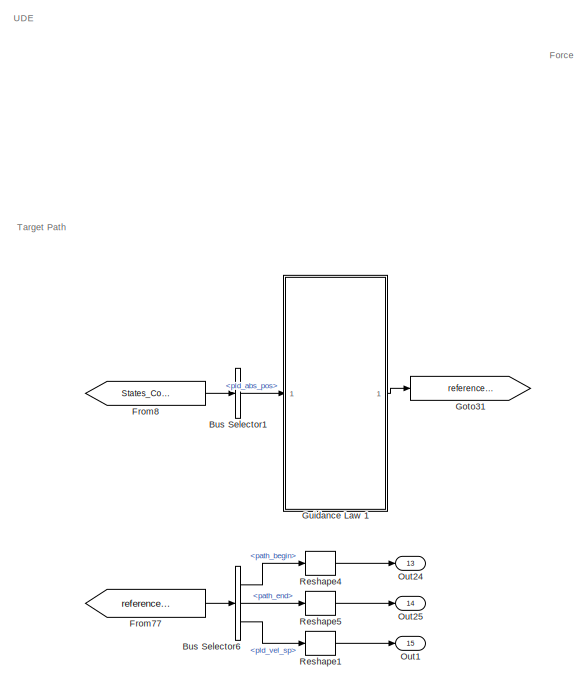
[diagram: root canvas - part 1/4, left side, full height]
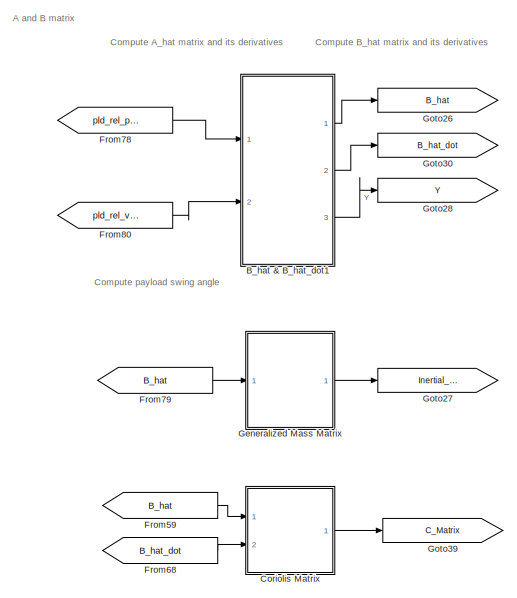
[diagram: root canvas - part 2/4, central region]
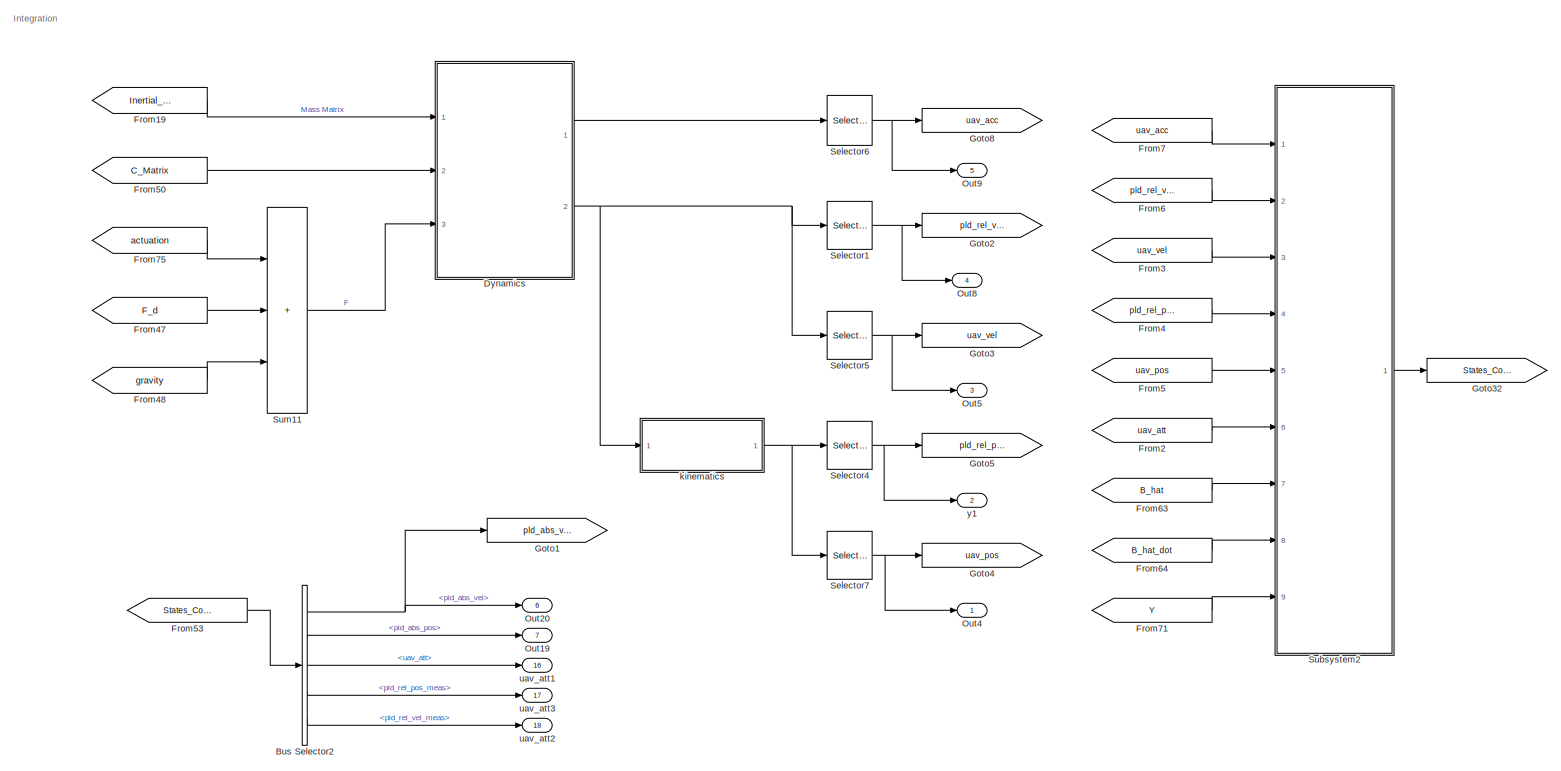
[diagram: root canvas - part 3/4, right side, full height]
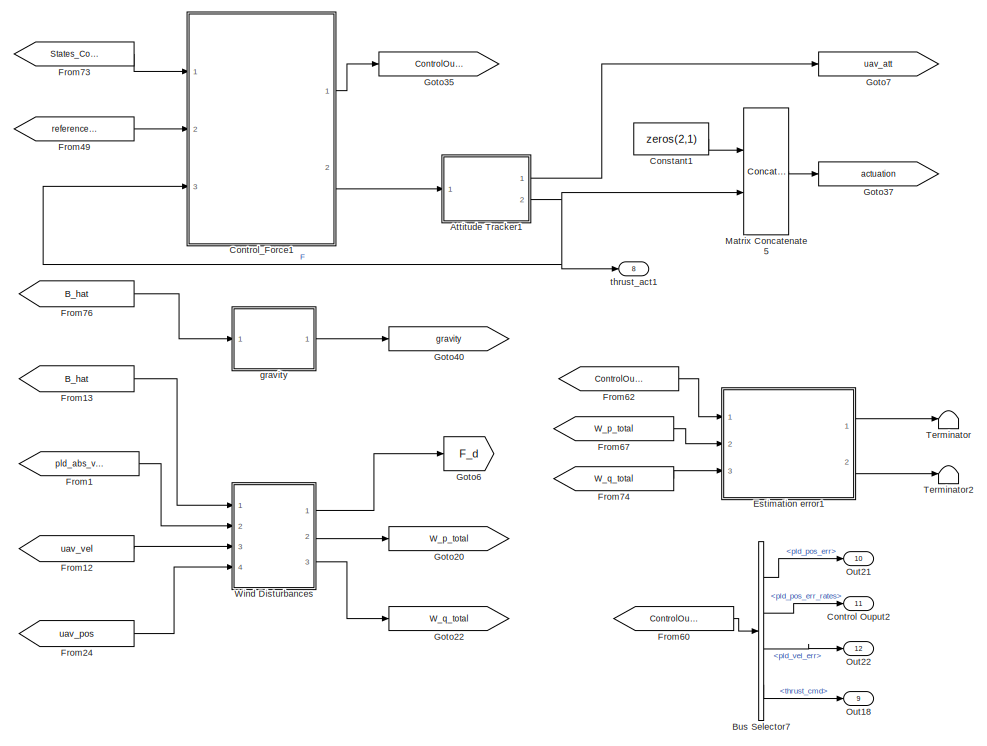
[diagram: root canvas - part 4/4, left side, full height]
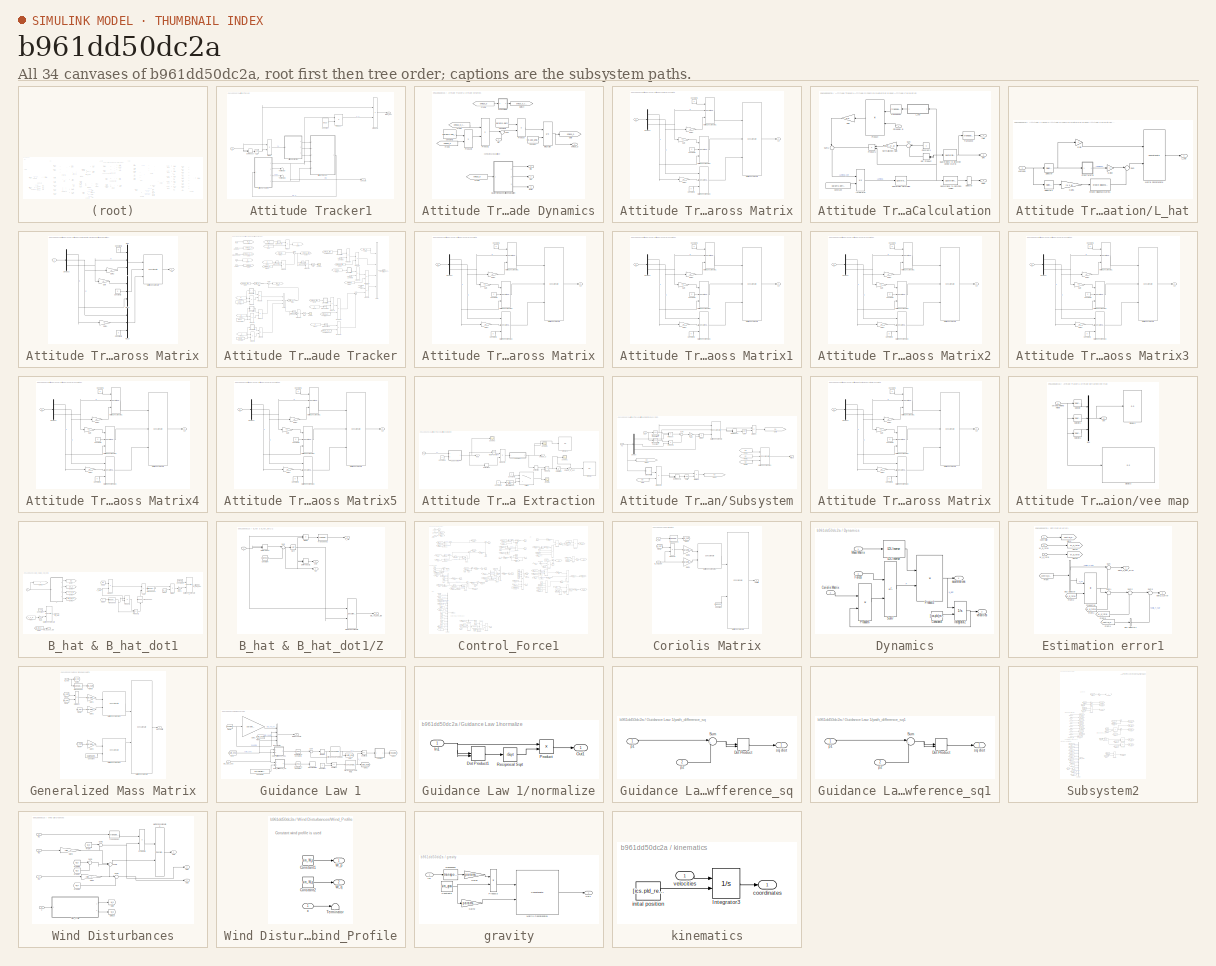
[diagram: thumbnail index - all 34 canvases of the model, root first then tree order]
MODEL slx_b961dd50dc2a
KIND model
CONFIG AbsTol = auto
CONFIG EnableMultiTasking = off
CONFIG FixedStep = 0.01
CONFIG InitFcn = Initialization;
CONFIG MaxStep = auto
CONFIG MinStep = auto
CONFIG RelTol = 1e-3
CONFIG SampleTimeConstraint = Unconstrained
CONFIG Solver = ode1
CONFIG SolverName = ode1
CONFIG StartTime = 0.0
CONFIG StopTime = 100
BLOCK [SubSystem] Attitude Tracker1
  Ports = [1, 2]
  RequestExecContextInheritance = off
BLOCK [SubSystem] Attitude Tracker1/Attitude Dynamics
  Ports = [1, 4]
  RequestExecContextInheritance = off
BLOCK [Constant] Attitude Tracker1/Attitude Dynamics/Constant
  Value = ics.uav_ang_vel
  VectorParams1D = off
BLOCK [Constant] Attitude Tracker1/Attitude Dynamics/Constant1
  Value = params.derived.inv_uav_inertia
  VectorParams1D = off
BLOCK [Constant] Attitude Tracker1/Attitude Dynamics/Constant2
  Value = params.uav_inertia
  VectorParams1D = off
BLOCK [SubSystem] Attitude Tracker1/Attitude Dynamics/Cross Matrix
  Ports = [1, 1]
  RequestExecContextInheritance = off
BLOCK [Inport] Attitude Tracker1/Attitude Dynamics/Cross Matrix/A
BLOCK [Outport] Attitude Tracker1/Attitude Dynamics/Cross Matrix/AX
  VectorParamsAs1DForOutWhenUnconnected = off
BLOCK [Constant] Attitude Tracker1/Attitude Dynamics/Cross Matrix/Constant1
  Value = 0
  VectorParams1D = off
BLOCK [Constant] Attitude Tracker1/Attitude Dynamics/Cross Matrix/Constant2
  Value = 0
  VectorParams1D = off
BLOCK [Constant] Attitude Tracker1/Attitude Dynamics/Cross Matrix/Constant3
  Value = 0
  VectorParams1D = off
BLOCK [Demux] Attitude Tracker1/Attitude Dynamics/Cross Matrix/Demux2
  Outputs = 3
  Ports = [1, 3]
BLOCK [Gain] Attitude Tracker1/Attitude Dynamics/Cross Matrix/Gain
  Gain = -1
BLOCK [Gain] Attitude Tracker1/Attitude Dynamics/Cross Matrix/Gain1
  Gain = -1
BLOCK [Gain] Attitude Tracker1/Attitude Dynamics/Cross Matrix/Gain2
  Gain = -1
BLOCK [Concatenate] Attitude Tracker1/Attitude Dynamics/Cross Matrix/Matrix Concatenate
  ConcatenateDimension = 2
  Mode = Multidimensional array
  NumInputs = 3
  Ports = [3, 1]
BLOCK [Concatenate] Attitude Tracker1/Attitude Dynamics/Cross Matrix/Matrix Concatenate1
  Mode = Multidimensional array
  NumInputs = 3
  Ports = [3, 1]
BLOCK [Concatenate] Attitude Tracker1/Attitude Dynamics/Cross Matrix/Matrix Concatenate2
  Mode = Multidimensional array
  NumInputs = 3
  Ports = [3, 1]
BLOCK [Concatenate] Attitude Tracker1/Attitude Dynamics/Cross Matrix/Matrix Concatenate3
  Mode = Multidimensional array
  NumInputs = 3
  Ports = [3, 1]
BLOCK [Outport] Attitude Tracker1/Attitude Dynamics/Euler
  Port = 3
  VectorParamsAs1DForOutWhenUnconnected = off
BLOCK [From] Attitude Tracker1/Attitude Dynamics/From1
  GotoTag = omega_b_cross
BLOCK [From] Attitude Tracker1/Attitude Dynamics/From2
  GotoTag = omega_b
BLOCK [From] Attitude Tracker1/Attitude Dynamics/From3
  GotoTag = omega_b
BLOCK [From] Attitude Tracker1/Attitude Dynamics/From4
  GotoTag = omega_b
BLOCK [Goto] Attitude Tracker1/Attitude Dynamics/Goto
  GotoTag = omega_b
BLOCK [Goto] Attitude Tracker1/Attitude Dynamics/Goto14
  GotoTag = omega_b_cross
BLOCK [Integrator] Attitude Tracker1/Attitude Dynamics/Integrator
  InitialConditionSource = external
  Ports = [2, 1]
BLOCK [Inport] Attitude Tracker1/Attitude Dynamics/MB
BLOCK [Product] Attitude Tracker1/Attitude Dynamics/Product
  Multiplication = Matrix(*)
  Ports = [2, 1]
BLOCK [Product] Attitude Tracker1/Attitude Dynamics/Product1
  Multiplication = Matrix(*)
  Ports = [2, 1]
BLOCK [Product] Attitude Tracker1/Attitude Dynamics/Product2
  Multiplication = Matrix(*)
  Ports = [2, 1]
BLOCK [SubSystem] Attitude Tracker1/Attitude Dynamics/Quaternion Based Attitude Calculation
  Ports = [1, 3]
  RequestExecContextInheritance = off
BLOCK [Outport] Attitude Tracker1/Attitude Dynamics/Quaternion Based Attitude Calculation/BRI
  Port = 2
  VectorParamsAs1DForOutWhenUnconnected = off
BLOCK [Constant] Attitude Tracker1/Attitude Dynamics/Quaternion Based Attitude Calculation/Constant
  Value = params.derived.uav_att_quat_0
BLOCK [Constant] Attitude Tracker1/Attitude Dynamics/Quaternion Based Attitude Calculation/Constant1
  NameLocation = top
BLOCK [DotProduct] Attitude Tracker1/Attitude Dynamics/Quaternion Based Attitude Calculation/Dot Product
  InputSameDT = off
  NameLocation = top
  OutDataTypeStr = Inherit: Inherit via internal rule
BLOCK [Outport] Attitude Tracker1/Attitude Dynamics/Quaternion Based Attitude Calculation/Euler
  Port = 3
  VectorParamsAs1DForOutWhenUnconnected = off
BLOCK [Gain] Attitude Tracker1/Attitude Dynamics/Quaternion Based Attitude Calculation/Gain
  Gain = 0.5
  NameLocation = top
BLOCK [Outport] Attitude Tracker1/Attitude Dynamics/Quaternion Based Attitude Calculation/IRB
  VectorParamsAs1DForOutWhenUnconnected = off
BLOCK [Integrator] Attitude Tracker1/Attitude Dynamics/Quaternion Based Attitude Calculation/Integrator
  InitialConditionSource = external
  Ports = [2, 1]
BLOCK [SubSystem] Attitude Tracker1/Attitude Dynamics/Quaternion Based Attitude Calculation/L_hat
  NameLocation = top
  Ports = [1, 1]
  RequestExecContextInheritance = off
BLOCK [Reference] Attitude Tracker1/Attitude Dynamics/Quaternion Based Attitude Calculation/L_hat/Create Diagonal Matrix1  REF=dspmtrx3/Create Diagonal
Matrix
  Ports = [1, 1]
  SourceBlock = dspmtrx3/Create Diagonal\nMatrix
  SourceProductBaseCode = DS
  SourceType = Create Diagonal Matrix
BLOCK [SubSystem] Attitude Tracker1/Attitude Dynamics/Quaternion Based Attitude Calculation/L_hat/Cross Matrix
  Ports = [1, 1]
  RequestExecContextInheritance = off
BLOCK [Inport] Attitude Tracker1/Attitude Dynamics/Quaternion Based Attitude Calculation/L_hat/Cross Matrix/A
BLOCK [Outport] Attitude Tracker1/Attitude Dynamics/Quaternion Based Attitude Calculation/L_hat/Cross Matrix/AX
  VectorParamsAs1DForOutWhenUnconnected = off
BLOCK [Constant] Attitude Tracker1/Attitude Dynamics/Quaternion Based Attitude Calculation/L_hat/Cross Matrix/Constant1
  Value = 0
BLOCK [Constant] Attitude Tracker1/Attitude Dynamics/Quaternion Based Attitude Calculation/L_hat/Cross Matrix/Constant2
  Value = 0
BLOCK [Constant] Attitude Tracker1/Attitude Dynamics/Quaternion Based Attitude Calculation/L_hat/Cross Matrix/Constant3
  Value = 0
BLOCK [Demux] Attitude Tracker1/Attitude Dynamics/Quaternion Based Attitude Calculation/L_hat/Cross Matrix/Demux2
  Outputs = 3
  Ports = [1, 3]
BLOCK [Gain] Attitude Tracker1/Attitude Dynamics/Quaternion Based Attitude Calculation/L_hat/Cross Matrix/Gain
  Gain = -1
BLOCK [Gain] Attitude Tracker1/Attitude Dynamics/Quaternion Based Attitude Calculation/L_hat/Cross Matrix/Gain1
  Gain = -1
BLOCK [Gain] Attitude Tracker1/Attitude Dynamics/Quaternion Based Attitude Calculation/L_hat/Cross Matrix/Gain2
  Gain = -1
BLOCK [Concatenate] Attitude Tracker1/Attitude Dynamics/Quaternion Based Attitude Calculation/L_hat/Cross Matrix/Matrix Concatenate
  ConcatenateDimension = 2
  Mode = Multidimensional array
  NumInputs = 3
  Ports = [3, 1]
BLOCK [Mux] Attitude Tracker1/Attitude Dynamics/Quaternion Based Attitude Calculation/L_hat/Cross Matrix/Mux
  DisplayOption = bar
  Inputs = 3
  Ports = [3, 1]
BLOCK [Mux] Attitude Tracker1/Attitude Dynamics/Quaternion Based Attitude Calculation/L_hat/Cross Matrix/Mux1
  DisplayOption = bar
  Inputs = 3
  Ports = [3, 1]
BLOCK [Mux] Attitude Tracker1/Attitude Dynamics/Quaternion Based Attitude Calculation/L_hat/Cross Matrix/Mux2
  DisplayOption = bar
  Inputs = 3
  Ports = [3, 1]
BLOCK [Gain] Attitude Tracker1/Attitude Dynamics/Quaternion Based Attitude Calculation/L_hat/Gain
  Gain = -1
BLOCK [Gain] Attitude Tracker1/Attitude Dynamics/Quaternion Based Attitude Calculation/L_hat/Gain1
  Gain = [1 1 1]
BLOCK [Gain] Attitude Tracker1/Attitude Dynamics/Quaternion Based Attitude Calculation/L_hat/Gain2
  Gain = -1
BLOCK [Outport] Attitude Tracker1/Attitude Dynamics/Quaternion Based Attitude Calculation/L_hat/L_hat
  VectorParamsAs1DForOutWhenUnconnected = off
BLOCK [Inport] Attitude Tracker1/Attitude Dynamics/Quaternion Based Attitude Calculation/L_hat/Lambda
BLOCK [Concatenate] Attitude Tracker1/Attitude Dynamics/Quaternion Based Attitude Calculation/L_hat/Matrix Concatenate
  ConcatenateDimension = 2
  Mode = Multidimensional array
  Ports = [2, 1]
BLOCK [Selector] Attitude Tracker1/Attitude Dynamics/Quaternion Based Attitude Calculation/L_hat/Selector
  IndexOptions = Index vector (dialog)
  Indices = [2 3 4]
  InputPortWidth = 4
  OutputSizes = 1
  Ports = [1, 1]
BLOCK [Selector] Attitude Tracker1/Attitude Dynamics/Quaternion Based Attitude Calculation/L_hat/Selector1
  IndexOptions = Index vector (dialog)
  Indices = [1]
  InputPortWidth = 4
  OutputSizes = 1
  Ports = [1, 1]
BLOCK [Sum] Attitude Tracker1/Attitude Dynamics/Quaternion Based Attitude Calculation/L_hat/Sum
  Inputs = |++
  Ports = [2, 1]
BLOCK [Gain] Attitude Tracker1/Attitude Dynamics/Quaternion Based Attitude Calculation/Normalization Gain
  Gain = sim_.K_q
  NameLocation = top
BLOCK [Inport] Attitude Tracker1/Attitude Dynamics/Quaternion Based Attitude Calculation/OmegaBI,B
  NameLocation = top
BLOCK [Product] Attitude Tracker1/Attitude Dynamics/Quaternion Based Attitude Calculation/Product
  Multiplication = Matrix(*)
  NameLocation = top
  Ports = [2, 1]
  RndMeth = Zero
BLOCK [Product] Attitude Tracker1/Attitude Dynamics/Quaternion Based Attitude Calculation/Product1
  NameLocation = top
  Ports = [2, 1]
  RndMeth = Zero
BLOCK [Reference] Attitude Tracker1/Attitude Dynamics/Quaternion Based Attitude Calculation/Quaternion Normalize  REF=sharedutil/Quaternion
Normalize
  Ports = [1, 1]
  SourceBlock = sharedutil/Quaternion\nNormalize
  SourceProductBaseCode = AE,PW,MT,VE,VP
  SourceType = Quaternion Normalize
BLOCK [Reference] Attitude Tracker1/Attitude Dynamics/Quaternion Based Attitude Calculation/Quaternions to Direction Cosine Matrix  REF=sharedtransform/Quaternions to 
Direction Cosine Matrix
  Ports = [1, 1]
  SourceBlock = sharedtransform/Quaternions to \nDirection Cosine Matrix
  SourceProductBaseCode = AE,PW,MT,VE,VP
  SourceType = Quaternion2DCM
BLOCK [Reference] Attitude Tracker1/Attitude Dynamics/Quaternion Based Attitude Calculation/Quaternions to Rotation Angles  REF=sharedtransform/Quaternions to Rotation Angles
  AttributesFormatString = Rotation Order: %<rotationOrder>
  Ports = [1, 1]
  SourceBlock = sharedtransform/Quaternions to Rotation Angles
  SourceProductBaseCode = AE,PW,MT,VE,VP
  SourceType = Quat2Ang
BLOCK [Selector] Attitude Tracker1/Attitude Dynamics/Quaternion Based Attitude Calculation/Selector
  IndexOptions = Index vector (dialog)
  Indices = [3 2 1]
  InputPortWidth = 3
  NameLocation = top
  OutputSizes = 1
  Ports = [1, 1]
BLOCK [Sum] Attitude Tracker1/Attitude Dynamics/Quaternion Based Attitude Calculation/Sum
  InputSameDT = on
  Inputs = |+-
  NameLocation = top
  OutDataTypeStr = Inherit: Same as first input
  Ports = [2, 1]
  SaturateOnIntegerOverflow = on
BLOCK [Sum] Attitude Tracker1/Attitude Dynamics/Quaternion Based Attitude Calculation/Sum1
  Inputs = |++
  NameLocation = left
  Ports = [2, 1]
BLOCK [Math] Attitude Tracker1/Attitude Dynamics/Quaternion Based Attitude Calculation/Transpose
  Operator = transpose
  Ports = [1, 1]
  SignedPower = on
BLOCK [Math] Attitude Tracker1/Attitude Dynamics/Quaternion Based Attitude Calculation/Transpose1
  NameLocation = top
  Operator = transpose
  Ports = [1, 1]
  SignedPower = on
BLOCK [Outport] Attitude Tracker1/Attitude Dynamics/RBI
  Port = 2
  VectorParamsAs1DForOutWhenUnconnected = off
BLOCK [Outport] Attitude Tracker1/Attitude Dynamics/RIB
  VectorParamsAs1DForOutWhenUnconnected = off
BLOCK [Sum] Attitude Tracker1/Attitude Dynamics/Sum
  Inputs = |-+
  Ports = [2, 1]
BLOCK [Outport] Attitude Tracker1/Attitude Dynamics/omega_b
  Port = 4
  VectorParamsAs1DForOutWhenUnconnected = off
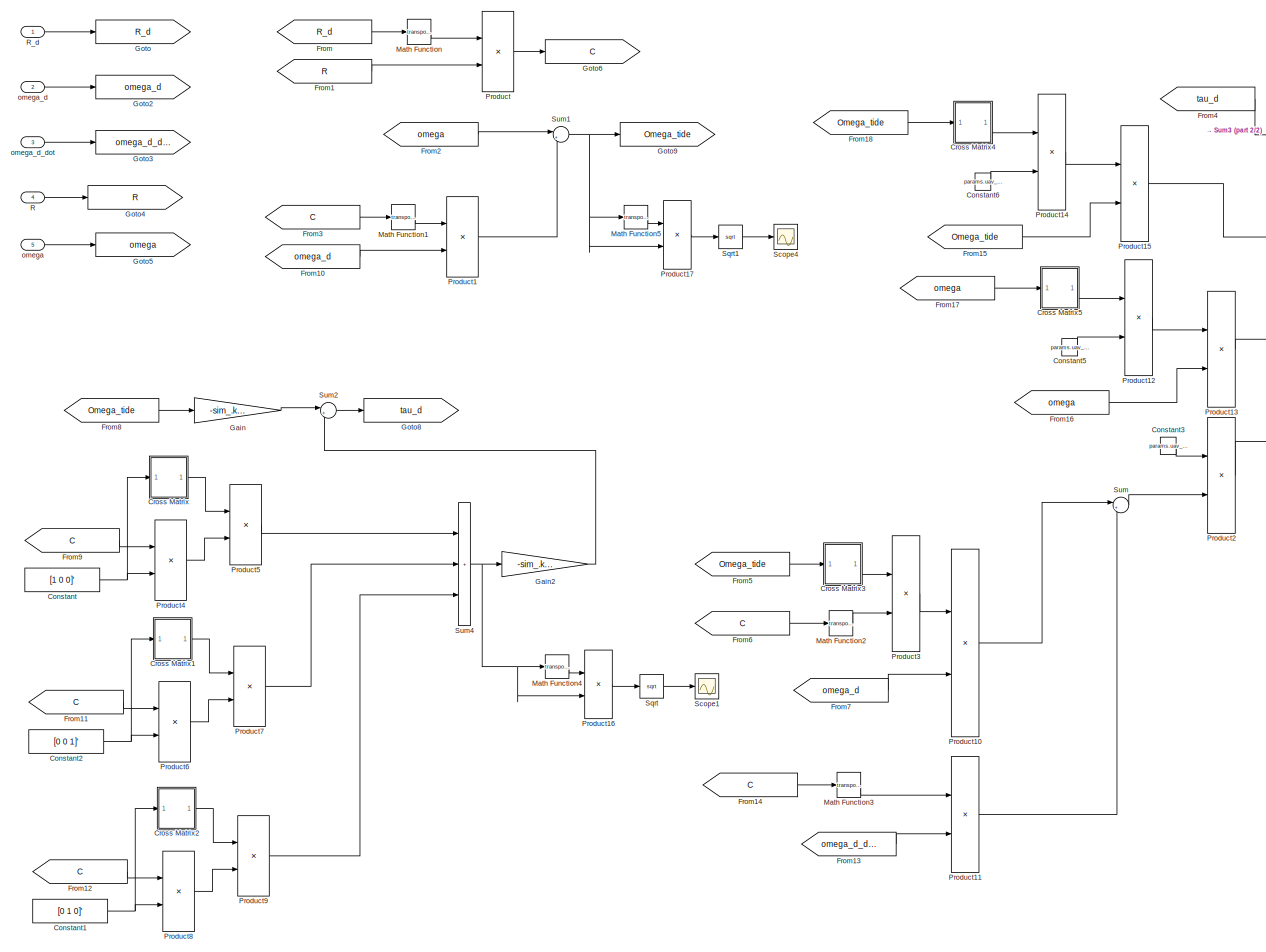
[diagram: Attitude Tracker1/Attitude Tracker - part 1/2, most of the canvas]
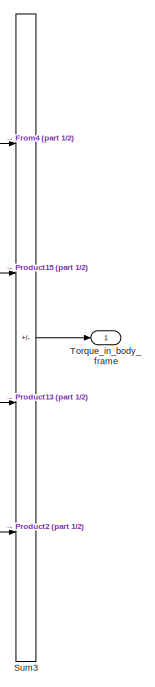
[diagram: Attitude Tracker1/Attitude Tracker - part 2/2, top right region]
BLOCK [SubSystem] Attitude Tracker1/Attitude Tracker
  Ports = [5, 1]
  RequestExecContextInheritance = off
BLOCK [Constant] Attitude Tracker1/Attitude Tracker/Constant
  Value = [1 0 0]'
BLOCK [Constant] Attitude Tracker1/Attitude Tracker/Constant1
  Value = [0 1 0]'
BLOCK [Constant] Attitude Tracker1/Attitude Tracker/Constant2
  Value = [0 0 1]'
BLOCK [Constant] Attitude Tracker1/Attitude Tracker/Constant3
  Value = params.uav_inertia
  VectorParams1D = off
BLOCK [Constant] Attitude Tracker1/Attitude Tracker/Constant5
  Value = params.uav_inertia
  VectorParams1D = off
BLOCK [Constant] Attitude Tracker1/Attitude Tracker/Constant6
  Value = params.uav_inertia
  VectorParams1D = off
BLOCK [SubSystem] Attitude Tracker1/Attitude Tracker/Cross Matrix
  Ports = [1, 1]
  RequestExecContextInheritance = off
BLOCK [Inport] Attitude Tracker1/Attitude Tracker/Cross Matrix/A
BLOCK [Outport] Attitude Tracker1/Attitude Tracker/Cross Matrix/AX
  VectorParamsAs1DForOutWhenUnconnected = off
BLOCK [Constant] Attitude Tracker1/Attitude Tracker/Cross Matrix/Constant1
  Value = 0
  VectorParams1D = off
BLOCK [Constant] Attitude Tracker1/Attitude Tracker/Cross Matrix/Constant2
  Value = 0
  VectorParams1D = off
BLOCK [Constant] Attitude Tracker1/Attitude Tracker/Cross Matrix/Constant3
  Value = 0
  VectorParams1D = off
BLOCK [Demux] Attitude Tracker1/Attitude Tracker/Cross Matrix/Demux2
  Outputs = 3
  Ports = [1, 3]
BLOCK [Gain] Attitude Tracker1/Attitude Tracker/Cross Matrix/Gain
  Gain = -1
BLOCK [Gain] Attitude Tracker1/Attitude Tracker/Cross Matrix/Gain1
  Gain = -1
BLOCK [Gain] Attitude Tracker1/Attitude Tracker/Cross Matrix/Gain2
  Gain = -1
BLOCK [Concatenate] Attitude Tracker1/Attitude Tracker/Cross Matrix/Matrix Concatenate
  ConcatenateDimension = 2
  Mode = Multidimensional array
  NumInputs = 3
  Ports = [3, 1]
BLOCK [Concatenate] Attitude Tracker1/Attitude Tracker/Cross Matrix/Matrix Concatenate1
  Mode = Multidimensional array
  NumInputs = 3
  Ports = [3, 1]
BLOCK [Concatenate] Attitude Tracker1/Attitude Tracker/Cross Matrix/Matrix Concatenate2
  Mode = Multidimensional array
  NumInputs = 3
  Ports = [3, 1]
BLOCK [Concatenate] Attitude Tracker1/Attitude Tracker/Cross Matrix/Matrix Concatenate3
  Mode = Multidimensional array
  NumInputs = 3
  Ports = [3, 1]
BLOCK [SubSystem] Attitude Tracker1/Attitude Tracker/Cross Matrix1
  Ports = [1, 1]
  RequestExecContextInheritance = off
BLOCK [Inport] Attitude Tracker1/Attitude Tracker/Cross Matrix1/A
BLOCK [Outport] Attitude Tracker1/Attitude Tracker/Cross Matrix1/AX
  VectorParamsAs1DForOutWhenUnconnected = off
BLOCK [Constant] Attitude Tracker1/Attitude Tracker/Cross Matrix1/Constant1
  Value = 0
  VectorParams1D = off
BLOCK [Constant] Attitude Tracker1/Attitude Tracker/Cross Matrix1/Constant2
  Value = 0
  VectorParams1D = off
BLOCK [Constant] Attitude Tracker1/Attitude Tracker/Cross Matrix1/Constant3
  Value = 0
  VectorParams1D = off
BLOCK [Demux] Attitude Tracker1/Attitude Tracker/Cross Matrix1/Demux2
  Outputs = 3
  Ports = [1, 3]
BLOCK [Gain] Attitude Tracker1/Attitude Tracker/Cross Matrix1/Gain
  Gain = -1
BLOCK [Gain] Attitude Tracker1/Attitude Tracker/Cross Matrix1/Gain1
  Gain = -1
BLOCK [Gain] Attitude Tracker1/Attitude Tracker/Cross Matrix1/Gain2
  Gain = -1
BLOCK [Concatenate] Attitude Tracker1/Attitude Tracker/Cross Matrix1/Matrix Concatenate
  ConcatenateDimension = 2
  Mode = Multidimensional array
  NumInputs = 3
  Ports = [3, 1]
BLOCK [Concatenate] Attitude Tracker1/Attitude Tracker/Cross Matrix1/Matrix Concatenate1
  Mode = Multidimensional array
  NumInputs = 3
  Ports = [3, 1]
BLOCK [Concatenate] Attitude Tracker1/Attitude Tracker/Cross Matrix1/Matrix Concatenate2
  Mode = Multidimensional array
  NumInputs = 3
  Ports = [3, 1]
BLOCK [Concatenate] Attitude Tracker1/Attitude Tracker/Cross Matrix1/Matrix Concatenate3
  Mode = Multidimensional array
  NumInputs = 3
  Ports = [3, 1]
BLOCK [SubSystem] Attitude Tracker1/Attitude Tracker/Cross Matrix2
  Ports = [1, 1]
  RequestExecContextInheritance = off
BLOCK [Inport] Attitude Tracker1/Attitude Tracker/Cross Matrix2/A
BLOCK [Outport] Attitude Tracker1/Attitude Tracker/Cross Matrix2/AX
  VectorParamsAs1DForOutWhenUnconnected = off
BLOCK [Constant] Attitude Tracker1/Attitude Tracker/Cross Matrix2/Constant1
  Value = 0
  VectorParams1D = off
BLOCK [Constant] Attitude Tracker1/Attitude Tracker/Cross Matrix2/Constant2
  Value = 0
  VectorParams1D = off
BLOCK [Constant] Attitude Tracker1/Attitude Tracker/Cross Matrix2/Constant3
  Value = 0
  VectorParams1D = off
BLOCK [Demux] Attitude Tracker1/Attitude Tracker/Cross Matrix2/Demux2
  Outputs = 3
  Ports = [1, 3]
BLOCK [Gain] Attitude Tracker1/Attitude Tracker/Cross Matrix2/Gain
  Gain = -1
BLOCK [Gain] Attitude Tracker1/Attitude Tracker/Cross Matrix2/Gain1
  Gain = -1
BLOCK [Gain] Attitude Tracker1/Attitude Tracker/Cross Matrix2/Gain2
  Gain = -1
BLOCK [Concatenate] Attitude Tracker1/Attitude Tracker/Cross Matrix2/Matrix Concatenate
  ConcatenateDimension = 2
  Mode = Multidimensional array
  NumInputs = 3
  Ports = [3, 1]
BLOCK [Concatenate] Attitude Tracker1/Attitude Tracker/Cross Matrix2/Matrix Concatenate1
  Mode = Multidimensional array
  NumInputs = 3
  Ports = [3, 1]
BLOCK [Concatenate] Attitude Tracker1/Attitude Tracker/Cross Matrix2/Matrix Concatenate2
  Mode = Multidimensional array
  NumInputs = 3
  Ports = [3, 1]
BLOCK [Concatenate] Attitude Tracker1/Attitude Tracker/Cross Matrix2/Matrix Concatenate3
  Mode = Multidimensional array
  NumInputs = 3
  Ports = [3, 1]
BLOCK [SubSystem] Attitude Tracker1/Attitude Tracker/Cross Matrix3
  Ports = [1, 1]
  RequestExecContextInheritance = off
BLOCK [Inport] Attitude Tracker1/Attitude Tracker/Cross Matrix3/A
BLOCK [Outport] Attitude Tracker1/Attitude Tracker/Cross Matrix3/AX
  VectorParamsAs1DForOutWhenUnconnected = off
BLOCK [Constant] Attitude Tracker1/Attitude Tracker/Cross Matrix3/Constant1
  Value = 0
  VectorParams1D = off
BLOCK [Constant] Attitude Tracker1/Attitude Tracker/Cross Matrix3/Constant2
  Value = 0
  VectorParams1D = off
BLOCK [Constant] Attitude Tracker1/Attitude Tracker/Cross Matrix3/Constant3
  Value = 0
  VectorParams1D = off
BLOCK [Demux] Attitude Tracker1/Attitude Tracker/Cross Matrix3/Demux2
  Outputs = 3
  Ports = [1, 3]
BLOCK [Gain] Attitude Tracker1/Attitude Tracker/Cross Matrix3/Gain
  Gain = -1
BLOCK [Gain] Attitude Tracker1/Attitude Tracker/Cross Matrix3/Gain1
  Gain = -1
BLOCK [Gain] Attitude Tracker1/Attitude Tracker/Cross Matrix3/Gain2
  Gain = -1
BLOCK [Concatenate] Attitude Tracker1/Attitude Tracker/Cross Matrix3/Matrix Concatenate
  ConcatenateDimension = 2
  Mode = Multidimensional array
  NumInputs = 3
  Ports = [3, 1]
BLOCK [Concatenate] Attitude Tracker1/Attitude Tracker/Cross Matrix3/Matrix Concatenate1
  Mode = Multidimensional array
  NumInputs = 3
  Ports = [3, 1]
BLOCK [Concatenate] Attitude Tracker1/Attitude Tracker/Cross Matrix3/Matrix Concatenate2
  Mode = Multidimensional array
  NumInputs = 3
  Ports = [3, 1]
BLOCK [Concatenate] Attitude Tracker1/Attitude Tracker/Cross Matrix3/Matrix Concatenate3
  Mode = Multidimensional array
  NumInputs = 3
  Ports = [3, 1]
BLOCK [SubSystem] Attitude Tracker1/Attitude Tracker/Cross Matrix4
  NameLocation = top
  Ports = [1, 1]
  RequestExecContextInheritance = off
BLOCK [Inport] Attitude Tracker1/Attitude Tracker/Cross Matrix4/A
BLOCK [Outport] Attitude Tracker1/Attitude Tracker/Cross Matrix4/AX
  VectorParamsAs1DForOutWhenUnconnected = off
BLOCK [Constant] Attitude Tracker1/Attitude Tracker/Cross Matrix4/Constant1
  Value = 0
  VectorParams1D = off
BLOCK [Constant] Attitude Tracker1/Attitude Tracker/Cross Matrix4/Constant2
  Value = 0
  VectorParams1D = off
BLOCK [Constant] Attitude Tracker1/Attitude Tracker/Cross Matrix4/Constant3
  Value = 0
  VectorParams1D = off
BLOCK [Demux] Attitude Tracker1/Attitude Tracker/Cross Matrix4/Demux2
  Outputs = 3
  Ports = [1, 3]
BLOCK [Gain] Attitude Tracker1/Attitude Tracker/Cross Matrix4/Gain
  Gain = -1
BLOCK [Gain] Attitude Tracker1/Attitude Tracker/Cross Matrix4/Gain1
  Gain = -1
BLOCK [Gain] Attitude Tracker1/Attitude Tracker/Cross Matrix4/Gain2
  Gain = -1
BLOCK [Concatenate] Attitude Tracker1/Attitude Tracker/Cross Matrix4/Matrix Concatenate
  ConcatenateDimension = 2
  Mode = Multidimensional array
  NumInputs = 3
  Ports = [3, 1]
BLOCK [Concatenate] Attitude Tracker1/Attitude Tracker/Cross Matrix4/Matrix Concatenate1
  Mode = Multidimensional array
  NumInputs = 3
  Ports = [3, 1]
BLOCK [Concatenate] Attitude Tracker1/Attitude Tracker/Cross Matrix4/Matrix Concatenate2
  Mode = Multidimensional array
  NumInputs = 3
  Ports = [3, 1]
BLOCK [Concatenate] Attitude Tracker1/Attitude Tracker/Cross Matrix4/Matrix Concatenate3
  Mode = Multidimensional array
  NumInputs = 3
  Ports = [3, 1]
BLOCK [SubSystem] Attitude Tracker1/Attitude Tracker/Cross Matrix5
  NameLocation = top
  Ports = [1, 1]
  RequestExecContextInheritance = off
BLOCK [Inport] Attitude Tracker1/Attitude Tracker/Cross Matrix5/A
BLOCK [Outport] Attitude Tracker1/Attitude Tracker/Cross Matrix5/AX
  VectorParamsAs1DForOutWhenUnconnected = off
BLOCK [Constant] Attitude Tracker1/Attitude Tracker/Cross Matrix5/Constant1
  Value = 0
  VectorParams1D = off
BLOCK [Constant] Attitude Tracker1/Attitude Tracker/Cross Matrix5/Constant2
  Value = 0
  VectorParams1D = off
BLOCK [Constant] Attitude Tracker1/Attitude Tracker/Cross Matrix5/Constant3
  Value = 0
  VectorParams1D = off
BLOCK [Demux] Attitude Tracker1/Attitude Tracker/Cross Matrix5/Demux2
  Outputs = 3
  Ports = [1, 3]
BLOCK [Gain] Attitude Tracker1/Attitude Tracker/Cross Matrix5/Gain
  Gain = -1
BLOCK [Gain] Attitude Tracker1/Attitude Tracker/Cross Matrix5/Gain1
  Gain = -1
BLOCK [Gain] Attitude Tracker1/Attitude Tracker/Cross Matrix5/Gain2
  Gain = -1
BLOCK [Concatenate] Attitude Tracker1/Attitude Tracker/Cross Matrix5/Matrix Concatenate
  ConcatenateDimension = 2
  Mode = Multidimensional array
  NumInputs = 3
  Ports = [3, 1]
BLOCK [Concatenate] Attitude Tracker1/Attitude Tracker/Cross Matrix5/Matrix Concatenate1
  Mode = Multidimensional array
  NumInputs = 3
  Ports = [3, 1]
BLOCK [Concatenate] Attitude Tracker1/Attitude Tracker/Cross Matrix5/Matrix Concatenate2
  Mode = Multidimensional array
  NumInputs = 3
  Ports = [3, 1]
BLOCK [Concatenate] Attitude Tracker1/Attitude Tracker/Cross Matrix5/Matrix Concatenate3
  Mode = Multidimensional array
  NumInputs = 3
  Ports = [3, 1]
BLOCK [From] Attitude Tracker1/Attitude Tracker/From
  GotoTag = R_d
BLOCK [From] Attitude Tracker1/Attitude Tracker/From1
  GotoTag = R
BLOCK [From] Attitude Tracker1/Attitude Tracker/From10
  GotoTag = omega_d
BLOCK [From] Attitude Tracker1/Attitude Tracker/From11
  GotoTag = C
BLOCK [From] Attitude Tracker1/Attitude Tracker/From12
  GotoTag = C
BLOCK [From] Attitude Tracker1/Attitude Tracker/From13
  GotoTag = omega_d_dot
BLOCK [From] Attitude Tracker1/Attitude Tracker/From14
  GotoTag = C
BLOCK [From] Attitude Tracker1/Attitude Tracker/From15
  GotoTag = Omega_tide
BLOCK [From] Attitude Tracker1/Attitude Tracker/From16
  GotoTag = omega
BLOCK [From] Attitude Tracker1/Attitude Tracker/From17
  GotoTag = omega
BLOCK [From] Attitude Tracker1/Attitude Tracker/From18
  GotoTag = Omega_tide
BLOCK [From] Attitude Tracker1/Attitude Tracker/From2
  GotoTag = omega
BLOCK [From] Attitude Tracker1/Attitude Tracker/From3
  GotoTag = C
BLOCK [From] Attitude Tracker1/Attitude Tracker/From4
  GotoTag = tau_d
BLOCK [From] Attitude Tracker1/Attitude Tracker/From5
  GotoTag = Omega_tide
BLOCK [From] Attitude Tracker1/Attitude Tracker/From6
  GotoTag = C
BLOCK [From] Attitude Tracker1/Attitude Tracker/From7
  GotoTag = omega_d
BLOCK [From] Attitude Tracker1/Attitude Tracker/From8
  GotoTag = Omega_tide
BLOCK [From] Attitude Tracker1/Attitude Tracker/From9
  GotoTag = C
BLOCK [Gain] Attitude Tracker1/Attitude Tracker/Gain
  Gain = -sim_.k_ang_vel
  Multiplication = Matrix(K*u)
BLOCK [Gain] Attitude Tracker1/Attitude Tracker/Gain2
  Gain = -sim_.k_att
  Multiplication = Matrix(K*u)
BLOCK [Goto] Attitude Tracker1/Attitude Tracker/Goto
  GotoTag = R_d
BLOCK [Goto] Attitude Tracker1/Attitude Tracker/Goto2
  GotoTag = omega_d
BLOCK [Goto] Attitude Tracker1/Attitude Tracker/Goto3
  GotoTag = omega_d_dot
BLOCK [Goto] Attitude Tracker1/Attitude Tracker/Goto4
  GotoTag = R
BLOCK [Goto] Attitude Tracker1/Attitude Tracker/Goto5
  GotoTag = omega
BLOCK [Goto] Attitude Tracker1/Attitude Tracker/Goto6
  GotoTag = C
BLOCK [Goto] Attitude Tracker1/Attitude Tracker/Goto8
  GotoTag = tau_d
BLOCK [Goto] Attitude Tracker1/Attitude Tracker/Goto9
  GotoTag = Omega_tide
BLOCK [Math] Attitude Tracker1/Attitude Tracker/Math Function
  Operator = transpose
  Ports = [1, 1]
  SignedPower = on
BLOCK [Math] Attitude Tracker1/Attitude Tracker/Math Function1
  Operator = transpose
  Ports = [1, 1]
  SignedPower = on
BLOCK [Math] Attitude Tracker1/Attitude Tracker/Math Function2
  Operator = transpose
  Ports = [1, 1]
  SignedPower = on
BLOCK [Math] Attitude Tracker1/Attitude Tracker/Math Function3
  Operator = transpose
  Ports = [1, 1]
  SignedPower = on
BLOCK [Math] Attitude Tracker1/Attitude Tracker/Math Function4
  Operator = transpose
  Ports = [1, 1]
  SignedPower = on
BLOCK [Math] Attitude Tracker1/Attitude Tracker/Math Function5
  Operator = transpose
  Ports = [1, 1]
  SignedPower = on
BLOCK [Product] Attitude Tracker1/Attitude Tracker/Product
  Multiplication = Matrix(*)
  Ports = [2, 1]
BLOCK [Product] Attitude Tracker1/Attitude Tracker/Product1
  Multiplication = Matrix(*)
  Ports = [2, 1]
BLOCK [Product] Attitude Tracker1/Attitude Tracker/Product10
  Multiplication = Matrix(*)
  Ports = [2, 1]
BLOCK [Product] Attitude Tracker1/Attitude Tracker/Product11
  Multiplication = Matrix(*)
  Ports = [2, 1]
BLOCK [Product] Attitude Tracker1/Attitude Tracker/Product12
  Multiplication = Matrix(*)
  Ports = [2, 1]
BLOCK [Product] Attitude Tracker1/Attitude Tracker/Product13
  Multiplication = Matrix(*)
  Ports = [2, 1]
BLOCK [Product] Attitude Tracker1/Attitude Tracker/Product14
  Multiplication = Matrix(*)
  Ports = [2, 1]
BLOCK [Product] Attitude Tracker1/Attitude Tracker/Product15
  Multiplication = Matrix(*)
  Ports = [2, 1]
BLOCK [Product] Attitude Tracker1/Attitude Tracker/Product16
  Multiplication = Matrix(*)
  Ports = [2, 1]
BLOCK [Product] Attitude Tracker1/Attitude Tracker/Product17
  Multiplication = Matrix(*)
  Ports = [2, 1]
BLOCK [Product] Attitude Tracker1/Attitude Tracker/Product2
  Multiplication = Matrix(*)
  Ports = [2, 1]
BLOCK [Product] Attitude Tracker1/Attitude Tracker/Product3
  Multiplication = Matrix(*)
  Ports = [2, 1]
BLOCK [Product] Attitude Tracker1/Attitude Tracker/Product4
  Multiplication = Matrix(*)
  Ports = [2, 1]
BLOCK [Product] Attitude Tracker1/Attitude Tracker/Product5
  Multiplication = Matrix(*)
  Ports = [2, 1]
BLOCK [Product] Attitude Tracker1/Attitude Tracker/Product6
  Multiplication = Matrix(*)
  Ports = [2, 1]
BLOCK [Product] Attitude Tracker1/Attitude Tracker/Product7
  Multiplication = Matrix(*)
  Ports = [2, 1]
BLOCK [Product] Attitude Tracker1/Attitude Tracker/Product8
  Multiplication = Matrix(*)
  Ports = [2, 1]
BLOCK [Product] Attitude Tracker1/Attitude Tracker/Product9
  Multiplication = Matrix(*)
  Ports = [2, 1]
BLOCK [Inport] Attitude Tracker1/Attitude Tracker/R
  Port = 4
BLOCK [Inport] Attitude Tracker1/Attitude Tracker/R_d
BLOCK [Scope] Attitude Tracker1/Attitude Tracker/Scope1
  Floating = off
  NumInputPorts = 1
  Ports = [1]
  ScopeSpecificationString = Simulink.scopes.TimeScopeBlockCfg('CurrentConfiguration', extmgr.ConfigurationSet(extmgr.Configuration('Core','General UI',true),extmgr.Configuration('Core','Source UI',true),extmgr.Configuration('Sources','WiredSimulink',true,'DataLoggingVariableName','ScopeData10'),extmgr.Configuration('Visuals','Time Domain',true,'SerializedDisplays',{struct('MinYLimReal','-0.14827','MaxYLimReal','1.33442','YLa...<+1393ch>
BLOCK [Scope] Attitude Tracker1/Attitude Tracker/Scope4
  Floating = off
  NumInputPorts = 1
  Ports = [1]
  ScopeSpecificationString = Simulink.scopes.TimeScopeBlockCfg('CurrentConfiguration', extmgr.ConfigurationSet(extmgr.Configuration('Core','General UI',true),extmgr.Configuration('Core','Source UI',true),extmgr.Configuration('Sources','WiredSimulink',true,'DataLoggingVariableName','ScopeData9'),extmgr.Configuration('Visuals','Time Domain',true,'SerializedDisplays',{struct('MinYLimReal','-1.77018','MaxYLimReal','15.93169','YLa...<+1441ch>
BLOCK [Sqrt] Attitude Tracker1/Attitude Tracker/Sqrt
BLOCK [Sqrt] Attitude Tracker1/Attitude Tracker/Sqrt1
BLOCK [Sum] Attitude Tracker1/Attitude Tracker/Sum
  Inputs = |+-
  Ports = [2, 1]
BLOCK [Sum] Attitude Tracker1/Attitude Tracker/Sum1
  Inputs = |+-
  Ports = [2, 1]
BLOCK [Sum] Attitude Tracker1/Attitude Tracker/Sum2
  Inputs = |++
  Ports = [2, 1]
BLOCK [Sum] Attitude Tracker1/Attitude Tracker/Sum3
  IconShape = rectangular
  Inputs = +-+-
  Ports = [4, 1]
BLOCK [Sum] Attitude Tracker1/Attitude Tracker/Sum4
  IconShape = rectangular
  Inputs = +++
  Ports = [3, 1]
BLOCK [Outport] Attitude Tracker1/Attitude Tracker/Torque_in_body_frame
  VectorParamsAs1DForOutWhenUnconnected = off
BLOCK [Inport] Attitude Tracker1/Attitude Tracker/omega
  Port = 5
BLOCK [Inport] Attitude Tracker1/Attitude Tracker/omega_d
  Port = 2
BLOCK [Inport] Attitude Tracker1/Attitude Tracker/omega_d_dot
  Port = 3
BLOCK [SubSystem] Attitude Tracker1/Atttitude Extraction
  Ports = [1, 3]
  RequestExecContextInheritance = off
BLOCK [Constant] Attitude Tracker1/Atttitude Extraction/Constant1
  Value = 0
BLOCK [Constant] Attitude Tracker1/Atttitude Extraction/Constant2
BLOCK [Constant] Attitude Tracker1/Atttitude Extraction/Constant3
BLOCK [Derivative] Attitude Tracker1/Atttitude Extraction/Derivative
BLOCK [Derivative] Attitude Tracker1/Atttitude Extraction/Derivative1
BLOCK [Display] Attitude Tracker1/Atttitude Extraction/Display
  Decimation = 1
  Ports = [1]
BLOCK [Display] Attitude Tracker1/Atttitude Extraction/Display1
  Decimation = 1
  Ports = [1]
BLOCK [Math] Attitude Tracker1/Atttitude Extraction/Math Function4
  Operator = transpose
  Ports = [1, 1]
  SignedPower = on
BLOCK [Product] Attitude Tracker1/Atttitude Extraction/Product1
  Ports = [2, 1]
BLOCK [Product] Attitude Tracker1/Atttitude Extraction/Product4
  Multiplication = Matrix(*)
  Ports = [2, 1]
BLOCK [Outport] Attitude Tracker1/Atttitude Extraction/R_d
  VectorParamsAs1DForOutWhenUnconnected = off
BLOCK [Saturate] Attitude Tracker1/Atttitude Extraction/Saturation
  LowerLimit = -10
  UpperLimit = 10
BLOCK [Scope] Attitude Tracker1/Atttitude Extraction/Scope
  Floating = off
  NumInputPorts = 1
  Ports = [1]
  ScopeSpecificationString = Simulink.scopes.TimeScopeBlockCfg('CurrentConfiguration', extmgr.ConfigurationSet(extmgr.Configuration('Core','General UI',true),extmgr.Configuration('Core','Source UI',true),extmgr.Configuration('Sources','WiredSimulink',true,'DataLoggingVariableName','ScopeData3'),extmgr.Configuration('Visuals','Time Domain',true,'SerializedDisplays',{struct('MinYLimReal','0.99987','MaxYLimReal','1.00016','YLabe...<+1409ch>
BLOCK [Scope] Attitude Tracker1/Atttitude Extraction/Scope1
  Floating = off
  NumInputPorts = 1
  Ports = [1]
  ScopeSpecificationString = Simulink.scopes.TimeScopeBlockCfg('CurrentConfiguration', extmgr.ConfigurationSet(extmgr.Configuration('Core','General UI',true),extmgr.Configuration('Core','Source UI',true),extmgr.Configuration('Sources','WiredSimulink',true,'DataLoggingVariableName','ScopeData1'),extmgr.Configuration('Visuals','Time Domain',true,'SerializedDisplays',{struct('MinYLimReal','-989.1974','MaxYLimReal','1431.98918','...<+1459ch>
BLOCK [Scope] Attitude Tracker1/Atttitude Extraction/Scope2
  Floating = off
  NumInputPorts = 1
  Ports = [1]
  ScopeSpecificationString = Simulink.scopes.TimeScopeBlockCfg('CurrentConfiguration', extmgr.ConfigurationSet(extmgr.Configuration('Core','General UI',true),extmgr.Configuration('Core','Source UI',true),extmgr.Configuration('Sources','WiredSimulink',true,'DataLoggingVariableName','ScopeData2'),extmgr.Configuration('Visuals','Time Domain',true,'SerializedDisplays',{struct('MinYLimReal','-1.34126','MaxYLimReal','1.3459','YLabe...<+1461ch>
BLOCK [Scope] Attitude Tracker1/Atttitude Extraction/Scope3
  Floating = off
  NumInputPorts = 1
  Ports = [1]
  ScopeSpecificationString = Simulink.scopes.TimeScopeBlockCfg('CurrentConfiguration', extmgr.ConfigurationSet(extmgr.Configuration('Core','General UI',true),extmgr.Configuration('Core','Source UI',true),extmgr.Configuration('Sources','WiredSimulink',true,'DataLoggingVariableName','ScopeData3'),extmgr.Configuration('Visuals','Time Domain',true,'SerializedDisplays',{struct('MinYLimReal','-1.25','MaxYLimReal','1.25','YLabelReal...<+1493ch>
BLOCK [SubSystem] Attitude Tracker1/Atttitude Extraction/Subsystem
  Ports = [2, 1]
  RequestExecContextInheritance = off
BLOCK [SubSystem] Attitude Tracker1/Atttitude Extraction/Subsystem/Cross Matrix
  Ports = [1, 1]
  RequestExecContextInheritance = off
BLOCK [Inport] Attitude Tracker1/Atttitude Extraction/Subsystem/Cross Matrix/A
BLOCK [Outport] Attitude Tracker1/Atttitude Extraction/Subsystem/Cross Matrix/AX
  VectorParamsAs1DForOutWhenUnconnected = off
BLOCK [Constant] Attitude Tracker1/Atttitude Extraction/Subsystem/Cross Matrix/Constant1
  Value = 0
  VectorParams1D = off
BLOCK [Constant] Attitude Tracker1/Atttitude Extraction/Subsystem/Cross Matrix/Constant2
  Value = 0
  VectorParams1D = off
BLOCK [Constant] Attitude Tracker1/Atttitude Extraction/Subsystem/Cross Matrix/Constant3
  Value = 0
  VectorParams1D = off
BLOCK [Demux] Attitude Tracker1/Atttitude Extraction/Subsystem/Cross Matrix/Demux2
  Outputs = 3
  Ports = [1, 3]
BLOCK [Gain] Attitude Tracker1/Atttitude Extraction/Subsystem/Cross Matrix/Gain
  Gain = -1
BLOCK [Gain] Attitude Tracker1/Atttitude Extraction/Subsystem/Cross Matrix/Gain1
  Gain = -1
BLOCK [Gain] Attitude Tracker1/Atttitude Extraction/Subsystem/Cross Matrix/Gain2
  Gain = -1
BLOCK [Concatenate] Attitude Tracker1/Atttitude Extraction/Subsystem/Cross Matrix/Matrix Concatenate
  ConcatenateDimension = 2
  Mode = Multidimensional array
  NumInputs = 3
  Ports = [3, 1]
BLOCK [Concatenate] Attitude Tracker1/Atttitude Extraction/Subsystem/Cross Matrix/Matrix Concatenate1
  Mode = Multidimensional array
  NumInputs = 3
  Ports = [3, 1]
BLOCK [Concatenate] Attitude Tracker1/Atttitude Extraction/Subsystem/Cross Matrix/Matrix Concatenate2
  Mode = Multidimensional array
  NumInputs = 3
  Ports = [3, 1]
BLOCK [Concatenate] Attitude Tracker1/Atttitude Extraction/Subsystem/Cross Matrix/Matrix Concatenate3
  Mode = Multidimensional array
  NumInputs = 3
  Ports = [3, 1]
BLOCK [Demux] Attitude Tracker1/Atttitude Extraction/Subsystem/Demux
  Outputs = 3
  Ports = [1, 3]
BLOCK [Product] Attitude Tracker1/Atttitude Extraction/Subsystem/Divide
  Inputs = */
  Ports = [2, 1]
BLOCK [Product] Attitude Tracker1/Atttitude Extraction/Subsystem/Divide1
  Inputs = */
  Ports = [2, 1]
BLOCK [Product] Attitude Tracker1/Atttitude Extraction/Subsystem/Divide2
  Inputs = */
  Ports = [2, 1]
BLOCK [DotProduct] Attitude Tracker1/Atttitude Extraction/Subsystem/Dot Product
  OutDataTypeStr = Inherit: Inherit via internal rule
BLOCK [DotProduct] Attitude Tracker1/Atttitude Extraction/Subsystem/Dot Product1
  OutDataTypeStr = Inherit: Inherit via internal rule
BLOCK [From] Attitude Tracker1/Atttitude Extraction/Subsystem/From
  GotoTag = nx
BLOCK [From] Attitude Tracker1/Atttitude Extraction/Subsystem/From1
  GotoTag = nx
BLOCK [From] Attitude Tracker1/Atttitude Extraction/Subsystem/From2
  GotoTag = ny
BLOCK [From] Attitude Tracker1/Atttitude Extraction/Subsystem/From3
  GotoTag = nz
BLOCK [Gain] Attitude Tracker1/Atttitude Extraction/Subsystem/Gain
  Gain = -1
BLOCK [Goto] Attitude Tracker1/Atttitude Extraction/Subsystem/Goto
  GotoTag = nx
BLOCK [Goto] Attitude Tracker1/Atttitude Extraction/Subsystem/Goto1
  GotoTag = nz
BLOCK [Goto] Attitude Tracker1/Atttitude Extraction/Subsystem/Goto2
  GotoTag = ny
BLOCK [Concatenate] Attitude Tracker1/Atttitude Extraction/Subsystem/Matrix Concatenate
  Mode = Multidimensional array
  NumInputs = 3
  Ports = [3, 1]
BLOCK [Concatenate] Attitude Tracker1/Atttitude Extraction/Subsystem/Matrix Concatenate1
  ConcatenateDimension = 2
  Mode = Multidimensional array
  NumInputs = 3
  Ports = [3, 1]
BLOCK [Product] Attitude Tracker1/Atttitude Extraction/Subsystem/Product
  Ports = [2, 1]
BLOCK [Product] Attitude Tracker1/Atttitude Extraction/Subsystem/Product1
  Ports = [2, 1]
BLOCK [Product] Attitude Tracker1/Atttitude Extraction/Subsystem/Product2
  Multiplication = Matrix(*)
  Ports = [2, 1]
BLOCK [Outport] Attitude Tracker1/Atttitude Extraction/Subsystem/RIB_d
  VectorParamsAs1DForOutWhenUnconnected = off
BLOCK [Sqrt] Attitude Tracker1/Atttitude Extraction/Subsystem/Sqrt
BLOCK [Sqrt] Attitude Tracker1/Atttitude Extraction/Subsystem/Sqrt1
BLOCK [Sum] Attitude Tracker1/Atttitude Extraction/Subsystem/Sum
  Inputs = |++
  Ports = [2, 1]
BLOCK [Trigonometry] Attitude Tracker1/Atttitude Extraction/Subsystem/Trigonometric Function
  Ports = [1, 1]
BLOCK [Trigonometry] Attitude Tracker1/Atttitude Extraction/Subsystem/Trigonometric Function1
  Operator = cos
  Ports = [1, 1]
BLOCK [Inport] Attitude Tracker1/Atttitude Extraction/Subsystem/nz
BLOCK [Inport] Attitude Tracker1/Atttitude Extraction/Subsystem/psi
  Port = 2
BLOCK [Switch] Attitude Tracker1/Atttitude Extraction/Switch
  Criteria = u2 > Threshold
  InputSameDT = off
  SaturateOnIntegerOverflow = off
  Threshold = 0.99
  ZeroCross = off
BLOCK [TransferFcn] Attitude Tracker1/Atttitude Extraction/Transfer Fcn1
  Denominator = [1 5]
  Numerator = [5]
BLOCK [Inport] Attitude Tracker1/Atttitude Extraction/n_d
BLOCK [Outport] Attitude Tracker1/Atttitude Extraction/omega_d
  Port = 2
  VectorParamsAs1DForOutWhenUnconnected = off
BLOCK [Outport] Attitude Tracker1/Atttitude Extraction/omega_d_dot
  Port = 3
  VectorParamsAs1DForOutWhenUnconnected = off
BLOCK [SubSystem] Attitude Tracker1/Atttitude Extraction/vee map
  Ports = [1, 1]
  RequestExecContextInheritance = off
BLOCK [Display] Attitude Tracker1/Atttitude Extraction/vee map/Display2
  Decimation = 1
  Ports = [1]
BLOCK [Display] Attitude Tracker1/Atttitude Extraction/vee map/Display3
  Decimation = 1
  Ports = [1]
BLOCK [Mux] Attitude Tracker1/Atttitude Extraction/vee map/Mux
  DisplayOption = bar
  Inputs = 3
  Ports = [3, 1]
BLOCK [Selector] Attitude Tracker1/Atttitude Extraction/vee map/Selector
  IndexOptions = Index vector (dialog),Index vector (dialog)
  Indices = 3,2
  InputPortWidth = 3
  NumberOfDimensions = 2
  OutputSizes = 1,1
  Ports = [1, 1]
BLOCK [Selector] Attitude Tracker1/Atttitude Extraction/vee map/Selector1
  IndexOptions = Index vector (dialog),Index vector (dialog)
  Indices = 1,3
  InputPortWidth = 3
  NumberOfDimensions = 2
  OutputSizes = 1,1
  Ports = [1, 1]
BLOCK [Selector] Attitude Tracker1/Atttitude Extraction/vee map/Selector2
  IndexOptions = Index vector (dialog),Index vector (dialog)
  Indices = 2,1
  InputPortWidth = 3
  NumberOfDimensions = 2
  OutputSizes = 1,1
  Ports = [1, 1]
BLOCK [Outport] Attitude Tracker1/Atttitude Extraction/vee map/phi
  VectorParamsAs1DForOutWhenUnconnected = off
BLOCK [Inport] Attitude Tracker1/Atttitude Extraction/vee map/skrew symmetric matrix
BLOCK [Constant] Attitude Tracker1/Constant
  Value = [0 0 1]'
  VectorParams1D = off
BLOCK [Product] Attitude Tracker1/Divide
  Inputs = */
  Ports = [2, 1]
BLOCK [DotProduct] Attitude Tracker1/Dot Product
  OutDataTypeStr = Inherit: Inherit via internal rule
BLOCK [Inport] Attitude Tracker1/F
BLOCK [Product] Attitude Tracker1/Product
  Multiplication = Matrix(*)
  Ports = [2, 1]
BLOCK [Product] Attitude Tracker1/Product1
  Ports = [2, 1]
BLOCK [Sqrt] Attitude Tracker1/Sqrt
BLOCK [Terminator] Attitude Tracker1/Terminator
BLOCK [Terminator] Attitude Tracker1/Terminator1
BLOCK [Outport] Attitude Tracker1/thrust_act
  Port = 2
  VectorParamsAs1DForOutWhenUnconnected = off
BLOCK [Outport] Attitude Tracker1/uav_att
BLOCK [SubSystem] B_hat & B_hat_dot1
  Ports = [2, 3]
  RequestExecContextInheritance = off
BLOCK [Outport] B_hat & B_hat_dot1/B_hat
  VectorParamsAs1DForOutWhenUnconnected = off
BLOCK [Outport] B_hat & B_hat_dot1/B_hat_dot
  Port = 2
  VectorParamsAs1DForOutWhenUnconnected = off
BLOCK [Constant] B_hat & B_hat_dot1/Constant
  Value = eye(2)
BLOCK [Constant] B_hat & B_hat_dot1/Constant1
  Value = zeros(2)
BLOCK [Product] B_hat & B_hat_dot1/Divide
  Inputs = */
  Ports = [2, 1]
BLOCK [From] B_hat & B_hat_dot1/From
  GotoTag = y_T_Z
BLOCK [From] B_hat & B_hat_dot1/From1
  GotoTag = pld_rel_pos_full
BLOCK [From] B_hat & B_hat_dot1/From2
  GotoTag = Z3_2
BLOCK [From] B_hat & B_hat_dot1/From3
  GotoTag = Z2
BLOCK [From] B_hat & B_hat_dot1/From4
  GotoTag = y
BLOCK [Gain] B_hat & B_hat_dot1/Gain
  Gain = -1
BLOCK [Gain] B_hat & B_hat_dot1/Gain1
  Gain = -1
BLOCK [Goto] B_hat & B_hat_dot1/Goto1
  GotoTag = pld_rel_pos_full
BLOCK [Goto] B_hat & B_hat_dot1/Goto2
  GotoTag = y
BLOCK [Goto] B_hat & B_hat_dot1/Goto7
  GotoTag = Z2
BLOCK [Goto] B_hat & B_hat_dot1/Goto8
  GotoTag = Z3_2
BLOCK [Goto] B_hat & B_hat_dot1/Goto9
  GotoTag = y_T_Z
BLOCK [Concatenate] B_hat & B_hat_dot1/Matrix Concatenate
  Mode = Multidimensional array
  Ports = [2, 1]
BLOCK [Concatenate] B_hat & B_hat_dot1/Matrix Concatenate1
  Mode = Multidimensional array
  Ports = [2, 1]
BLOCK [Product] B_hat & B_hat_dot1/Product
  Ports = [2, 1]
  RndMeth = Zero
BLOCK [Product] B_hat & B_hat_dot1/Product1
  Multiplication = Matrix(*)
  Ports = [2, 1]
  RndMeth = Zero
BLOCK [Product] B_hat & B_hat_dot1/Product2
  Ports = [2, 1]
  RndMeth = Zero
BLOCK [Sum] B_hat & B_hat_dot1/Sum
  IconShape = rectangular
  Ports = [2, 1]
BLOCK [Math] B_hat & B_hat_dot1/Transpose
  Operator = transpose
  Ports = [1, 1]
  SignedPower = on
BLOCK [Math] B_hat & B_hat_dot1/Transpose1
  Operator = transpose
  Ports = [1, 1]
  SignedPower = on
BLOCK [Math] B_hat & B_hat_dot1/Transpose2
  NameLocation = right
  Operator = transpose
  Ports = [1, 1]
  SignedPower = on
BLOCK [SubSystem] B_hat & B_hat_dot1/Z
  Ports = [1, 4]
  RequestExecContextInheritance = off
BLOCK [Constant] B_hat & B_hat_dot1/Z/Constant
  Value = params.derived.cable_len_sq
  VectorParams1D = off
BLOCK [Product] B_hat & B_hat_dot1/Z/Divide
  Inputs = */
  Ports = [2, 1]
BLOCK [DotProduct] B_hat & B_hat_dot1/Z/Dot Product
  OutDataTypeStr = Inherit: Inherit via internal rule
BLOCK [DotProduct] B_hat & B_hat_dot1/Z/Dot Product1
  OutDataTypeStr = Inherit: Inherit via internal rule
BLOCK [Concatenate] B_hat & B_hat_dot1/Z/Matrix Concatenate
  ConcatenateDimension = 2
  Ports = [2, 1]
BLOCK [Sqrt] B_hat & B_hat_dot1/Z/Sqrt
BLOCK [Sum] B_hat & B_hat_dot1/Z/Sum
  Inputs = |-+
  Ports = [2, 1]
BLOCK [Math] B_hat & B_hat_dot1/Z/Transpose2
  Operator = transpose
  Ports = [1, 1]
  SignedPower = on
BLOCK [Outport] B_hat & B_hat_dot1/Z/Z2
  VectorParamsAs1DForOutWhenUnconnected = off
BLOCK [Outport] B_hat & B_hat_dot1/Z/Z3//2
  Port = 2
  VectorParamsAs1DForOutWhenUnconnected = off
BLOCK [Outport] B_hat & B_hat_dot1/Z/pld_rel_pos_full
  Port = 4
  VectorParamsAs1DForOutWhenUnconnected = off
BLOCK [Inport] B_hat & B_hat_dot1/Z/y
BLOCK [Outport] B_hat & B_hat_dot1/Z/y_T//Z
  Port = 3
  VectorParamsAs1DForOutWhenUnconnected = off
BLOCK [Outport] B_hat & B_hat_dot1/pld_rel_pos_full
  Port = 3
  VectorParamsAs1DForOutWhenUnconnected = off
BLOCK [Inport] B_hat & B_hat_dot1/y
BLOCK [Inport] B_hat & B_hat_dot1/y_dot
  Port = 2
BLOCK [BusSelector] Bus Selector1
  OutputSignals = pld_abs_pos
  Ports = [1, 1]
BLOCK [BusSelector] Bus Selector2
  OutputSignals = pld_abs_vel,pld_abs_pos,uav_att,pld_rel_pos_meas,pld_rel_vel_meas
  Ports = [1, 5]
BLOCK [BusSelector] Bus Selector6
  OutputSignals = path_begin,path_end,pld_vel_sp
  Ports = [1, 3]
BLOCK [BusSelector] Bus Selector7
  OutputSignals = pld_pos_err,pld_pos_err_rates,pld_vel_err,thrust_cmd
  Ports = [1, 4]
BLOCK [Constant] Constant1
  Value = zeros(2,1)
BLOCK [Outport] Control Ouput2
  Port = 11
  SignalName = pld_pos_err_rates
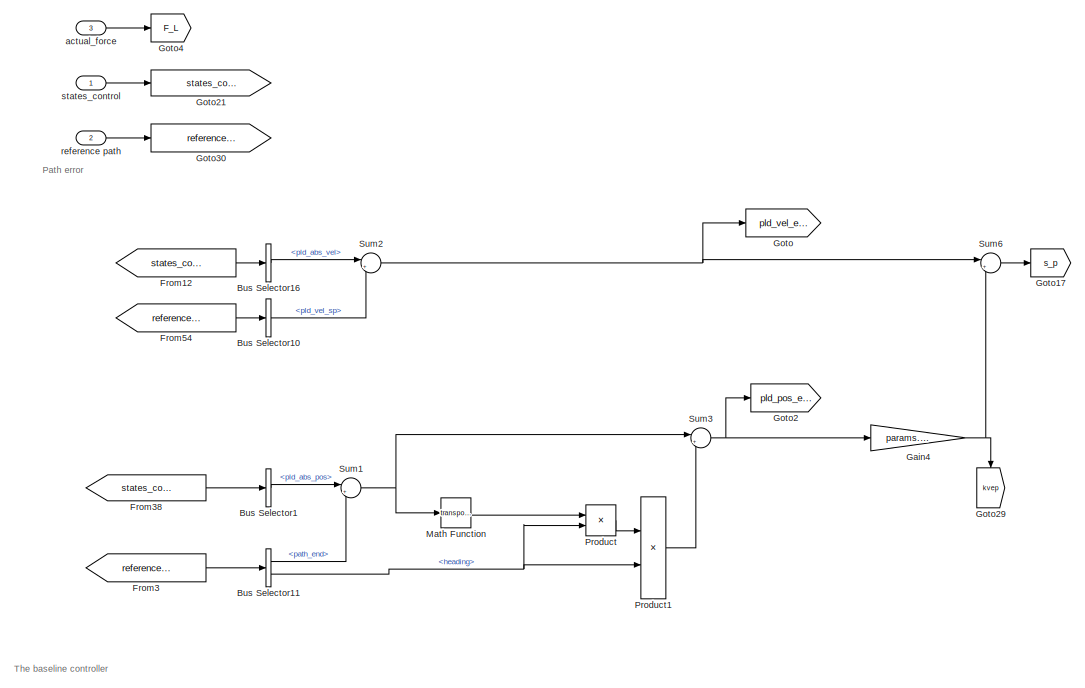
[diagram: Control_Force1 - part 1/5, top left region]
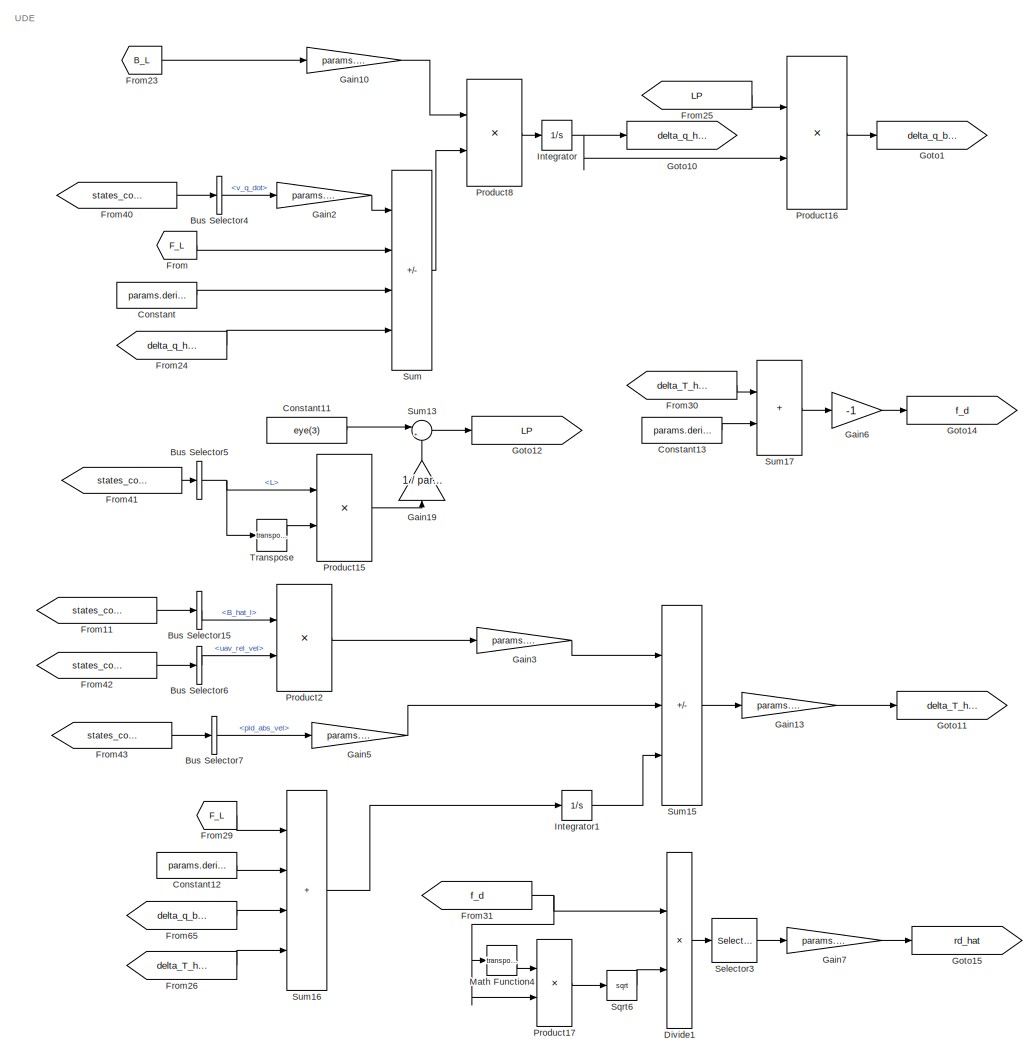
[diagram: Control_Force1 - part 2/5, middle right region]
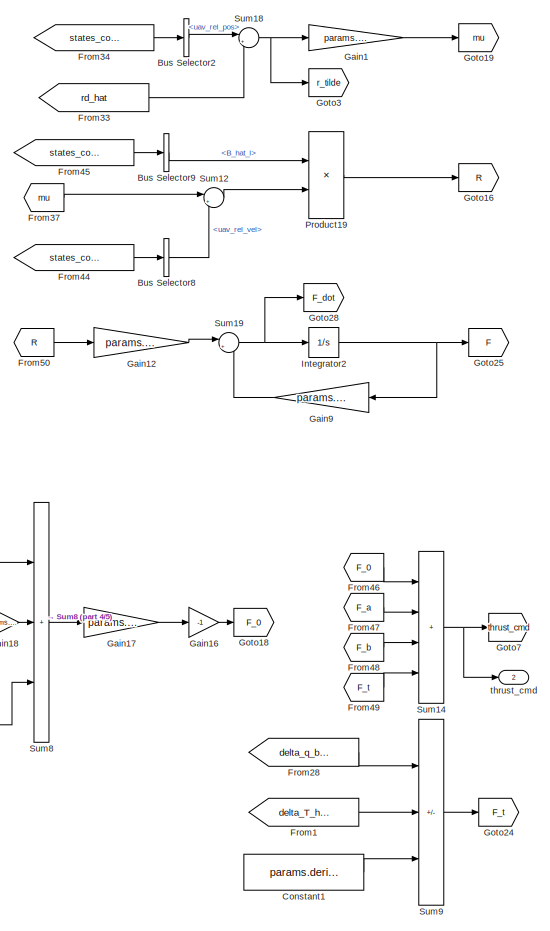
[diagram: Control_Force1 - part 3/5, central region]
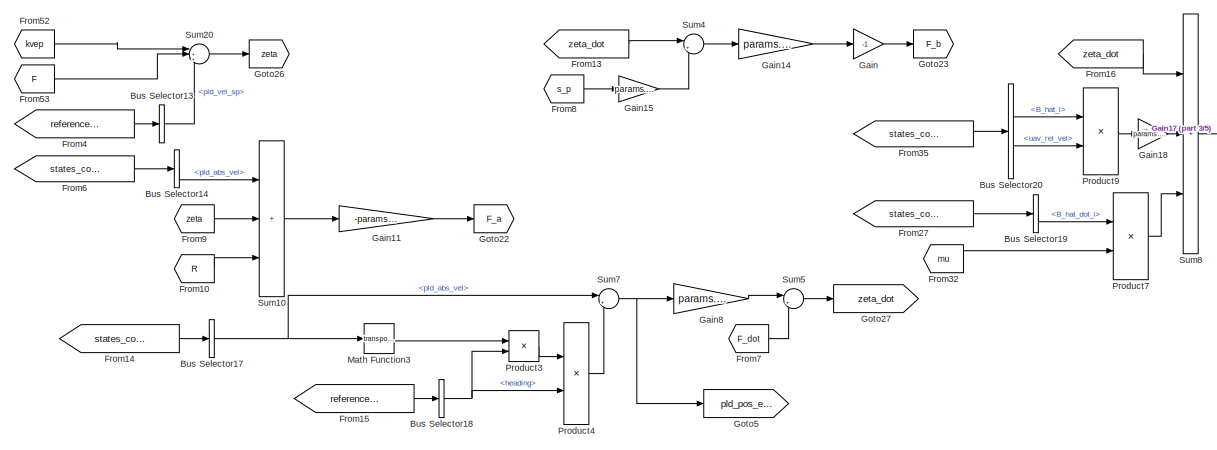
[diagram: Control_Force1 - part 4/5, middle left region]
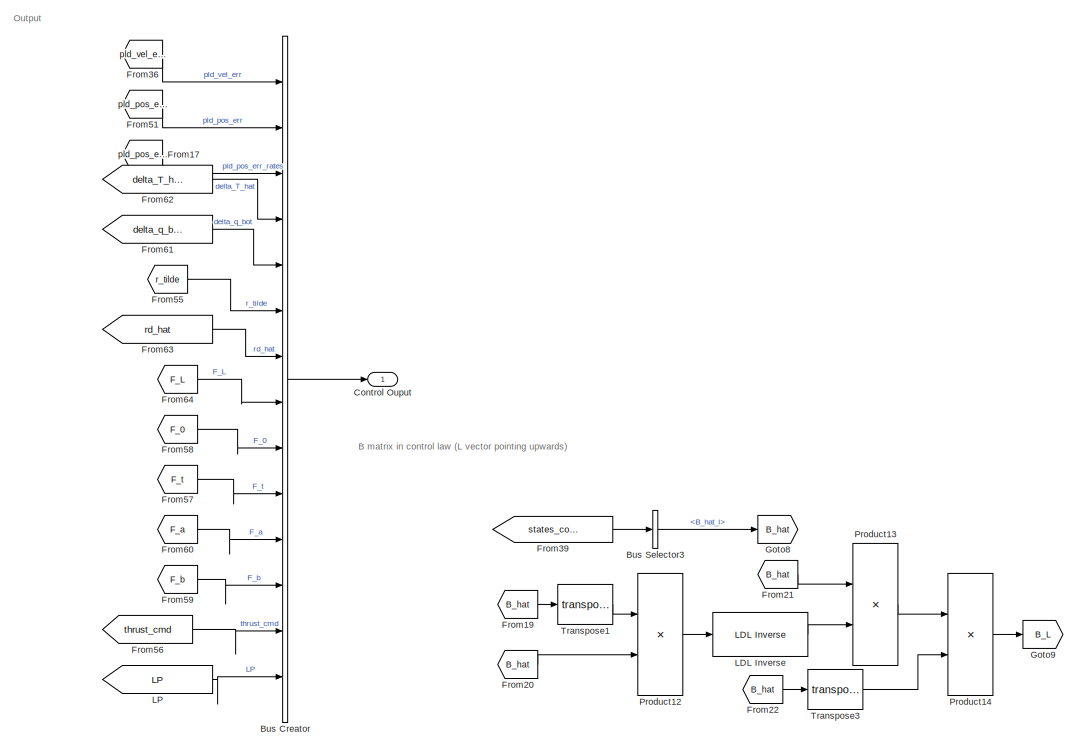
[diagram: Control_Force1 - part 5/5, bottom left region]
BLOCK [SubSystem] Control_Force1
  Ports = [3, 2]
  RequestExecContextInheritance = off
BLOCK [BusCreator] Control_Force1/Bus Creator
  DisplayOption = bar
  InheritFromInputs = on
  Inputs = 14
  Ports = [14, 1]
BLOCK [BusSelector] Control_Force1/Bus Selector1
  OutputSignals = pld_abs_pos
  Ports = [1, 1]
BLOCK [BusSelector] Control_Force1/Bus Selector10
  OutputSignals = pld_vel_sp
  Ports = [1, 1]
BLOCK [BusSelector] Control_Force1/Bus Selector11
  OutputSignals = path_end,heading
  Ports = [1, 2]
BLOCK [BusSelector] Control_Force1/Bus Selector13
  OutputSignals = pld_vel_sp
  Ports = [1, 1]
BLOCK [BusSelector] Control_Force1/Bus Selector14
  OutputSignals = pld_abs_vel
  Ports = [1, 1]
BLOCK [BusSelector] Control_Force1/Bus Selector15
  OutputSignals = B_hat_l
  Ports = [1, 1]
BLOCK [BusSelector] Control_Force1/Bus Selector16
  OutputSignals = pld_abs_vel
  Ports = [1, 1]
BLOCK [BusSelector] Control_Force1/Bus Selector17
  OutputSignals = pld_abs_vel
  Ports = [1, 1]
BLOCK [BusSelector] Control_Force1/Bus Selector18
  OutputSignals = heading
  Ports = [1, 1]
BLOCK [BusSelector] Control_Force1/Bus Selector19
  OutputSignals = B_hat_dot_l
  Ports = [1, 1]
BLOCK [BusSelector] Control_Force1/Bus Selector2
  OutputSignals = uav_rel_pos
  Ports = [1, 1]
BLOCK [BusSelector] Control_Force1/Bus Selector20
  OutputSignals = B_hat_l,uav_rel_vel
  Ports = [1, 2]
BLOCK [BusSelector] Control_Force1/Bus Selector3
  OutputSignals = B_hat_l
  Ports = [1, 1]
BLOCK [BusSelector] Control_Force1/Bus Selector4
  OutputSignals = v_q_dot
  Ports = [1, 1]
BLOCK [BusSelector] Control_Force1/Bus Selector5
  OutputSignals = L
  Ports = [1, 1]
BLOCK [BusSelector] Control_Force1/Bus Selector6
  OutputSignals = uav_rel_vel
  Ports = [1, 1]
BLOCK [BusSelector] Control_Force1/Bus Selector7
  OutputSignals = pld_abs_vel
  Ports = [1, 1]
BLOCK [BusSelector] Control_Force1/Bus Selector8
  OutputSignals = uav_rel_vel
  Ports = [1, 1]
BLOCK [BusSelector] Control_Force1/Bus Selector9
  OutputSignals = B_hat_l
  Ports = [1, 1]
BLOCK [Constant] Control_Force1/Constant
  Value = params.derived.uav_weight
BLOCK [Constant] Control_Force1/Constant1
  Value = params.derived.sys_weight
BLOCK [Constant] Control_Force1/Constant11
  Value = eye(3)
BLOCK [Constant] Control_Force1/Constant12
  Value = params.derived.sys_weight
BLOCK [Constant] Control_Force1/Constant13
  Value = params.derived.pld_weight
BLOCK [Outport] Control_Force1/Control Ouput
  VectorParamsAs1DForOutWhenUnconnected = off
BLOCK [Product] Control_Force1/Divide1
  Inputs = */
  Ports = [2, 1]
BLOCK [From] Control_Force1/From
  GotoTag = F_L
BLOCK [From] Control_Force1/From1
  GotoTag = delta_T_hat
BLOCK [From] Control_Force1/From10
  GotoTag = R
BLOCK [From] Control_Force1/From11
  GotoTag = states_control
BLOCK [From] Control_Force1/From12
  GotoTag = states_control
BLOCK [From] Control_Force1/From13
  GotoTag = zeta_dot
BLOCK [From] Control_Force1/From14
  GotoTag = states_control
BLOCK [From] Control_Force1/From15
  GotoTag = reference_path
BLOCK [From] Control_Force1/From16
  GotoTag = zeta_dot
BLOCK [From] Control_Force1/From17
  GotoTag = pld_pos_err_rates
  NameLocation = top
BLOCK [From] Control_Force1/From19
  GotoTag = B_hat
  NameLocation = top
BLOCK [From] Control_Force1/From20
  GotoTag = B_hat
  NameLocation = top
BLOCK [From] Control_Force1/From21
  GotoTag = B_hat
  NameLocation = top
BLOCK [From] Control_Force1/From22
  GotoTag = B_hat
  NameLocation = top
BLOCK [From] Control_Force1/From23
  GotoTag = B_L
BLOCK [From] Control_Force1/From24
  GotoTag = delta_q_hat
BLOCK [From] Control_Force1/From25
  GotoTag = LP
BLOCK [From] Control_Force1/From26
  GotoTag = delta_T_hat
BLOCK [From] Control_Force1/From27
  GotoTag = states_control
BLOCK [From] Control_Force1/From28
  GotoTag = delta_q_bot
BLOCK [From] Control_Force1/From29
  GotoTag = F_L
BLOCK [From] Control_Force1/From3
  GotoTag = reference_path
BLOCK [From] Control_Force1/From30
  GotoTag = delta_T_hat
BLOCK [From] Control_Force1/From31
  GotoTag = f_d
BLOCK [From] Control_Force1/From32
  GotoTag = mu
BLOCK [From] Control_Force1/From33
  GotoTag = rd_hat
BLOCK [From] Control_Force1/From34
  GotoTag = states_control
BLOCK [From] Control_Force1/From35
  GotoTag = states_control
BLOCK [From] Control_Force1/From36
  GotoTag = pld_vel_err
BLOCK [From] Control_Force1/From37
  GotoTag = mu
BLOCK [From] Control_Force1/From38
  GotoTag = states_control
BLOCK [From] Control_Force1/From39
  GotoTag = states_control
BLOCK [From] Control_Force1/From4
  GotoTag = reference_path
BLOCK [From] Control_Force1/From40
  GotoTag = states_control
BLOCK [From] Control_Force1/From41
  GotoTag = states_control
BLOCK [From] Control_Force1/From42
  GotoTag = states_control
BLOCK [From] Control_Force1/From43
  GotoTag = states_control
BLOCK [From] Control_Force1/From44
  GotoTag = states_control
BLOCK [From] Control_Force1/From45
  GotoTag = states_control
BLOCK [From] Control_Force1/From46
  GotoTag = F_0
BLOCK [From] Control_Force1/From47
  GotoTag = F_a
BLOCK [From] Control_Force1/From48
  GotoTag = F_b
BLOCK [From] Control_Force1/From49
  GotoTag = F_t
BLOCK [From] Control_Force1/From50
  GotoTag = R
BLOCK [From] Control_Force1/From51
  GotoTag = pld_pos_err
  NameLocation = top
BLOCK [From] Control_Force1/From52
  GotoTag = kvep
BLOCK [From] Control_Force1/From53
  GotoTag = F
BLOCK [From] Control_Force1/From54
  GotoTag = reference_path
BLOCK [From] Control_Force1/From55
  GotoTag = r_tilde
BLOCK [From] Control_Force1/From56
  GotoTag = thrust_cmd
BLOCK [From] Control_Force1/From57
  GotoTag = F_t
BLOCK [From] Control_Force1/From58
  GotoTag = F_0
BLOCK [From] Control_Force1/From59
  GotoTag = F_b
BLOCK [From] Control_Force1/From6
  GotoTag = states_control
BLOCK [From] Control_Force1/From60
  GotoTag = F_a
BLOCK [From] Control_Force1/From61
  GotoTag = delta_q_bot
BLOCK [From] Control_Force1/From62
  GotoTag = delta_T_hat
BLOCK [From] Control_Force1/From63
  GotoTag = rd_hat
BLOCK [From] Control_Force1/From64
  GotoTag = F_L
BLOCK [From] Control_Force1/From65
  GotoTag = delta_q_bot
BLOCK [From] Control_Force1/From7
  GotoTag = F_dot
BLOCK [From] Control_Force1/From8
  GotoTag = s_p
BLOCK [From] Control_Force1/From9
  GotoTag = zeta
BLOCK [Gain] Control_Force1/Gain
  Gain = -1
BLOCK [Gain] Control_Force1/Gain1
  Gain = params.control.k_swing
BLOCK [Gain] Control_Force1/Gain10
  Gain = params.control.uav_de_gain
BLOCK [Gain] Control_Force1/Gain11
  Gain = -params.control.k_trim
BLOCK [Gain] Control_Force1/Gain12
  Gain = params.control.k_filter_gain
BLOCK [Gain] Control_Force1/Gain13
  Gain = params.control.total_de_gain
BLOCK [Gain] Control_Force1/Gain14
  Gain = params.pld_mass
BLOCK [Gain] Control_Force1/Gain15
  Gain = params.control.k_gen_trans_err
BLOCK [Gain] Control_Force1/Gain16
  Gain = -1
BLOCK [Gain] Control_Force1/Gain17
  Gain = params.uav_mass
BLOCK [Gain] Control_Force1/Gain18
  Gain = params.control.k_swing
BLOCK [Gain] Control_Force1/Gain19
  Gain = 1 / params.derived.cable_len_sq
  NameLocation = right
BLOCK [Gain] Control_Force1/Gain2
  Gain = params.uav_mass
BLOCK [Gain] Control_Force1/Gain3
  Gain = params.uav_mass
BLOCK [Gain] Control_Force1/Gain4
  Gain = params.control.k_pos_err
BLOCK [Gain] Control_Force1/Gain5
  Gain = params.derived.sys_mass
BLOCK [Gain] Control_Force1/Gain6
  Gain = -1
BLOCK [Gain] Control_Force1/Gain7
  Gain = params.cable_len
BLOCK [Gain] Control_Force1/Gain8
  Gain = params.control.k_pos_err
BLOCK [Gain] Control_Force1/Gain9
  Gain = params.control.k_filter_leak
  NameLocation = top
BLOCK [Goto] Control_Force1/Goto
  GotoTag = pld_vel_err
BLOCK [Goto] Control_Force1/Goto1
  GotoTag = delta_q_bot
BLOCK [Goto] Control_Force1/Goto10
  GotoTag = delta_q_hat
BLOCK [Goto] Control_Force1/Goto11
  GotoTag = delta_T_hat
BLOCK [Goto] Control_Force1/Goto12
  GotoTag = LP
BLOCK [Goto] Control_Force1/Goto14
  GotoTag = f_d
BLOCK [Goto] Control_Force1/Goto15
  GotoTag = rd_hat
BLOCK [Goto] Control_Force1/Goto16
  GotoTag = R
BLOCK [Goto] Control_Force1/Goto17
  GotoTag = s_p
BLOCK [Goto] Control_Force1/Goto18
  GotoTag = F_0
BLOCK [Goto] Control_Force1/Goto19
  GotoTag = mu
BLOCK [Goto] Control_Force1/Goto2
  GotoTag = pld_pos_err
BLOCK [Goto] Control_Force1/Goto21
  GotoTag = states_control
BLOCK [Goto] Control_Force1/Goto22
  GotoTag = F_a
BLOCK [Goto] Control_Force1/Goto23
  GotoTag = F_b
BLOCK [Goto] Control_Force1/Goto24
  GotoTag = F_t
BLOCK [Goto] Control_Force1/Goto25
  GotoTag = F
BLOCK [Goto] Control_Force1/Goto26
  GotoTag = zeta
BLOCK [Goto] Control_Force1/Goto27
  GotoTag = zeta_dot
BLOCK [Goto] Control_Force1/Goto28
  GotoTag = F_dot
BLOCK [Goto] Control_Force1/Goto29
  GotoTag = kvep
  NameLocation = left
BLOCK [Goto] Control_Force1/Goto3
  GotoTag = r_tilde
BLOCK [Goto] Control_Force1/Goto30
  GotoTag = reference_path
BLOCK [Goto] Control_Force1/Goto4
  GotoTag = F_L
BLOCK [Goto] Control_Force1/Goto5
  GotoTag = pld_pos_err_rates
BLOCK [Goto] Control_Force1/Goto7
  GotoTag = thrust_cmd
BLOCK [Goto] Control_Force1/Goto8
  GotoTag = B_hat
BLOCK [Goto] Control_Force1/Goto9
  GotoTag = B_L
BLOCK [Integrator] Control_Force1/Integrator
  Ports = [1, 1]
BLOCK [Integrator] Control_Force1/Integrator1
  Ports = [1, 1]
BLOCK [Integrator] Control_Force1/Integrator2
  Ports = [1, 1]
BLOCK [Reference] Control_Force1/LDL Inverse  REF=dspinverses/LDL Inverse
  Ports = [1, 1]
  SourceBlock = dspinverses/LDL Inverse
  SourceProductBaseCode = DS
  SourceType = LDL Inverse
BLOCK [From] Control_Force1/LP
  GotoTag = LP
BLOCK [Math] Control_Force1/Math Function
  Operator = transpose
  Ports = [1, 1]
  SignedPower = on
BLOCK [Math] Control_Force1/Math Function3
  Operator = transpose
  Ports = [1, 1]
  SignedPower = on
BLOCK [Math] Control_Force1/Math Function4
  Operator = transpose
  Ports = [1, 1]
  SignedPower = on
BLOCK [Product] Control_Force1/Product
  Multiplication = Matrix(*)
  Ports = [2, 1]
BLOCK [Product] Control_Force1/Product1
  Ports = [2, 1]
BLOCK [Product] Control_Force1/Product12
  Multiplication = Matrix(*)
  Ports = [2, 1]
BLOCK [Product] Control_Force1/Product13
  Multiplication = Matrix(*)
  Ports = [2, 1]
BLOCK [Product] Control_Force1/Product14
  Multiplication = Matrix(*)
  Ports = [2, 1]
BLOCK [Product] Control_Force1/Product15
  Multiplication = Matrix(*)
  Ports = [2, 1]
BLOCK [Product] Control_Force1/Product16
  Multiplication = Matrix(*)
  Ports = [2, 1]
BLOCK [Product] Control_Force1/Product17
  Multiplication = Matrix(*)
  Ports = [2, 1]
BLOCK [Product] Control_Force1/Product19
  Multiplication = Matrix(*)
  Ports = [2, 1]
BLOCK [Product] Control_Force1/Product2
  Multiplication = Matrix(*)
  Ports = [2, 1]
BLOCK [Product] Control_Force1/Product3
  Multiplication = Matrix(*)
  Ports = [2, 1]
BLOCK [Product] Control_Force1/Product4
  Ports = [2, 1]
BLOCK [Product] Control_Force1/Product7
  Multiplication = Matrix(*)
  Ports = [2, 1]
BLOCK [Product] Control_Force1/Product8
  Multiplication = Matrix(*)
  Ports = [2, 1]
BLOCK [Product] Control_Force1/Product9
  Multiplication = Matrix(*)
  Ports = [2, 1]
BLOCK [Selector] Control_Force1/Selector3
  IndexOptions = Index vector (dialog)
  Indices = [1 2]
  InputPortWidth = 3
  OutputSizes = 1
  Ports = [1, 1]
BLOCK [Sqrt] Control_Force1/Sqrt6
BLOCK [Sum] Control_Force1/Sum
  IconShape = rectangular
  Inputs = +---
  Ports = [4, 1]
BLOCK [Sum] Control_Force1/Sum1
  Inputs = |+-
  Ports = [2, 1]
BLOCK [Sum] Control_Force1/Sum10
  IconShape = rectangular
  Inputs = +++
  Ports = [3, 1]
BLOCK [Sum] Control_Force1/Sum12
  Inputs = |++
  Ports = [2, 1]
BLOCK [Sum] Control_Force1/Sum13
  Inputs = |+-
  Ports = [2, 1]
BLOCK [Sum] Control_Force1/Sum14
  IconShape = rectangular
  Inputs = ++++
  Ports = [4, 1]
BLOCK [Sum] Control_Force1/Sum15
  IconShape = rectangular
  Inputs = ++-
  Ports = [3, 1]
BLOCK [Sum] Control_Force1/Sum16
  IconShape = rectangular
  Inputs = ++++
  Ports = [4, 1]
BLOCK [Sum] Control_Force1/Sum17
  IconShape = rectangular
  Ports = [2, 1]
BLOCK [Sum] Control_Force1/Sum18
  Inputs = |+-
  Ports = [2, 1]
BLOCK [Sum] Control_Force1/Sum19
  Inputs = |+-
  Ports = [2, 1]
BLOCK [Sum] Control_Force1/Sum2
  Inputs = |+-
  Ports = [2, 1]
BLOCK [Sum] Control_Force1/Sum20
  Inputs = |++-
  Ports = [3, 1]
BLOCK [Sum] Control_Force1/Sum3
  Inputs = |+-
  Ports = [2, 1]
BLOCK [Sum] Control_Force1/Sum4
  Inputs = |++
  Ports = [2, 1]
BLOCK [Sum] Control_Force1/Sum5
  Inputs = |++
  Ports = [2, 1]
BLOCK [Sum] Control_Force1/Sum6
  Inputs = |++
  Ports = [2, 1]
BLOCK [Sum] Control_Force1/Sum7
  Inputs = |+-
  Ports = [2, 1]
BLOCK [Sum] Control_Force1/Sum8
  IconShape = rectangular
  Inputs = +++
  Ports = [3, 1]
BLOCK [Sum] Control_Force1/Sum9
  IconShape = rectangular
  Inputs = ---
  Ports = [3, 1]
BLOCK [Math] Control_Force1/Transpose
  Operator = transpose
  Ports = [1, 1]
  SignedPower = on
BLOCK [Math] Control_Force1/Transpose1
  Operator = transpose
  Ports = [1, 1]
  SignedPower = on
BLOCK [Math] Control_Force1/Transpose3
  Operator = transpose
  Ports = [1, 1]
  SignedPower = on
BLOCK [Inport] Control_Force1/actual_force
  Port = 3
BLOCK [Inport] Control_Force1/reference path
  Port = 2
BLOCK [Inport] Control_Force1/states_control
BLOCK [Outport] Control_Force1/thrust_cmd
  Port = 2
  VectorParamsAs1DForOutWhenUnconnected = off
BLOCK [SubSystem] Coriolis Matrix
  Ports = [2, 1]
  RequestExecContextInheritance = off
BLOCK [Inport] Coriolis Matrix/B_hat
BLOCK [Inport] Coriolis Matrix/B_hat_dot
  Port = 2
BLOCK [Outport] Coriolis Matrix/C Matrix
  VectorParamsAs1DForOutWhenUnconnected = off
BLOCK [Constant] Coriolis Matrix/Constant
  Value = [zeros(2,3);zeros(3)]
  VectorParams1D = off
BLOCK [From] Coriolis Matrix/From5
  GotoTag = B_hatT
BLOCK [Gain] Coriolis Matrix/Gain4
  Gain = params.pld_mass
BLOCK [Gain] Coriolis Matrix/Gain5
  Gain = params.pld_mass
BLOCK [Goto] Coriolis Matrix/Goto3
  GotoTag = B_hatT
BLOCK [Concatenate] Coriolis Matrix/Matrix Concatenate
  ConcatenateDimension = 2
  Mode = Multidimensional array
  Ports = [2, 1]
BLOCK [Concatenate] Coriolis Matrix/Matrix Concatenate1
  Mode = Multidimensional array
  Ports = [2, 1]
BLOCK [Product] Coriolis Matrix/Product1
  Multiplication = Matrix(*)
  Ports = [2, 1]
BLOCK [Math] Coriolis Matrix/Transpose3
  Operator = transpose
  Ports = [1, 1]
  SignedPower = on
BLOCK [SubSystem] Dynamics
  Ports = [3, 2]
  RequestExecContextInheritance = off
BLOCK [Constant] Dynamics/Constant8
  Value = [ics.pld_rel_vel; ics.uav_vel]
  VectorParams1D = off
BLOCK [Inport] Dynamics/Coriolis Matrix
  Port = 2
BLOCK [Inport] Dynamics/Forces
  Port = 3
BLOCK [Integrator] Dynamics/Integrator2
  InitialCondition = U_initial
  InitialConditionSource = external
  Ports = [2, 1]
BLOCK [Reference] Dynamics/LDL Inverse  REF=dspinverses/LDL Inverse
  Ports = [1, 1]
  SourceBlock = dspinverses/LDL Inverse
  SourceProductBaseCode = DS
  SourceType = LDL Inverse
BLOCK [Inport] Dynamics/Mass Matrix
BLOCK [Product] Dynamics/Product2
  Multiplication = Matrix(*)
  Ports = [2, 1]
  RndMeth = Zero
BLOCK [Product] Dynamics/Product6
  Multiplication = Matrix(*)
  Ports = [2, 1]
BLOCK [Sum] Dynamics/Sum7
  IconShape = rectangular
  Inputs = +-
  Ports = [2, 1]
BLOCK [Outport] Dynamics/accelerations
BLOCK [Outport] Dynamics/velocities
  Port = 2
BLOCK [SubSystem] Estimation error1
  Commented = on
  Ports = [3, 2]
  RequestExecContextInheritance = off
BLOCK [BusSelector] Estimation error1/Bus Selector
  OutputSignals = delta_q_bot,LP
  Ports = [1, 2]
BLOCK [BusSelector] Estimation error1/Bus Selector1
  OutputSignals = delta_T_hat
  Ports = [1, 1]
BLOCK [From] Estimation error1/From
  GotoTag = control_output
BLOCK [From] Estimation error1/From1
  GotoTag = W_q_total
BLOCK [From] Estimation error1/From2
  GotoTag = W_q_total
BLOCK [From] Estimation error1/From3
  GotoTag = W_p_total
BLOCK [From] Estimation error1/From4
  GotoTag = control_output
BLOCK [Goto] Estimation error1/Goto
  GotoTag = control_output
BLOCK [Goto] Estimation error1/Goto2
  GotoTag = W_p_total
BLOCK [Goto] Estimation error1/Goto3
  GotoTag = W_q_total
BLOCK [Product] Estimation error1/Product16
  Multiplication = Matrix(*)
  Ports = [2, 1]
BLOCK [Sum] Estimation error1/Sum
  Inputs = |+-
  Ports = [2, 1]
BLOCK [Sum] Estimation error1/Sum1
  Inputs = |-+
  Ports = [2, 1]
BLOCK [Sum] Estimation error1/Sum2
  Inputs = |++
  Ports = [2, 1]
BLOCK [Sum] Estimation error1/Sum3
  Inputs = |-+
  Ports = [2, 1]
BLOCK [Inport] Estimation error1/W_p_total
  Port = 2
BLOCK [Inport] Estimation error1/W_q_total
  Port = 3
BLOCK [Inport] Estimation error1/controller
BLOCK [Outport] Estimation error1/delta_T_error
  Port = 2
  VectorParamsAs1DForOutWhenUnconnected = off
BLOCK [Outport] Estimation error1/delta_p_bot_error
  VectorParamsAs1DForOutWhenUnconnected = off
BLOCK [From] From1
  GotoTag = pld_abs_vel
BLOCK [From] From12
  GotoTag = uav_vel
BLOCK [From] From13
  GotoTag = B_hat
BLOCK [From] From19
  GotoTag = Inertial_Matrix
BLOCK [From] From2
  GotoTag = uav_att
BLOCK [From] From24
  GotoTag = uav_pos
BLOCK [From] From3
  GotoTag = uav_vel
BLOCK [From] From4
  GotoTag = pld_rel_pos
BLOCK [From] From47
  GotoTag = F_d
BLOCK [From] From48
  GotoTag = gravity
BLOCK [From] From49
  GotoTag = reference_path
BLOCK [From] From5
  GotoTag = uav_pos
BLOCK [From] From50
  GotoTag = C_Matrix
BLOCK [From] From53
  GotoTag = States_Control
BLOCK [From] From59
  GotoTag = B_hat
BLOCK [From] From6
  GotoTag = pld_rel_vel
BLOCK [From] From60
  GotoTag = ControlOutput
BLOCK [From] From62
  Commented = on
  GotoTag = ControlOutput
BLOCK [From] From63
  GotoTag = B_hat
BLOCK [From] From64
  GotoTag = B_hat_dot
BLOCK [From] From67
  Commented = on
  GotoTag = W_p_total
BLOCK [From] From68
  GotoTag = B_hat_dot
BLOCK [From] From7
  GotoTag = uav_acc
BLOCK [From] From71
  GotoTag = Y
BLOCK [From] From73
  GotoTag = States_Control
BLOCK [From] From74
  Commented = on
  GotoTag = W_q_total
BLOCK [From] From75
  GotoTag = actuation
BLOCK [From] From76
  GotoTag = B_hat
BLOCK [From] From77
  GotoTag = reference_path
BLOCK [From] From78
  GotoTag = pld_rel_pos
BLOCK [From] From79
  GotoTag = B_hat
BLOCK [From] From8
  GotoTag = States_Control
BLOCK [From] From80
  GotoTag = pld_rel_vel
BLOCK [SubSystem] Generalized Mass Matrix
  Ports = [1, 1]
  RequestExecContextInheritance = off
BLOCK [Inport] Generalized Mass Matrix/B_hat
BLOCK [Constant] Generalized Mass Matrix/Constant
  Value = params.derived.sys_mass*eye(3)
BLOCK [From] Generalized Mass Matrix/From1
  GotoTag = B_hatT
BLOCK [From] Generalized Mass Matrix/From2
  GotoTag = B_hat
BLOCK [From] Generalized Mass Matrix/From3
  GotoTag = B_hat
BLOCK [From] Generalized Mass Matrix/From4
  GotoTag = B_hatT
BLOCK [Gain] Generalized Mass Matrix/Gain1
  Gain = params.pld_mass
BLOCK [Gain] Generalized Mass Matrix/Gain2
  Gain = params.pld_mass
BLOCK [Gain] Generalized Mass Matrix/Gain3
  Gain = params.pld_mass
BLOCK [Goto] Generalized Mass Matrix/Goto1
  GotoTag = B_hat
BLOCK [Goto] Generalized Mass Matrix/Goto3
  GotoTag = B_hatT
BLOCK [Outport] Generalized Mass Matrix/Mass Matrix
  VectorParamsAs1DForOutWhenUnconnected = off
BLOCK [Concatenate] Generalized Mass Matrix/Matrix Concatenate
  ConcatenateDimension = 2
  Mode = Multidimensional array
  Ports = [2, 1]
BLOCK [Concatenate] Generalized Mass Matrix/Matrix Concatenate1
  Mode = Multidimensional array
  Ports = [2, 1]
BLOCK [Concatenate] Generalized Mass Matrix/Matrix Concatenate2
  Mode = Multidimensional array
  Ports = [2, 1]
BLOCK [Product] Generalized Mass Matrix/Product
  Multiplication = Matrix(*)
  Ports = [2, 1]
BLOCK [Math] Generalized Mass Matrix/Transpose3
  Operator = transpose
  Ports = [1, 1]
  SignedPower = on
BLOCK [Goto] Goto1
  GotoTag = pld_abs_vel
BLOCK [Goto] Goto2
  GotoTag = pld_rel_vel
BLOCK [Goto] Goto20
  Commented = on
  GotoTag = W_p_total
BLOCK [Goto] Goto22
  Commented = on
  GotoTag = W_q_total
BLOCK [Goto] Goto26
  GotoTag = B_hat
BLOCK [Goto] Goto27
  GotoTag = Inertial_Matrix
BLOCK [Goto] Goto28
  GotoTag = Y
BLOCK [Goto] Goto3
  GotoTag = uav_vel
BLOCK [Goto] Goto30
  GotoTag = B_hat_dot
BLOCK [Goto] Goto31
  GotoTag = reference_path
BLOCK [Goto] Goto32
  GotoTag = States_Control
  NameLocation = top
BLOCK [Goto] Goto35
  GotoTag = ControlOutput
BLOCK [Goto] Goto37
  GotoTag = actuation
BLOCK [Goto] Goto39
  GotoTag = C_Matrix
BLOCK [Goto] Goto4
  GotoTag = uav_pos
BLOCK [Goto] Goto40
  GotoTag = gravity
BLOCK [Goto] Goto5
  GotoTag = pld_rel_pos
BLOCK [Goto] Goto6
  GotoTag = F_d
BLOCK [Goto] Goto7
  GotoTag = uav_att
BLOCK [Goto] Goto8
  GotoTag = uav_acc
BLOCK [SubSystem] Guidance Law 1
  Ports = [1, 1]
  RequestExecContextInheritance = off
BLOCK [BusCreator] Guidance Law 1/Bus Creator
  DisplayOption = bar
  InheritFromInputs = on
  Inputs = 4
  Ports = [4, 1]
BLOCK [Reference] Guidance Law 1/Compare To Constant  REF=simulink/Logic and Bit
Operations/Compare
To Constant
  Ports = [1, 1]
  SourceBlock = simulink/Logic and Bit\nOperations/Compare\nTo Constant
  SourceProductBaseCode = SL
  SourceType = Compare To Constant
BLOCK [Reference] Guidance Law 1/Compare To Constant1  REF=simulink/Logic and Bit
Operations/Compare
To Constant
  Ports = [1, 1]
  SourceBlock = simulink/Logic and Bit\nOperations/Compare\nTo Constant
  SourceProductBaseCode = SL
  SourceType = Compare To Constant
BLOCK [Constant] Guidance Law 1/Constant
BLOCK [Constant] Guidance Law 1/Constant2
  Value = params.mission.path(:,end)
BLOCK [LookupNDDirect] Guidance Law 1/Direct Lookup Table (n-D)
  InputsSelectThisObjectFromTable = Vector
  Ports = [1, 1]
  Table = params.mission.path
BLOCK [LookupNDDirect] Guidance Law 1/Direct Lookup Table (n-D)1
  InputsSelectThisObjectFromTable = Vector
  Ports = [1, 1]
  Table = params.mission.path
BLOCK [From] Guidance Law 1/From
  GotoTag = path_end
BLOCK [From] Guidance Law 1/From1
  GotoTag = heading
BLOCK [From] Guidance Law 1/From2
  GotoTag = path_begin
BLOCK [Gain] Guidance Law 1/Gain1
  Gain = params.mission.cruise_speed
BLOCK [Goto] Guidance Law 1/Goto
  GotoTag = path_end
BLOCK [Goto] Guidance Law 1/Goto1
  GotoTag = path_begin
BLOCK [Goto] Guidance Law 1/Goto3
  GotoTag = heading
BLOCK [Memory] Guidance Law 1/Memory
  InitialCondition = 1
BLOCK [Stop] Guidance Law 1/Stop Simulation
BLOCK [Sum] Guidance Law 1/Subtract
  IconShape = rectangular
  Inputs = +-
  Ports = [2, 1]
BLOCK [Sum] Guidance Law 1/Subtract1
  IconShape = rectangular
  Inputs = +-
  Ports = [2, 1]
BLOCK [Sum] Guidance Law 1/Sum
  Inputs = |++
  Ports = [2, 1]
BLOCK [SubSystem] Guidance Law 1/normalize
  Ports = [1, 1]
  RequestExecContextInheritance = off
BLOCK [DotProduct] Guidance Law 1/normalize/Dot Product1
  OutDataTypeStr = Inherit: Inherit via internal rule
BLOCK [Inport] Guidance Law 1/normalize/In1
BLOCK [Outport] Guidance Law 1/normalize/Out1
BLOCK [Product] Guidance Law 1/normalize/Product
  Ports = [2, 1]
BLOCK [Sqrt] Guidance Law 1/normalize/Reciprocal Sqrt
  Operator = rSqrt
BLOCK [SubSystem] Guidance Law 1/path_difference_sq
  Ports = [2, 1]
  RequestExecContextInheritance = off
BLOCK [DotProduct] Guidance Law 1/path_difference_sq/Dot Product
  OutDataTypeStr = Inherit: Inherit via internal rule
BLOCK [Sum] Guidance Law 1/path_difference_sq/Sum
  Inputs = |+-
  Ports = [2, 1]
BLOCK [Inport] Guidance Law 1/path_difference_sq/p1
BLOCK [Inport] Guidance Law 1/path_difference_sq/p2
  Port = 2
BLOCK [Outport] Guidance Law 1/path_difference_sq/sq dist
BLOCK [SubSystem] Guidance Law 1/path_difference_sq1
  Ports = [2, 1]
  RequestExecContextInheritance = off
BLOCK [DotProduct] Guidance Law 1/path_difference_sq1/Dot Product
  OutDataTypeStr = Inherit: Inherit via internal rule
BLOCK [Sum] Guidance Law 1/path_difference_sq1/Sum
  Inputs = |+-
  Ports = [2, 1]
BLOCK [Inport] Guidance Law 1/path_difference_sq1/p1
BLOCK [Inport] Guidance Law 1/path_difference_sq1/p2
  Port = 2
BLOCK [Outport] Guidance Law 1/path_difference_sq1/sq dist
BLOCK [Inport] Guidance Law 1/pld_abs_pos
BLOCK [Outport] Guidance Law 1/reference path
  VectorParamsAs1DForOutWhenUnconnected = off
BLOCK [Concatenate] Matrix Concatenate5
  Mode = Multidimensional array
  Ports = [2, 1]
BLOCK [Outport] Out1
  Port = 15
  SignalName = pld_vel_sp
BLOCK [Outport] Out18
  Port = 9
  SignalName = thrust_cmd
BLOCK [Outport] Out19
  Port = 7
  SignalName = pld_abs_pos
BLOCK [Outport] Out20
  Port = 6
  SignalName = pld_abs_vel
BLOCK [Outport] Out21
  Port = 10
  SignalName = pld_pos_err
BLOCK [Outport] Out22
  Port = 12
  SignalName = pld_vel_err
BLOCK [Outport] Out24
  Port = 13
  SignalName = path_begin
BLOCK [Outport] Out25
  Port = 14
  SignalName = path_end
BLOCK [Outport] Out4
  SignalName = uav_pos
BLOCK [Outport] Out5
  Port = 3
  SignalName = uav_vel
BLOCK [Outport] Out8
  Port = 4
  SignalName = pld_rel_vel
BLOCK [Outport] Out9
  Port = 5
  SignalName = uav_acc
BLOCK [Reshape] Reshape1
  OutputDimensionality = Column vector (2-D)
  Ports = [1, 1]
BLOCK [Reshape] Reshape4
  OutputDimensionality = Column vector (2-D)
  Ports = [1, 1]
BLOCK [Reshape] Reshape5
  OutputDimensionality = Column vector (2-D)
  Ports = [1, 1]
BLOCK [Selector] Selector1
  IndexOptions = Index vector (dialog)
  Indices = [1 2]
  InputPortWidth = 5
  OutputSizes = 1
  Ports = [1, 1]
BLOCK [Selector] Selector4
  IndexOptions = Index vector (dialog)
  Indices = [1 2]
  InputPortWidth = 5
  OutputSizes = 1
  Ports = [1, 1]
BLOCK [Selector] Selector5
  IndexOptions = Index vector (dialog)
  Indices = [3 4 5]
  InputPortWidth = 5
  OutputSizes = 1
  Ports = [1, 1]
BLOCK [Selector] Selector6
  IndexOptions = Index vector (dialog)
  Indices = [3 4 5]
  InputPortWidth = 5
  NameLocation = top
  OutputSizes = 1
  Ports = [1, 1]
BLOCK [Selector] Selector7
  IndexOptions = Index vector (dialog)
  Indices = [3 4 5]
  InputPortWidth = 5
  OutputSizes = 1
  Ports = [1, 1]
BLOCK [SubSystem] Subsystem2
  Ports = [9, 1]
  RequestExecContextInheritance = off
BLOCK [Inport] Subsystem2/B_hat
  Port = 7
BLOCK [Inport] Subsystem2/B_hat_dot
  Port = 8
BLOCK [BusCreator] Subsystem2/Bus Creator
  DisplayOption = bar
  InheritFromInputs = on
  Inputs = 11
  Ports = [11, 1]
BLOCK [Constant] Subsystem2/Constant2
  Value = diag([1 1 1])
BLOCK [Constant] Subsystem2/Constant3
  Value = diag([1 1 1])
BLOCK [From] Subsystem2/From
  GotoTag = pld_abs_vel
BLOCK [From] Subsystem2/From1
  GotoTag = pld_rel_pos_full
BLOCK [From] Subsystem2/From10
  GotoTag = uav_rel_pos
BLOCK [From] Subsystem2/From11
  GotoTag = uav_pos
BLOCK [From] Subsystem2/From12
  GotoTag = pld_rel_pos_full
BLOCK [From] Subsystem2/From13
  GotoTag = pld_abs_pos
BLOCK [From] Subsystem2/From14
  GotoTag = B_hat
BLOCK [From] Subsystem2/From15
  GotoTag = B_hat_dot
BLOCK [From] Subsystem2/From16
  GotoTag = B_hat_dot_local
BLOCK [From] Subsystem2/From17
  GotoTag = pld_rel_vel
BLOCK [From] Subsystem2/From18
  GotoTag = uav_acc
BLOCK [From] Subsystem2/From19
  GotoTag = L
BLOCK [From] Subsystem2/From2
  GotoTag = pld_rel_vel
BLOCK [From] Subsystem2/From20
  GotoTag = pld_rel_vel_meas
BLOCK [From] Subsystem2/From21
  GotoTag = pld_rel_pos_meas
BLOCK [From] Subsystem2/From22
  GotoTag = pld_rel_vel_full
BLOCK [From] Subsystem2/From23
  GotoTag = uav_att
BLOCK [From] Subsystem2/From3
  GotoTag = B_hat
BLOCK [From] Subsystem2/From4
  GotoTag = uav_vel
BLOCK [From] Subsystem2/From5
  GotoTag = uav_att
BLOCK [From] Subsystem2/From6
  GotoTag = pld_rel_pos_full
BLOCK [From] Subsystem2/From7
  GotoTag = B_hat_local
  NameLocation = top
BLOCK [From] Subsystem2/From8
  GotoTag = uav_rel_vel
BLOCK [From] Subsystem2/From9
  GotoTag = pld_rel_pos
BLOCK [Gain] Subsystem2/Gain
  Gain = -1
BLOCK [Gain] Subsystem2/Gain1
  Gain = -1
BLOCK [Gain] Subsystem2/Gain2
  Gain = -1
BLOCK [Goto] Subsystem2/Goto
  GotoTag = uav_vel
BLOCK [Goto] Subsystem2/Goto1
  GotoTag = pld_rel_vel
BLOCK [Goto] Subsystem2/Goto10
  GotoTag = uav_pos
BLOCK [Goto] Subsystem2/Goto11
  GotoTag = pld_abs_pos
BLOCK [Goto] Subsystem2/Goto12
  GotoTag = uav_rel_pos
BLOCK [Goto] Subsystem2/Goto13
  GotoTag = uav_rel_vel
BLOCK [Goto] Subsystem2/Goto14
  GotoTag = pld_rel_pos_meas
BLOCK [Goto] Subsystem2/Goto15
  GotoTag = pld_abs_vel
BLOCK [Goto] Subsystem2/Goto16
  GotoTag = pld_rel_vel_full
BLOCK [Goto] Subsystem2/Goto17
  GotoTag = pld_rel_vel_meas
BLOCK [Goto] Subsystem2/Goto18
  GotoTag = L
BLOCK [Goto] Subsystem2/Goto2
  GotoTag = uav_acc
BLOCK [Goto] Subsystem2/Goto3
  GotoTag = uav_att
BLOCK [Goto] Subsystem2/Goto4
  GotoTag = pld_rel_pos
BLOCK [Goto] Subsystem2/Goto5
  GotoTag = B_hat
BLOCK [Goto] Subsystem2/Goto6
  GotoTag = B_hat_dot
BLOCK [Goto] Subsystem2/Goto7
  GotoTag = pld_rel_pos_full
BLOCK [Goto] Subsystem2/Goto8
  GotoTag = B_hat_dot_local
BLOCK [Goto] Subsystem2/Goto9
  GotoTag = B_hat_local
BLOCK [Product] Subsystem2/Product1
  Multiplication = Matrix(*)
  Ports = [2, 1]
BLOCK [Product] Subsystem2/Product2
  Multiplication = Matrix(*)
  Ports = [2, 1]
BLOCK [Product] Subsystem2/Product3
  Multiplication = Matrix(*)
  Ports = [2, 1]
BLOCK [Product] Subsystem2/Product4
  Multiplication = Matrix(*)
  Ports = [2, 1]
BLOCK [Product] Subsystem2/Product7
  Multiplication = Matrix(*)
  Ports = [2, 1]
BLOCK [Reshape] Subsystem2/Reshape
  OutputDimensionality = Column vector (2-D)
  Ports = [1, 1]
BLOCK [Outport] Subsystem2/States_Control
  VectorParamsAs1DForOutWhenUnconnected = off
BLOCK [Sum] Subsystem2/Sum
  Inputs = |++
  Ports = [2, 1]
BLOCK [Sum] Subsystem2/Sum1
  Inputs = |++
  Ports = [2, 1]
BLOCK [Math] Subsystem2/Transpose1
  Operator = transpose
  Ports = [1, 1]
BLOCK [Inport] Subsystem2/pld_rel_pos
  Port = 4
BLOCK [Inport] Subsystem2/pld_rel_pos_full
  Port = 9
BLOCK [Inport] Subsystem2/pld_rel_vel
  Port = 2
BLOCK [Inport] Subsystem2/uav_acc
BLOCK [Inport] Subsystem2/uav_att
  Port = 6
BLOCK [Inport] Subsystem2/uav_pos
  Port = 5
BLOCK [Inport] Subsystem2/uav_vel
  Port = 3
BLOCK [Sum] Sum11
  IconShape = rectangular
  Inputs = +++
  Ports = [3, 1]
BLOCK [Terminator] Terminator
  Commented = on
BLOCK [Terminator] Terminator2
  Commented = on
BLOCK [SubSystem] Wind Disturbances
  Ports = [4, 3]
  RequestExecContextInheritance = off
BLOCK [From] Wind Disturbances/From
  GotoTag = W_p
BLOCK [From] Wind Disturbances/From25
  GotoTag = W_p
BLOCK [From] Wind Disturbances/From26
  GotoTag = W_q
BLOCK [From] Wind Disturbances/From27
  GotoTag = W_q
BLOCK [Gain] Wind Disturbances/Gain3
  Gain = -sim_.lambda_p
BLOCK [Gain] Wind Disturbances/Gain4
  Gain = -sim_.lambda_q
BLOCK [Goto] Wind Disturbances/Goto
  GotoTag = W_p
BLOCK [Goto] Wind Disturbances/Goto10
  GotoTag = W_q
BLOCK [Inport] Wind Disturbances/In1
BLOCK [Inport] Wind Disturbances/In2
  Port = 2
BLOCK [Inport] Wind Disturbances/In3
  Port = 3
BLOCK [Concatenate] Wind Disturbances/Matrix Concatenate2
  Mode = Multidimensional array
  Ports = [2, 1]
BLOCK [Outport] Wind Disturbances/Out1
BLOCK [Outport] Wind Disturbances/Out2
  Port = 2
BLOCK [Outport] Wind Disturbances/Out3
  Port = 3
BLOCK [Product] Wind Disturbances/Product5
  Multiplication = Matrix(*)
  Ports = [2, 1]
BLOCK [Sum] Wind Disturbances/Sum1
  Inputs = |++
  Ports = [2, 1]
BLOCK [Sum] Wind Disturbances/Sum2
  Inputs = |++
  Ports = [2, 1]
BLOCK [Sum] Wind Disturbances/Sum3
  Inputs = |++
  Ports = [2, 1]
BLOCK [Sum] Wind Disturbances/Sum5
  Inputs = |+++
  Ports = [3, 1]
BLOCK [Math] Wind Disturbances/Transpose1
  Operator = transpose
  Ports = [1, 1]
  SignedPower = on
BLOCK [SubSystem] Wind Disturbances/Wind_Profile
  Ports = [1, 2]
  RequestExecContextInheritance = off
BLOCK [Constant] Wind Disturbances/Wind_Profile/Constant1
  Value = sim_.W_p
BLOCK [Constant] Wind Disturbances/Wind_Profile/Constant2
  Value = sim_.W_q
BLOCK [Terminator] Wind Disturbances/Wind_Profile/Terminator
BLOCK [Outport] Wind Disturbances/Wind_Profile/W_p
  VectorParamsAs1DForOutWhenUnconnected = off
BLOCK [Outport] Wind Disturbances/Wind_Profile/W_q
  Port = 2
  VectorParamsAs1DForOutWhenUnconnected = off
BLOCK [Inport] Wind Disturbances/Wind_Profile/x
BLOCK [Inport] Wind Disturbances/x
  Port = 4
BLOCK [SubSystem] gravity
  Ports = [1, 1]
  RequestExecContextInheritance = off
BLOCK [Constant] gravity/Constant6
  Value = sim_.grav
  VectorParams1D = off
BLOCK [Gain] gravity/Gain2
  Gain = params.derived.sys_mass
BLOCK [Gain] gravity/Gain5
  Gain = params.pld_mass
BLOCK [Inport] gravity/In1
BLOCK [Concatenate] gravity/Matrix Concatenate1
  Mode = Multidimensional array
  Ports = [2, 1]
BLOCK [Outport] gravity/Out1
BLOCK [Product] gravity/Product3
  Multiplication = Matrix(*)
  Ports = [2, 1]
BLOCK [Math] gravity/Transpose3
  Operator = transpose
  Ports = [1, 1]
  SignedPower = on
BLOCK [SubSystem] kinematics
  Ports = [1, 1]
  RequestExecContextInheritance = off
BLOCK [Integrator] kinematics/Integrator3
  InitialConditionSource = external
  Ports = [2, 1]
BLOCK [Outport] kinematics/coordinates
BLOCK [Constant] kinematics/inital position
  Value = [ics.pld_rel_pos; ics.uav_pos]
BLOCK [Inport] kinematics/velocities
BLOCK [Outport] thrust_act1
  Port = 8
  SignalName = thrust_act
  VectorParamsAs1DForOutWhenUnconnected = off
BLOCK [Outport] uav_att1
  Port = 16
  SignalName = uav_att
  VectorParamsAs1DForOutWhenUnconnected = off
BLOCK [Outport] uav_att2
  Port = 18
  SignalName = pld_rel_vel_meas
  VectorParamsAs1DForOutWhenUnconnected = off
BLOCK [Outport] uav_att3
  Port = 17
  SignalName = pld_rel_pos_meas
  VectorParamsAs1DForOutWhenUnconnected = off
BLOCK [Outport] y1
  Port = 2
  SignalName = pld_rel_pos
ANNOTATION (root): A and B matrix
ANNOTATION (root): Compute A_hat matrix and its derivatives
ANNOTATION (root): Compute B_hat matrix and its derivatives
ANNOTATION (root): Compute payload swing angle
ANNOTATION (root): Force
ANNOTATION (root): Integration
ANNOTATION (root): Target Path
ANNOTATION (root): UDE
ANNOTATION Attitude Tracker1/Attitude Dynamics: Compute payload attitude
ANNOTATION Control_Force1: B matrix in control law (L vector pointing upwards)
ANNOTATION Control_Force1: Output
ANNOTATION Control_Force1: Path error
ANNOTATION Control_Force1: The baseline controller
ANNOTATION Control_Force1: UDE
ANNOTATION Subsystem2: Auxiliary matrix: (The L vector points upwards in the controller design and the r vector is reversed at the same time so the sign changes cancel each other and the auxiliary matrices remain the same. )
ANNOTATION Subsystem2: Cable vector
ANNOTATION Subsystem2: Inertial velocity of the payload:
ANNOTATION Subsystem2: Quadrotor relative position and velocity
ANNOTATION Subsystem2: States in the Drone Priority Frame
ANNOTATION Subsystem2: States in the Payload Priority Frame
ANNOTATION Wind Disturbances/Wind_Profile: Constant wind profile is used
LINE Attitude Tracker1/Attitude Dynamics/Constant1:1 -> Attitude Tracker1/Attitude Dynamics/Product:1
LINE Attitude Tracker1/Attitude Dynamics/Constant2:1 -> Attitude Tracker1/Attitude Dynamics/Product2:1
LINE Attitude Tracker1/Attitude Dynamics/Constant:1 -> Attitude Tracker1/Attitude Dynamics/Integrator:2
LINE Attitude Tracker1/Attitude Dynamics/Cross Matrix/A:1 -> Attitude Tracker1/Attitude Dynamics/Cross Matrix/Demux2:1
LINE Attitude Tracker1/Attitude Dynamics/Cross Matrix/Constant1:1 -> Attitude Tracker1/Attitude Dynamics/Cross Matrix/Matrix Concatenate1:1
LINE Attitude Tracker1/Attitude Dynamics/Cross Matrix/Constant2:1 -> Attitude Tracker1/Attitude Dynamics/Cross Matrix/Matrix Concatenate2:2
LINE Attitude Tracker1/Attitude Dynamics/Cross Matrix/Constant3:1 -> Attitude Tracker1/Attitude Dynamics/Cross Matrix/Matrix Concatenate3:3
NET Attitude Tracker1/Attitude Dynamics/Cross Matrix/Demux2:1 -> Attitude Tracker1/Attitude Dynamics/Cross Matrix/Gain1:1, Attitude Tracker1/Attitude Dynamics/Cross Matrix/Matrix Concatenate2:3
NET Attitude Tracker1/Attitude Dynamics/Cross Matrix/Demux2:2 -> Attitude Tracker1/Attitude Dynamics/Cross Matrix/Gain2:1, Attitude Tracker1/Attitude Dynamics/Cross Matrix/Matrix Concatenate3:1
NET Attitude Tracker1/Attitude Dynamics/Cross Matrix/Demux2:3 -> Attitude Tracker1/Attitude Dynamics/Cross Matrix/Gain:1, Attitude Tracker1/Attitude Dynamics/Cross Matrix/Matrix Concatenate1:2
LINE Attitude Tracker1/Attitude Dynamics/Cross Matrix/Gain1:1 -> Attitude Tracker1/Attitude Dynamics/Cross Matrix/Matrix Concatenate3:2
LINE Attitude Tracker1/Attitude Dynamics/Cross Matrix/Gain2:1 -> Attitude Tracker1/Attitude Dynamics/Cross Matrix/Matrix Concatenate1:3
LINE Attitude Tracker1/Attitude Dynamics/Cross Matrix/Gain:1 -> Attitude Tracker1/Attitude Dynamics/Cross Matrix/Matrix Concatenate2:1
LINE Attitude Tracker1/Attitude Dynamics/Cross Matrix/Matrix Concatenate1:1 -> Attitude Tracker1/Attitude Dynamics/Cross Matrix/Matrix Concatenate:1
LINE Attitude Tracker1/Attitude Dynamics/Cross Matrix/Matrix Concatenate2:1 -> Attitude Tracker1/Attitude Dynamics/Cross Matrix/Matrix Concatenate:2
LINE Attitude Tracker1/Attitude Dynamics/Cross Matrix/Matrix Concatenate3:1 -> Attitude Tracker1/Attitude Dynamics/Cross Matrix/Matrix Concatenate:3
LINE Attitude Tracker1/Attitude Dynamics/Cross Matrix/Matrix Concatenate:1 -> Attitude Tracker1/Attitude Dynamics/Cross Matrix/AX:1
LINE Attitude Tracker1/Attitude Dynamics/Cross Matrix:1 -> Attitude Tracker1/Attitude Dynamics/Goto14:1
LINE Attitude Tracker1/Attitude Dynamics/From1:1 -> Attitude Tracker1/Attitude Dynamics/Product1:1
LINE Attitude Tracker1/Attitude Dynamics/From2:1 -> Attitude Tracker1/Attitude Dynamics/Product2:2
LINE Attitude Tracker1/Attitude Dynamics/From3:1 -> Attitude Tracker1/Attitude Dynamics/Quaternion Based Attitude Calculation:1
LINE Attitude Tracker1/Attitude Dynamics/From4:1 -> Attitude Tracker1/Attitude Dynamics/Cross Matrix:1
NET Attitude Tracker1/Attitude Dynamics/Integrator:1 -> Attitude Tracker1/Attitude Dynamics/Goto:1, Attitude Tracker1/Attitude Dynamics/omega_b:1
LINE Attitude Tracker1/Attitude Dynamics/MB:1 -> Attitude Tracker1/Attitude Dynamics/Sum:2
LINE Attitude Tracker1/Attitude Dynamics/Product1:1 -> Attitude Tracker1/Attitude Dynamics/Sum:1
LINE Attitude Tracker1/Attitude Dynamics/Product2:1 -> Attitude Tracker1/Attitude Dynamics/Product1:2
LINE Attitude Tracker1/Attitude Dynamics/Product:1 -> Attitude Tracker1/Attitude Dynamics/Integrator:1
LINE Attitude Tracker1/Attitude Dynamics/Quaternion Based Attitude Calculation/Constant1:1 -> Attitude Tracker1/Attitude Dynamics/Quaternion Based Attitude Calculation/Sum:1
LINE Attitude Tracker1/Attitude Dynamics/Quaternion Based Attitude Calculation/Constant:1 -> Attitude Tracker1/Attitude Dynamics/Quaternion Based Attitude Calculation/Integrator:2
LINE Attitude Tracker1/Attitude Dynamics/Quaternion Based Attitude Calculation/Dot Product:1 -> Attitude Tracker1/Attitude Dynamics/Quaternion Based Attitude Calculation/Sum:2
LINE Attitude Tracker1/Attitude Dynamics/Quaternion Based Attitude Calculation/Gain:1 -> Attitude Tracker1/Attitude Dynamics/Quaternion Based Attitude Calculation/Sum1:1
LINE Attitude Tracker1/Attitude Dynamics/Quaternion Based Attitude Calculation/Integrator:1 -> Attitude Tracker1/Attitude Dynamics/Quaternion Based Attitude Calculation/Quaternion Normalize:1
LINE Attitude Tracker1/Attitude Dynamics/Quaternion Based Attitude Calculation/L_hat/Create Diagonal Matrix1:1 -> Attitude Tracker1/Attitude Dynamics/Quaternion Based Attitude Calculation/L_hat/Sum:2
LINE Attitude Tracker1/Attitude Dynamics/Quaternion Based Attitude Calculation/L_hat/Cross Matrix/A:1 -> Attitude Tracker1/Attitude Dynamics/Quaternion Based Attitude Calculation/L_hat/Cross Matrix/Demux2:1
LINE Attitude Tracker1/Attitude Dynamics/Quaternion Based Attitude Calculation/L_hat/Cross Matrix/Constant1:1 -> Attitude Tracker1/Attitude Dynamics/Quaternion Based Attitude Calculation/L_hat/Cross Matrix/Mux:1
LINE Attitude Tracker1/Attitude Dynamics/Quaternion Based Attitude Calculation/L_hat/Cross Matrix/Constant2:1 -> Attitude Tracker1/Attitude Dynamics/Quaternion Based Attitude Calculation/L_hat/Cross Matrix/Mux1:2
LINE Attitude Tracker1/Attitude Dynamics/Quaternion Based Attitude Calculation/L_hat/Cross Matrix/Constant3:1 -> Attitude Tracker1/Attitude Dynamics/Quaternion Based Attitude Calculation/L_hat/Cross Matrix/Mux2:3
NET Attitude Tracker1/Attitude Dynamics/Quaternion Based Attitude Calculation/L_hat/Cross Matrix/Demux2:1 -> Attitude Tracker1/Attitude Dynamics/Quaternion Based Attitude Calculation/L_hat/Cross Matrix/Gain1:1, Attitude Tracker1/Attitude Dynamics/Quaternion Based Attitude Calculation/L_hat/Cross Matrix/Mux1:3
NET Attitude Tracker1/Attitude Dynamics/Quaternion Based Attitude Calculation/L_hat/Cross Matrix/Demux2:2 -> Attitude Tracker1/Attitude Dynamics/Quaternion Based Attitude Calculation/L_hat/Cross Matrix/Gain2:1, Attitude Tracker1/Attitude Dynamics/Quaternion Based Attitude Calculation/L_hat/Cross Matrix/Mux2:1
NET Attitude Tracker1/Attitude Dynamics/Quaternion Based Attitude Calculation/L_hat/Cross Matrix/Demux2:3 -> Attitude Tracker1/Attitude Dynamics/Quaternion Based Attitude Calculation/L_hat/Cross Matrix/Gain:1, Attitude Tracker1/Attitude Dynamics/Quaternion Based Attitude Calculation/L_hat/Cross Matrix/Mux:2
LINE Attitude Tracker1/Attitude Dynamics/Quaternion Based Attitude Calculation/L_hat/Cross Matrix/Gain1:1 -> Attitude Tracker1/Attitude Dynamics/Quaternion Based Attitude Calculation/L_hat/Cross Matrix/Mux2:2
LINE Attitude Tracker1/Attitude Dynamics/Quaternion Based Attitude Calculation/L_hat/Cross Matrix/Gain2:1 -> Attitude Tracker1/Attitude Dynamics/Quaternion Based Attitude Calculation/L_hat/Cross Matrix/Mux:3
LINE Attitude Tracker1/Attitude Dynamics/Quaternion Based Attitude Calculation/L_hat/Cross Matrix/Gain:1 -> Attitude Tracker1/Attitude Dynamics/Quaternion Based Attitude Calculation/L_hat/Cross Matrix/Mux1:1
LINE Attitude Tracker1/Attitude Dynamics/Quaternion Based Attitude Calculation/L_hat/Cross Matrix/Matrix Concatenate:1 -> Attitude Tracker1/Attitude Dynamics/Quaternion Based Attitude Calculation/L_hat/Cross Matrix/AX:1
LINE Attitude Tracker1/Attitude Dynamics/Quaternion Based Attitude Calculation/L_hat/Cross Matrix/Mux1:1 -> Attitude Tracker1/Attitude Dynamics/Quaternion Based Attitude Calculation/L_hat/Cross Matrix/Matrix Concatenate:2
LINE Attitude Tracker1/Attitude Dynamics/Quaternion Based Attitude Calculation/L_hat/Cross Matrix/Mux2:1 -> Attitude Tracker1/Attitude Dynamics/Quaternion Based Attitude Calculation/L_hat/Cross Matrix/Matrix Concatenate:3
LINE Attitude Tracker1/Attitude Dynamics/Quaternion Based Attitude Calculation/L_hat/Cross Matrix/Mux:1 -> Attitude Tracker1/Attitude Dynamics/Quaternion Based Attitude Calculation/L_hat/Cross Matrix/Matrix Concatenate:1
LINE Attitude Tracker1/Attitude Dynamics/Quaternion Based Attitude Calculation/L_hat/Cross Matrix:1 -> Attitude Tracker1/Attitude Dynamics/Quaternion Based Attitude Calculation/L_hat/Gain2:1
LINE Attitude Tracker1/Attitude Dynamics/Quaternion Based Attitude Calculation/L_hat/Gain1:1 -> Attitude Tracker1/Attitude Dynamics/Quaternion Based Attitude Calculation/L_hat/Create Diagonal Matrix1:1
LINE Attitude Tracker1/Attitude Dynamics/Quaternion Based Attitude Calculation/L_hat/Gain2:1 -> Attitude Tracker1/Attitude Dynamics/Quaternion Based Attitude Calculation/L_hat/Sum:1
LINE Attitude Tracker1/Attitude Dynamics/Quaternion Based Attitude Calculation/L_hat/Gain:1 -> Attitude Tracker1/Attitude Dynamics/Quaternion Based Attitude Calculation/L_hat/Matrix Concatenate:1
NET Attitude Tracker1/Attitude Dynamics/Quaternion Based Attitude Calculation/L_hat/Lambda:1 -> Attitude Tracker1/Attitude Dynamics/Quaternion Based Attitude Calculation/L_hat/Selector1:1, Attitude Tracker1/Attitude Dynamics/Quaternion Based Attitude Calculation/L_hat/Selector:1
LINE Attitude Tracker1/Attitude Dynamics/Quaternion Based Attitude Calculation/L_hat/Matrix Concatenate:1 -> Attitude Tracker1/Attitude Dynamics/Quaternion Based Attitude Calculation/L_hat/L_hat:1
LINE Attitude Tracker1/Attitude Dynamics/Quaternion Based Attitude Calculation/L_hat/Selector1:1 -> Attitude Tracker1/Attitude Dynamics/Quaternion Based Attitude Calculation/L_hat/Gain1:1
NET Attitude Tracker1/Attitude Dynamics/Quaternion Based Attitude Calculation/L_hat/Selector:1 -> Attitude Tracker1/Attitude Dynamics/Quaternion Based Attitude Calculation/L_hat/Cross Matrix:1, Attitude Tracker1/Attitude Dynamics/Quaternion Based Attitude Calculation/L_hat/Gain:1
LINE Attitude Tracker1/Attitude Dynamics/Quaternion Based Attitude Calculation/L_hat/Sum:1 -> Attitude Tracker1/Attitude Dynamics/Quaternion Based Attitude Calculation/L_hat/Matrix Concatenate:2
LINE Attitude Tracker1/Attitude Dynamics/Quaternion Based Attitude Calculation/L_hat:1 -> Attitude Tracker1/Attitude Dynamics/Quaternion Based Attitude Calculation/Transpose1:1
LINE Attitude Tracker1/Attitude Dynamics/Quaternion Based Attitude Calculation/Normalization Gain:1 -> Attitude Tracker1/Attitude Dynamics/Quaternion Based Attitude Calculation/Product1:1
LINE Attitude Tracker1/Attitude Dynamics/Quaternion Based Attitude Calculation/OmegaBI,B:1 -> Attitude Tracker1/Attitude Dynamics/Quaternion Based Attitude Calculation/Product:2
LINE Attitude Tracker1/Attitude Dynamics/Quaternion Based Attitude Calculation/Product1:1 -> Attitude Tracker1/Attitude Dynamics/Quaternion Based Attitude Calculation/Sum1:2
LINE Attitude Tracker1/Attitude Dynamics/Quaternion Based Attitude Calculation/Product:1 -> Attitude Tracker1/Attitude Dynamics/Quaternion Based Attitude Calculation/Gain:1
NET Attitude Tracker1/Attitude Dynamics/Quaternion Based Attitude Calculation/Quaternion Normalize:1 -> Attitude Tracker1/Attitude Dynamics/Quaternion Based Attitude Calculation/Dot Product:1, Attitude Tracker1/Attitude Dynamics/Quaternion Based Attitude Calculation/Dot Product:2, Attitude Tracker1/Attitude Dynamics/Quaternion Based Attitude Calculation/L_hat:1, Attitude Tracker1/Attitude Dynamics/Quaternion Based Attitude Calculation/Product1:2, Attitude Tracker1/Attitude Dynamics/Quaternion Based Attitude Calculation/Quaternions to Direction Cosine Matrix:1, Attitude Tracker1/Attitude Dynamics/Quaternion Based Attitude Calculation/Quaternions to Rotation Angles:1
NET Attitude Tracker1/Attitude Dynamics/Quaternion Based Attitude Calculation/Quaternions to Direction Cosine Matrix:1 -> Attitude Tracker1/Attitude Dynamics/Quaternion Based Attitude Calculation/BRI:1, Attitude Tracker1/Attitude Dynamics/Quaternion Based Attitude Calculation/Transpose:1
LINE Attitude Tracker1/Attitude Dynamics/Quaternion Based Attitude Calculation/Quaternions to Rotation Angles:1 -> Attitude Tracker1/Attitude Dynamics/Quaternion Based Attitude Calculation/Selector:1
LINE Attitude Tracker1/Attitude Dynamics/Quaternion Based Attitude Calculation/Selector:1 -> Attitude Tracker1/Attitude Dynamics/Quaternion Based Attitude Calculation/Euler:1
LINE Attitude Tracker1/Attitude Dynamics/Quaternion Based Attitude Calculation/Sum1:1 -> Attitude Tracker1/Attitude Dynamics/Quaternion Based Attitude Calculation/Integrator:1
LINE Attitude Tracker1/Attitude Dynamics/Quaternion Based Attitude Calculation/Sum:1 -> Attitude Tracker1/Attitude Dynamics/Quaternion Based Attitude Calculation/Normalization Gain:1
LINE Attitude Tracker1/Attitude Dynamics/Quaternion Based Attitude Calculation/Transpose1:1 -> Attitude Tracker1/Attitude Dynamics/Quaternion Based Attitude Calculation/Product:1
LINE Attitude Tracker1/Attitude Dynamics/Quaternion Based Attitude Calculation/Transpose:1 -> Attitude Tracker1/Attitude Dynamics/Quaternion Based Attitude Calculation/IRB:1
LINE Attitude Tracker1/Attitude Dynamics/Quaternion Based Attitude Calculation:1 -> Attitude Tracker1/Attitude Dynamics/RIB:1
LINE Attitude Tracker1/Attitude Dynamics/Quaternion Based Attitude Calculation:2 -> Attitude Tracker1/Attitude Dynamics/RBI:1
LINE Attitude Tracker1/Attitude Dynamics/Quaternion Based Attitude Calculation:3 -> Attitude Tracker1/Attitude Dynamics/Euler:1
LINE Attitude Tracker1/Attitude Dynamics/Sum:1 -> Attitude Tracker1/Attitude Dynamics/Product:2
NET Attitude Tracker1/Attitude Dynamics:1 -> Attitude Tracker1/Attitude Tracker:4, Attitude Tracker1/Product:1, Attitude Tracker1/uav_att:1
LINE Attitude Tracker1/Attitude Dynamics:2 -> Attitude Tracker1/Terminator:1
LINE Attitude Tracker1/Attitude Dynamics:3 -> Attitude Tracker1/Terminator1:1
LINE Attitude Tracker1/Attitude Dynamics:4 -> Attitude Tracker1/Attitude Tracker:5
NET Attitude Tracker1/Attitude Tracker/Constant1:1 -> Attitude Tracker1/Attitude Tracker/Cross Matrix2:1, Attitude Tracker1/Attitude Tracker/Product8:2
NET Attitude Tracker1/Attitude Tracker/Constant2:1 -> Attitude Tracker1/Attitude Tracker/Cross Matrix1:1, Attitude Tracker1/Attitude Tracker/Product6:2
LINE Attitude Tracker1/Attitude Tracker/Constant3:1 -> Attitude Tracker1/Attitude Tracker/Product2:1
LINE Attitude Tracker1/Attitude Tracker/Constant5:1 -> Attitude Tracker1/Attitude Tracker/Product12:2
LINE Attitude Tracker1/Attitude Tracker/Constant6:1 -> Attitude Tracker1/Attitude Tracker/Product14:2
NET Attitude Tracker1/Attitude Tracker/Constant:1 -> Attitude Tracker1/Attitude Tracker/Cross Matrix:1, Attitude Tracker1/Attitude Tracker/Product4:2
LINE Attitude Tracker1/Attitude Tracker/Cross Matrix/A:1 -> Attitude Tracker1/Attitude Tracker/Cross Matrix/Demux2:1
LINE Attitude Tracker1/Attitude Tracker/Cross Matrix/Constant1:1 -> Attitude Tracker1/Attitude Tracker/Cross Matrix/Matrix Concatenate1:1
LINE Attitude Tracker1/Attitude Tracker/Cross Matrix/Constant2:1 -> Attitude Tracker1/Attitude Tracker/Cross Matrix/Matrix Concatenate2:2
LINE Attitude Tracker1/Attitude Tracker/Cross Matrix/Constant3:1 -> Attitude Tracker1/Attitude Tracker/Cross Matrix/Matrix Concatenate3:3
NET Attitude Tracker1/Attitude Tracker/Cross Matrix/Demux2:1 -> Attitude Tracker1/Attitude Tracker/Cross Matrix/Gain1:1, Attitude Tracker1/Attitude Tracker/Cross Matrix/Matrix Concatenate2:3
NET Attitude Tracker1/Attitude Tracker/Cross Matrix/Demux2:2 -> Attitude Tracker1/Attitude Tracker/Cross Matrix/Gain2:1, Attitude Tracker1/Attitude Tracker/Cross Matrix/Matrix Concatenate3:1
NET Attitude Tracker1/Attitude Tracker/Cross Matrix/Demux2:3 -> Attitude Tracker1/Attitude Tracker/Cross Matrix/Gain:1, Attitude Tracker1/Attitude Tracker/Cross Matrix/Matrix Concatenate1:2
LINE Attitude Tracker1/Attitude Tracker/Cross Matrix/Gain1:1 -> Attitude Tracker1/Attitude Tracker/Cross Matrix/Matrix Concatenate3:2
LINE Attitude Tracker1/Attitude Tracker/Cross Matrix/Gain2:1 -> Attitude Tracker1/Attitude Tracker/Cross Matrix/Matrix Concatenate1:3
LINE Attitude Tracker1/Attitude Tracker/Cross Matrix/Gain:1 -> Attitude Tracker1/Attitude Tracker/Cross Matrix/Matrix Concatenate2:1
LINE Attitude Tracker1/Attitude Tracker/Cross Matrix/Matrix Concatenate1:1 -> Attitude Tracker1/Attitude Tracker/Cross Matrix/Matrix Concatenate:1
LINE Attitude Tracker1/Attitude Tracker/Cross Matrix/Matrix Concatenate2:1 -> Attitude Tracker1/Attitude Tracker/Cross Matrix/Matrix Concatenate:2
LINE Attitude Tracker1/Attitude Tracker/Cross Matrix/Matrix Concatenate3:1 -> Attitude Tracker1/Attitude Tracker/Cross Matrix/Matrix Concatenate:3
LINE Attitude Tracker1/Attitude Tracker/Cross Matrix/Matrix Concatenate:1 -> Attitude Tracker1/Attitude Tracker/Cross Matrix/AX:1
LINE Attitude Tracker1/Attitude Tracker/Cross Matrix1/A:1 -> Attitude Tracker1/Attitude Tracker/Cross Matrix1/Demux2:1
LINE Attitude Tracker1/Attitude Tracker/Cross Matrix1/Constant1:1 -> Attitude Tracker1/Attitude Tracker/Cross Matrix1/Matrix Concatenate1:1
LINE Attitude Tracker1/Attitude Tracker/Cross Matrix1/Constant2:1 -> Attitude Tracker1/Attitude Tracker/Cross Matrix1/Matrix Concatenate2:2
LINE Attitude Tracker1/Attitude Tracker/Cross Matrix1/Constant3:1 -> Attitude Tracker1/Attitude Tracker/Cross Matrix1/Matrix Concatenate3:3
NET Attitude Tracker1/Attitude Tracker/Cross Matrix1/Demux2:1 -> Attitude Tracker1/Attitude Tracker/Cross Matrix1/Gain1:1, Attitude Tracker1/Attitude Tracker/Cross Matrix1/Matrix Concatenate2:3
NET Attitude Tracker1/Attitude Tracker/Cross Matrix1/Demux2:2 -> Attitude Tracker1/Attitude Tracker/Cross Matrix1/Gain2:1, Attitude Tracker1/Attitude Tracker/Cross Matrix1/Matrix Concatenate3:1
NET Attitude Tracker1/Attitude Tracker/Cross Matrix1/Demux2:3 -> Attitude Tracker1/Attitude Tracker/Cross Matrix1/Gain:1, Attitude Tracker1/Attitude Tracker/Cross Matrix1/Matrix Concatenate1:2
LINE Attitude Tracker1/Attitude Tracker/Cross Matrix1/Gain1:1 -> Attitude Tracker1/Attitude Tracker/Cross Matrix1/Matrix Concatenate3:2
LINE Attitude Tracker1/Attitude Tracker/Cross Matrix1/Gain2:1 -> Attitude Tracker1/Attitude Tracker/Cross Matrix1/Matrix Concatenate1:3
LINE Attitude Tracker1/Attitude Tracker/Cross Matrix1/Gain:1 -> Attitude Tracker1/Attitude Tracker/Cross Matrix1/Matrix Concatenate2:1
LINE Attitude Tracker1/Attitude Tracker/Cross Matrix1/Matrix Concatenate1:1 -> Attitude Tracker1/Attitude Tracker/Cross Matrix1/Matrix Concatenate:1
LINE Attitude Tracker1/Attitude Tracker/Cross Matrix1/Matrix Concatenate2:1 -> Attitude Tracker1/Attitude Tracker/Cross Matrix1/Matrix Concatenate:2
LINE Attitude Tracker1/Attitude Tracker/Cross Matrix1/Matrix Concatenate3:1 -> Attitude Tracker1/Attitude Tracker/Cross Matrix1/Matrix Concatenate:3
LINE Attitude Tracker1/Attitude Tracker/Cross Matrix1/Matrix Concatenate:1 -> Attitude Tracker1/Attitude Tracker/Cross Matrix1/AX:1
LINE Attitude Tracker1/Attitude Tracker/Cross Matrix1:1 -> Attitude Tracker1/Attitude Tracker/Product7:1
LINE Attitude Tracker1/Attitude Tracker/Cross Matrix2/A:1 -> Attitude Tracker1/Attitude Tracker/Cross Matrix2/Demux2:1
LINE Attitude Tracker1/Attitude Tracker/Cross Matrix2/Constant1:1 -> Attitude Tracker1/Attitude Tracker/Cross Matrix2/Matrix Concatenate1:1
LINE Attitude Tracker1/Attitude Tracker/Cross Matrix2/Constant2:1 -> Attitude Tracker1/Attitude Tracker/Cross Matrix2/Matrix Concatenate2:2
LINE Attitude Tracker1/Attitude Tracker/Cross Matrix2/Constant3:1 -> Attitude Tracker1/Attitude Tracker/Cross Matrix2/Matrix Concatenate3:3
NET Attitude Tracker1/Attitude Tracker/Cross Matrix2/Demux2:1 -> Attitude Tracker1/Attitude Tracker/Cross Matrix2/Gain1:1, Attitude Tracker1/Attitude Tracker/Cross Matrix2/Matrix Concatenate2:3
NET Attitude Tracker1/Attitude Tracker/Cross Matrix2/Demux2:2 -> Attitude Tracker1/Attitude Tracker/Cross Matrix2/Gain2:1, Attitude Tracker1/Attitude Tracker/Cross Matrix2/Matrix Concatenate3:1
NET Attitude Tracker1/Attitude Tracker/Cross Matrix2/Demux2:3 -> Attitude Tracker1/Attitude Tracker/Cross Matrix2/Gain:1, Attitude Tracker1/Attitude Tracker/Cross Matrix2/Matrix Concatenate1:2
LINE Attitude Tracker1/Attitude Tracker/Cross Matrix2/Gain1:1 -> Attitude Tracker1/Attitude Tracker/Cross Matrix2/Matrix Concatenate3:2
LINE Attitude Tracker1/Attitude Tracker/Cross Matrix2/Gain2:1 -> Attitude Tracker1/Attitude Tracker/Cross Matrix2/Matrix Concatenate1:3
LINE Attitude Tracker1/Attitude Tracker/Cross Matrix2/Gain:1 -> Attitude Tracker1/Attitude Tracker/Cross Matrix2/Matrix Concatenate2:1
LINE Attitude Tracker1/Attitude Tracker/Cross Matrix2/Matrix Concatenate1:1 -> Attitude Tracker1/Attitude Tracker/Cross Matrix2/Matrix Concatenate:1
LINE Attitude Tracker1/Attitude Tracker/Cross Matrix2/Matrix Concatenate2:1 -> Attitude Tracker1/Attitude Tracker/Cross Matrix2/Matrix Concatenate:2
LINE Attitude Tracker1/Attitude Tracker/Cross Matrix2/Matrix Concatenate3:1 -> Attitude Tracker1/Attitude Tracker/Cross Matrix2/Matrix Concatenate:3
LINE Attitude Tracker1/Attitude Tracker/Cross Matrix2/Matrix Concatenate:1 -> Attitude Tracker1/Attitude Tracker/Cross Matrix2/AX:1
LINE Attitude Tracker1/Attitude Tracker/Cross Matrix2:1 -> Attitude Tracker1/Attitude Tracker/Product9:1
LINE Attitude Tracker1/Attitude Tracker/Cross Matrix3/A:1 -> Attitude Tracker1/Attitude Tracker/Cross Matrix3/Demux2:1
LINE Attitude Tracker1/Attitude Tracker/Cross Matrix3/Constant1:1 -> Attitude Tracker1/Attitude Tracker/Cross Matrix3/Matrix Concatenate1:1
LINE Attitude Tracker1/Attitude Tracker/Cross Matrix3/Constant2:1 -> Attitude Tracker1/Attitude Tracker/Cross Matrix3/Matrix Concatenate2:2
LINE Attitude Tracker1/Attitude Tracker/Cross Matrix3/Constant3:1 -> Attitude Tracker1/Attitude Tracker/Cross Matrix3/Matrix Concatenate3:3
NET Attitude Tracker1/Attitude Tracker/Cross Matrix3/Demux2:1 -> Attitude Tracker1/Attitude Tracker/Cross Matrix3/Gain1:1, Attitude Tracker1/Attitude Tracker/Cross Matrix3/Matrix Concatenate2:3
NET Attitude Tracker1/Attitude Tracker/Cross Matrix3/Demux2:2 -> Attitude Tracker1/Attitude Tracker/Cross Matrix3/Gain2:1, Attitude Tracker1/Attitude Tracker/Cross Matrix3/Matrix Concatenate3:1
NET Attitude Tracker1/Attitude Tracker/Cross Matrix3/Demux2:3 -> Attitude Tracker1/Attitude Tracker/Cross Matrix3/Gain:1, Attitude Tracker1/Attitude Tracker/Cross Matrix3/Matrix Concatenate1:2
LINE Attitude Tracker1/Attitude Tracker/Cross Matrix3/Gain1:1 -> Attitude Tracker1/Attitude Tracker/Cross Matrix3/Matrix Concatenate3:2
LINE Attitude Tracker1/Attitude Tracker/Cross Matrix3/Gain2:1 -> Attitude Tracker1/Attitude Tracker/Cross Matrix3/Matrix Concatenate1:3
LINE Attitude Tracker1/Attitude Tracker/Cross Matrix3/Gain:1 -> Attitude Tracker1/Attitude Tracker/Cross Matrix3/Matrix Concatenate2:1
LINE Attitude Tracker1/Attitude Tracker/Cross Matrix3/Matrix Concatenate1:1 -> Attitude Tracker1/Attitude Tracker/Cross Matrix3/Matrix Concatenate:1
LINE Attitude Tracker1/Attitude Tracker/Cross Matrix3/Matrix Concatenate2:1 -> Attitude Tracker1/Attitude Tracker/Cross Matrix3/Matrix Concatenate:2
LINE Attitude Tracker1/Attitude Tracker/Cross Matrix3/Matrix Concatenate3:1 -> Attitude Tracker1/Attitude Tracker/Cross Matrix3/Matrix Concatenate:3
LINE Attitude Tracker1/Attitude Tracker/Cross Matrix3/Matrix Concatenate:1 -> Attitude Tracker1/Attitude Tracker/Cross Matrix3/AX:1
LINE Attitude Tracker1/Attitude Tracker/Cross Matrix3:1 -> Attitude Tracker1/Attitude Tracker/Product3:1
LINE Attitude Tracker1/Attitude Tracker/Cross Matrix4/A:1 -> Attitude Tracker1/Attitude Tracker/Cross Matrix4/Demux2:1
LINE Attitude Tracker1/Attitude Tracker/Cross Matrix4/Constant1:1 -> Attitude Tracker1/Attitude Tracker/Cross Matrix4/Matrix Concatenate1:1
LINE Attitude Tracker1/Attitude Tracker/Cross Matrix4/Constant2:1 -> Attitude Tracker1/Attitude Tracker/Cross Matrix4/Matrix Concatenate2:2
LINE Attitude Tracker1/Attitude Tracker/Cross Matrix4/Constant3:1 -> Attitude Tracker1/Attitude Tracker/Cross Matrix4/Matrix Concatenate3:3
NET Attitude Tracker1/Attitude Tracker/Cross Matrix4/Demux2:1 -> Attitude Tracker1/Attitude Tracker/Cross Matrix4/Gain1:1, Attitude Tracker1/Attitude Tracker/Cross Matrix4/Matrix Concatenate2:3
NET Attitude Tracker1/Attitude Tracker/Cross Matrix4/Demux2:2 -> Attitude Tracker1/Attitude Tracker/Cross Matrix4/Gain2:1, Attitude Tracker1/Attitude Tracker/Cross Matrix4/Matrix Concatenate3:1
NET Attitude Tracker1/Attitude Tracker/Cross Matrix4/Demux2:3 -> Attitude Tracker1/Attitude Tracker/Cross Matrix4/Gain:1, Attitude Tracker1/Attitude Tracker/Cross Matrix4/Matrix Concatenate1:2
LINE Attitude Tracker1/Attitude Tracker/Cross Matrix4/Gain1:1 -> Attitude Tracker1/Attitude Tracker/Cross Matrix4/Matrix Concatenate3:2
LINE Attitude Tracker1/Attitude Tracker/Cross Matrix4/Gain2:1 -> Attitude Tracker1/Attitude Tracker/Cross Matrix4/Matrix Concatenate1:3
LINE Attitude Tracker1/Attitude Tracker/Cross Matrix4/Gain:1 -> Attitude Tracker1/Attitude Tracker/Cross Matrix4/Matrix Concatenate2:1
LINE Attitude Tracker1/Attitude Tracker/Cross Matrix4/Matrix Concatenate1:1 -> Attitude Tracker1/Attitude Tracker/Cross Matrix4/Matrix Concatenate:1
LINE Attitude Tracker1/Attitude Tracker/Cross Matrix4/Matrix Concatenate2:1 -> Attitude Tracker1/Attitude Tracker/Cross Matrix4/Matrix Concatenate:2
LINE Attitude Tracker1/Attitude Tracker/Cross Matrix4/Matrix Concatenate3:1 -> Attitude Tracker1/Attitude Tracker/Cross Matrix4/Matrix Concatenate:3
LINE Attitude Tracker1/Attitude Tracker/Cross Matrix4/Matrix Concatenate:1 -> Attitude Tracker1/Attitude Tracker/Cross Matrix4/AX:1
LINE Attitude Tracker1/Attitude Tracker/Cross Matrix4:1 -> Attitude Tracker1/Attitude Tracker/Product14:1
LINE Attitude Tracker1/Attitude Tracker/Cross Matrix5/A:1 -> Attitude Tracker1/Attitude Tracker/Cross Matrix5/Demux2:1
LINE Attitude Tracker1/Attitude Tracker/Cross Matrix5/Constant1:1 -> Attitude Tracker1/Attitude Tracker/Cross Matrix5/Matrix Concatenate1:1
LINE Attitude Tracker1/Attitude Tracker/Cross Matrix5/Constant2:1 -> Attitude Tracker1/Attitude Tracker/Cross Matrix5/Matrix Concatenate2:2
LINE Attitude Tracker1/Attitude Tracker/Cross Matrix5/Constant3:1 -> Attitude Tracker1/Attitude Tracker/Cross Matrix5/Matrix Concatenate3:3
NET Attitude Tracker1/Attitude Tracker/Cross Matrix5/Demux2:1 -> Attitude Tracker1/Attitude Tracker/Cross Matrix5/Gain1:1, Attitude Tracker1/Attitude Tracker/Cross Matrix5/Matrix Concatenate2:3
NET Attitude Tracker1/Attitude Tracker/Cross Matrix5/Demux2:2 -> Attitude Tracker1/Attitude Tracker/Cross Matrix5/Gain2:1, Attitude Tracker1/Attitude Tracker/Cross Matrix5/Matrix Concatenate3:1
NET Attitude Tracker1/Attitude Tracker/Cross Matrix5/Demux2:3 -> Attitude Tracker1/Attitude Tracker/Cross Matrix5/Gain:1, Attitude Tracker1/Attitude Tracker/Cross Matrix5/Matrix Concatenate1:2
LINE Attitude Tracker1/Attitude Tracker/Cross Matrix5/Gain1:1 -> Attitude Tracker1/Attitude Tracker/Cross Matrix5/Matrix Concatenate3:2
LINE Attitude Tracker1/Attitude Tracker/Cross Matrix5/Gain2:1 -> Attitude Tracker1/Attitude Tracker/Cross Matrix5/Matrix Concatenate1:3
LINE Attitude Tracker1/Attitude Tracker/Cross Matrix5/Gain:1 -> Attitude Tracker1/Attitude Tracker/Cross Matrix5/Matrix Concatenate2:1
LINE Attitude Tracker1/Attitude Tracker/Cross Matrix5/Matrix Concatenate1:1 -> Attitude Tracker1/Attitude Tracker/Cross Matrix5/Matrix Concatenate:1
LINE Attitude Tracker1/Attitude Tracker/Cross Matrix5/Matrix Concatenate2:1 -> Attitude Tracker1/Attitude Tracker/Cross Matrix5/Matrix Concatenate:2
LINE Attitude Tracker1/Attitude Tracker/Cross Matrix5/Matrix Concatenate3:1 -> Attitude Tracker1/Attitude Tracker/Cross Matrix5/Matrix Concatenate:3
LINE Attitude Tracker1/Attitude Tracker/Cross Matrix5/Matrix Concatenate:1 -> Attitude Tracker1/Attitude Tracker/Cross Matrix5/AX:1
LINE Attitude Tracker1/Attitude Tracker/Cross Matrix5:1 -> Attitude Tracker1/Attitude Tracker/Product12:1
LINE Attitude Tracker1/Attitude Tracker/Cross Matrix:1 -> Attitude Tracker1/Attitude Tracker/Product5:1
LINE Attitude Tracker1/Attitude Tracker/From10:1 -> Attitude Tracker1/Attitude Tracker/Product1:2
LINE Attitude Tracker1/Attitude Tracker/From11:1 -> Attitude Tracker1/Attitude Tracker/Product6:1
LINE Attitude Tracker1/Attitude Tracker/From12:1 -> Attitude Tracker1/Attitude Tracker/Product8:1
LINE Attitude Tracker1/Attitude Tracker/From13:1 -> Attitude Tracker1/Attitude Tracker/Product11:2
LINE Attitude Tracker1/Attitude Tracker/From14:1 -> Attitude Tracker1/Attitude Tracker/Math Function3:1
LINE Attitude Tracker1/Attitude Tracker/From15:1 -> Attitude Tracker1/Attitude Tracker/Product15:2
LINE Attitude Tracker1/Attitude Tracker/From16:1 -> Attitude Tracker1/Attitude Tracker/Product13:2
LINE Attitude Tracker1/Attitude Tracker/From17:1 -> Attitude Tracker1/Attitude Tracker/Cross Matrix5:1
LINE Attitude Tracker1/Attitude Tracker/From18:1 -> Attitude Tracker1/Attitude Tracker/Cross Matrix4:1
LINE Attitude Tracker1/Attitude Tracker/From1:1 -> Attitude Tracker1/Attitude Tracker/Product:2
LINE Attitude Tracker1/Attitude Tracker/From2:1 -> Attitude Tracker1/Attitude Tracker/Sum1:1
LINE Attitude Tracker1/Attitude Tracker/From3:1 -> Attitude Tracker1/Attitude Tracker/Math Function1:1
LINE Attitude Tracker1/Attitude Tracker/From4:1 -> Attitude Tracker1/Attitude Tracker/Sum3:1
LINE Attitude Tracker1/Attitude Tracker/From5:1 -> Attitude Tracker1/Attitude Tracker/Cross Matrix3:1
LINE Attitude Tracker1/Attitude Tracker/From6:1 -> Attitude Tracker1/Attitude Tracker/Math Function2:1
LINE Attitude Tracker1/Attitude Tracker/From7:1 -> Attitude Tracker1/Attitude Tracker/Product10:2
LINE Attitude Tracker1/Attitude Tracker/From8:1 -> Attitude Tracker1/Attitude Tracker/Gain:1
LINE Attitude Tracker1/Attitude Tracker/From9:1 -> Attitude Tracker1/Attitude Tracker/Product4:1
LINE Attitude Tracker1/Attitude Tracker/From:1 -> Attitude Tracker1/Attitude Tracker/Math Function:1
LINE Attitude Tracker1/Attitude Tracker/Gain2:1 -> Attitude Tracker1/Attitude Tracker/Sum2:2
LINE Attitude Tracker1/Attitude Tracker/Gain:1 -> Attitude Tracker1/Attitude Tracker/Sum2:1
LINE Attitude Tracker1/Attitude Tracker/Math Function1:1 -> Attitude Tracker1/Attitude Tracker/Product1:1
LINE Attitude Tracker1/Attitude Tracker/Math Function2:1 -> Attitude Tracker1/Attitude Tracker/Product3:2
LINE Attitude Tracker1/Attitude Tracker/Math Function3:1 -> Attitude Tracker1/Attitude Tracker/Product11:1
LINE Attitude Tracker1/Attitude Tracker/Math Function4:1 -> Attitude Tracker1/Attitude Tracker/Product16:1
LINE Attitude Tracker1/Attitude Tracker/Math Function5:1 -> Attitude Tracker1/Attitude Tracker/Product17:1
LINE Attitude Tracker1/Attitude Tracker/Math Function:1 -> Attitude Tracker1/Attitude Tracker/Product:1
LINE Attitude Tracker1/Attitude Tracker/Product10:1 -> Attitude Tracker1/Attitude Tracker/Sum:1
LINE Attitude Tracker1/Attitude Tracker/Product11:1 -> Attitude Tracker1/Attitude Tracker/Sum:2
LINE Attitude Tracker1/Attitude Tracker/Product12:1 -> Attitude Tracker1/Attitude Tracker/Product13:1
LINE Attitude Tracker1/Attitude Tracker/Product13:1 -> Attitude Tracker1/Attitude Tracker/Sum3:3
LINE Attitude Tracker1/Attitude Tracker/Product14:1 -> Attitude Tracker1/Attitude Tracker/Product15:1
LINE Attitude Tracker1/Attitude Tracker/Product15:1 -> Attitude Tracker1/Attitude Tracker/Sum3:2
LINE Attitude Tracker1/Attitude Tracker/Product16:1 -> Attitude Tracker1/Attitude Tracker/Sqrt:1
LINE Attitude Tracker1/Attitude Tracker/Product17:1 -> Attitude Tracker1/Attitude Tracker/Sqrt1:1
LINE Attitude Tracker1/Attitude Tracker/Product1:1 -> Attitude Tracker1/Attitude Tracker/Sum1:2
LINE Attitude Tracker1/Attitude Tracker/Product2:1 -> Attitude Tracker1/Attitude Tracker/Sum3:4
LINE Attitude Tracker1/Attitude Tracker/Product3:1 -> Attitude Tracker1/Attitude Tracker/Product10:1
LINE Attitude Tracker1/Attitude Tracker/Product4:1 -> Attitude Tracker1/Attitude Tracker/Product5:2
LINE Attitude Tracker1/Attitude Tracker/Product5:1 -> Attitude Tracker1/Attitude Tracker/Sum4:1
LINE Attitude Tracker1/Attitude Tracker/Product6:1 -> Attitude Tracker1/Attitude Tracker/Product7:2
LINE Attitude Tracker1/Attitude Tracker/Product7:1 -> Attitude Tracker1/Attitude Tracker/Sum4:2
LINE Attitude Tracker1/Attitude Tracker/Product8:1 -> Attitude Tracker1/Attitude Tracker/Product9:2
LINE Attitude Tracker1/Attitude Tracker/Product9:1 -> Attitude Tracker1/Attitude Tracker/Sum4:3
LINE Attitude Tracker1/Attitude Tracker/Product:1 -> Attitude Tracker1/Attitude Tracker/Goto6:1
LINE Attitude Tracker1/Attitude Tracker/R:1 -> Attitude Tracker1/Attitude Tracker/Goto4:1
LINE Attitude Tracker1/Attitude Tracker/R_d:1 -> Attitude Tracker1/Attitude Tracker/Goto:1
LINE Attitude Tracker1/Attitude Tracker/Sqrt1:1 -> Attitude Tracker1/Attitude Tracker/Scope4:1
LINE Attitude Tracker1/Attitude Tracker/Sqrt:1 -> Attitude Tracker1/Attitude Tracker/Scope1:1
NET Attitude Tracker1/Attitude Tracker/Sum1:1 -> Attitude Tracker1/Attitude Tracker/Goto9:1, Attitude Tracker1/Attitude Tracker/Math Function5:1, Attitude Tracker1/Attitude Tracker/Product17:2
LINE Attitude Tracker1/Attitude Tracker/Sum2:1 -> Attitude Tracker1/Attitude Tracker/Goto8:1
LINE Attitude Tracker1/Attitude Tracker/Sum3:1 -> Attitude Tracker1/Attitude Tracker/Torque_in_body_frame:1
NET Attitude Tracker1/Attitude Tracker/Sum4:1 -> Attitude Tracker1/Attitude Tracker/Gain2:1, Attitude Tracker1/Attitude Tracker/Math Function4:1, Attitude Tracker1/Attitude Tracker/Product16:2
LINE Attitude Tracker1/Attitude Tracker/Sum:1 -> Attitude Tracker1/Attitude Tracker/Product2:2
LINE Attitude Tracker1/Attitude Tracker/omega:1 -> Attitude Tracker1/Attitude Tracker/Goto5:1
LINE Attitude Tracker1/Attitude Tracker/omega_d:1 -> Attitude Tracker1/Attitude Tracker/Goto2:1
LINE Attitude Tracker1/Attitude Tracker/omega_d_dot:1 -> Attitude Tracker1/Attitude Tracker/Goto3:1
LINE Attitude Tracker1/Attitude Tracker:1 -> Attitude Tracker1/Attitude Dynamics:1
LINE Attitude Tracker1/Atttitude Extraction/Constant1:1 -> Attitude Tracker1/Atttitude Extraction/Subsystem:2
LINE Attitude Tracker1/Atttitude Extraction/Constant2:1 -> Attitude Tracker1/Atttitude Extraction/Transfer Fcn1:1
LINE Attitude Tracker1/Atttitude Extraction/Constant3:1 -> Attitude Tracker1/Atttitude Extraction/Switch:1
LINE Attitude Tracker1/Atttitude Extraction/Derivative1:1 -> Attitude Tracker1/Atttitude Extraction/Product4:2
LINE Attitude Tracker1/Atttitude Extraction/Derivative:1 -> Attitude Tracker1/Atttitude Extraction/Product1:1
LINE Attitude Tracker1/Atttitude Extraction/Math Function4:1 -> Attitude Tracker1/Atttitude Extraction/Product4:1
NET Attitude Tracker1/Atttitude Extraction/Product1:1 -> Attitude Tracker1/Atttitude Extraction/Display:1, Attitude Tracker1/Atttitude Extraction/Saturation:1, Attitude Tracker1/Atttitude Extraction/Scope1:1
LINE Attitude Tracker1/Atttitude Extraction/Product4:1 -> Attitude Tracker1/Atttitude Extraction/vee map:1
LINE Attitude Tracker1/Atttitude Extraction/Saturation:1 -> Attitude Tracker1/Atttitude Extraction/omega_d_dot:1
LINE Attitude Tracker1/Atttitude Extraction/Subsystem/Cross Matrix/A:1 -> Attitude Tracker1/Atttitude Extraction/Subsystem/Cross Matrix/Demux2:1
LINE Attitude Tracker1/Atttitude Extraction/Subsystem/Cross Matrix/Constant1:1 -> Attitude Tracker1/Atttitude Extraction/Subsystem/Cross Matrix/Matrix Concatenate1:1
LINE Attitude Tracker1/Atttitude Extraction/Subsystem/Cross Matrix/Constant2:1 -> Attitude Tracker1/Atttitude Extraction/Subsystem/Cross Matrix/Matrix Concatenate2:2
LINE Attitude Tracker1/Atttitude Extraction/Subsystem/Cross Matrix/Constant3:1 -> Attitude Tracker1/Atttitude Extraction/Subsystem/Cross Matrix/Matrix Concatenate3:3
NET Attitude Tracker1/Atttitude Extraction/Subsystem/Cross Matrix/Demux2:1 -> Attitude Tracker1/Atttitude Extraction/Subsystem/Cross Matrix/Gain1:1, Attitude Tracker1/Atttitude Extraction/Subsystem/Cross Matrix/Matrix Concatenate2:3
NET Attitude Tracker1/Atttitude Extraction/Subsystem/Cross Matrix/Demux2:2 -> Attitude Tracker1/Atttitude Extraction/Subsystem/Cross Matrix/Gain2:1, Attitude Tracker1/Atttitude Extraction/Subsystem/Cross Matrix/Matrix Concatenate3:1
NET Attitude Tracker1/Atttitude Extraction/Subsystem/Cross Matrix/Demux2:3 -> Attitude Tracker1/Atttitude Extraction/Subsystem/Cross Matrix/Gain:1, Attitude Tracker1/Atttitude Extraction/Subsystem/Cross Matrix/Matrix Concatenate1:2
LINE Attitude Tracker1/Atttitude Extraction/Subsystem/Cross Matrix/Gain1:1 -> Attitude Tracker1/Atttitude Extraction/Subsystem/Cross Matrix/Matrix Concatenate3:2
LINE Attitude Tracker1/Atttitude Extraction/Subsystem/Cross Matrix/Gain2:1 -> Attitude Tracker1/Atttitude Extraction/Subsystem/Cross Matrix/Matrix Concatenate1:3
LINE Attitude Tracker1/Atttitude Extraction/Subsystem/Cross Matrix/Gain:1 -> Attitude Tracker1/Atttitude Extraction/Subsystem/Cross Matrix/Matrix Concatenate2:1
LINE Attitude Tracker1/Atttitude Extraction/Subsystem/Cross Matrix/Matrix Concatenate1:1 -> Attitude Tracker1/Atttitude Extraction/Subsystem/Cross Matrix/Matrix Concatenate:1
LINE Attitude Tracker1/Atttitude Extraction/Subsystem/Cross Matrix/Matrix Concatenate2:1 -> Attitude Tracker1/Atttitude Extraction/Subsystem/Cross Matrix/Matrix Concatenate:2
LINE Attitude Tracker1/Atttitude Extraction/Subsystem/Cross Matrix/Matrix Concatenate3:1 -> Attitude Tracker1/Atttitude Extraction/Subsystem/Cross Matrix/Matrix Concatenate:3
LINE Attitude Tracker1/Atttitude Extraction/Subsystem/Cross Matrix/Matrix Concatenate:1 -> Attitude Tracker1/Atttitude Extraction/Subsystem/Cross Matrix/AX:1
LINE Attitude Tracker1/Atttitude Extraction/Subsystem/Cross Matrix:1 -> Attitude Tracker1/Atttitude Extraction/Subsystem/Product2:1
LINE Attitude Tracker1/Atttitude Extraction/Subsystem/Demux:1 -> Attitude Tracker1/Atttitude Extraction/Subsystem/Product:2
LINE Attitude Tracker1/Atttitude Extraction/Subsystem/Demux:2 -> Attitude Tracker1/Atttitude Extraction/Subsystem/Product1:2
LINE Attitude Tracker1/Atttitude Extraction/Subsystem/Demux:3 -> Attitude Tracker1/Atttitude Extraction/Subsystem/Divide:2
LINE Attitude Tracker1/Atttitude Extraction/Subsystem/Divide1:1 -> Attitude Tracker1/Atttitude Extraction/Subsystem/Goto:1
LINE Attitude Tracker1/Atttitude Extraction/Subsystem/Divide2:1 -> Attitude Tracker1/Atttitude Extraction/Subsystem/Goto2:1
LINE Attitude Tracker1/Atttitude Extraction/Subsystem/Divide:1 -> Attitude Tracker1/Atttitude Extraction/Subsystem/Matrix Concatenate:3
LINE Attitude Tracker1/Atttitude Extraction/Subsystem/Dot Product1:1 -> Attitude Tracker1/Atttitude Extraction/Subsystem/Sqrt1:1
LINE Attitude Tracker1/Atttitude Extraction/Subsystem/Dot Product:1 -> Attitude Tracker1/Atttitude Extraction/Subsystem/Sqrt:1
LINE Attitude Tracker1/Atttitude Extraction/Subsystem/From1:1 -> Attitude Tracker1/Atttitude Extraction/Subsystem/Matrix Concatenate1:1
LINE Attitude Tracker1/Atttitude Extraction/Subsystem/From2:1 -> Attitude Tracker1/Atttitude Extraction/Subsystem/Matrix Concatenate1:2
LINE Attitude Tracker1/Atttitude Extraction/Subsystem/From3:1 -> Attitude Tracker1/Atttitude Extraction/Subsystem/Matrix Concatenate1:3
LINE Attitude Tracker1/Atttitude Extraction/Subsystem/From:1 -> Attitude Tracker1/Atttitude Extraction/Subsystem/Product2:2
LINE Attitude Tracker1/Atttitude Extraction/Subsystem/Gain:1 -> Attitude Tracker1/Atttitude Extraction/Subsystem/Divide:1
LINE Attitude Tracker1/Atttitude Extraction/Subsystem/Matrix Concatenate1:1 -> Attitude Tracker1/Atttitude Extraction/Subsystem/RIB_d:1
NET Attitude Tracker1/Atttitude Extraction/Subsystem/Matrix Concatenate:1 -> Attitude Tracker1/Atttitude Extraction/Subsystem/Divide1:1, Attitude Tracker1/Atttitude Extraction/Subsystem/Dot Product:1, Attitude Tracker1/Atttitude Extraction/Subsystem/Dot Product:2
LINE Attitude Tracker1/Atttitude Extraction/Subsystem/Product1:1 -> Attitude Tracker1/Atttitude Extraction/Subsystem/Sum:2
NET Attitude Tracker1/Atttitude Extraction/Subsystem/Product2:1 -> Attitude Tracker1/Atttitude Extraction/Subsystem/Divide2:1, Attitude Tracker1/Atttitude Extraction/Subsystem/Dot Product1:1, Attitude Tracker1/Atttitude Extraction/Subsystem/Dot Product1:2
LINE Attitude Tracker1/Atttitude Extraction/Subsystem/Product:1 -> Attitude Tracker1/Atttitude Extraction/Subsystem/Sum:1
LINE Attitude Tracker1/Atttitude Extraction/Subsystem/Sqrt1:1 -> Attitude Tracker1/Atttitude Extraction/Subsystem/Divide2:2
LINE Attitude Tracker1/Atttitude Extraction/Subsystem/Sqrt:1 -> Attitude Tracker1/Atttitude Extraction/Subsystem/Divide1:2
LINE Attitude Tracker1/Atttitude Extraction/Subsystem/Sum:1 -> Attitude Tracker1/Atttitude Extraction/Subsystem/Gain:1
NET Attitude Tracker1/Atttitude Extraction/Subsystem/Trigonometric Function1:1 -> Attitude Tracker1/Atttitude Extraction/Subsystem/Matrix Concatenate:1, Attitude Tracker1/Atttitude Extraction/Subsystem/Product:1
NET Attitude Tracker1/Atttitude Extraction/Subsystem/Trigonometric Function:1 -> Attitude Tracker1/Atttitude Extraction/Subsystem/Matrix Concatenate:2, Attitude Tracker1/Atttitude Extraction/Subsystem/Product1:1
NET Attitude Tracker1/Atttitude Extraction/Subsystem/nz:1 -> Attitude Tracker1/Atttitude Extraction/Subsystem/Cross Matrix:1, Attitude Tracker1/Atttitude Extraction/Subsystem/Demux:1, Attitude Tracker1/Atttitude Extraction/Subsystem/Goto1:1
NET Attitude Tracker1/Atttitude Extraction/Subsystem/psi:1 -> Attitude Tracker1/Atttitude Extraction/Subsystem/Trigonometric Function1:1, Attitude Tracker1/Atttitude Extraction/Subsystem/Trigonometric Function:1
NET Attitude Tracker1/Atttitude Extraction/Subsystem:1 -> Attitude Tracker1/Atttitude Extraction/Derivative1:1, Attitude Tracker1/Atttitude Extraction/Math Function4:1, Attitude Tracker1/Atttitude Extraction/R_d:1, Attitude Tracker1/Atttitude Extraction/Scope3:1
NET Attitude Tracker1/Atttitude Extraction/Switch:1 -> Attitude Tracker1/Atttitude Extraction/Product1:2, Attitude Tracker1/Atttitude Extraction/Scope:1
NET Attitude Tracker1/Atttitude Extraction/Transfer Fcn1:1 -> Attitude Tracker1/Atttitude Extraction/Switch:2, Attitude Tracker1/Atttitude Extraction/Switch:3
LINE Attitude Tracker1/Atttitude Extraction/n_d:1 -> Attitude Tracker1/Atttitude Extraction/Subsystem:1
NET Attitude Tracker1/Atttitude Extraction/vee map/Mux:1 -> Attitude Tracker1/Atttitude Extraction/vee map/Display2:1, Attitude Tracker1/Atttitude Extraction/vee map/phi:1
LINE Attitude Tracker1/Atttitude Extraction/vee map/Selector1:1 -> Attitude Tracker1/Atttitude Extraction/vee map/Mux:2
LINE Attitude Tracker1/Atttitude Extraction/vee map/Selector2:1 -> Attitude Tracker1/Atttitude Extraction/vee map/Mux:3
LINE Attitude Tracker1/Atttitude Extraction/vee map/Selector:1 -> Attitude Tracker1/Atttitude Extraction/vee map/Mux:1
NET Attitude Tracker1/Atttitude Extraction/vee map/skrew symmetric matrix:1 -> Attitude Tracker1/Atttitude Extraction/vee map/Display3:1, Attitude Tracker1/Atttitude Extraction/vee map/Selector1:1, Attitude Tracker1/Atttitude Extraction/vee map/Selector2:1, Attitude Tracker1/Atttitude Extraction/vee map/Selector:1
NET Attitude Tracker1/Atttitude Extraction/vee map:1 -> Attitude Tracker1/Atttitude Extraction/Derivative:1, Attitude Tracker1/Atttitude Extraction/Display1:1, Attitude Tracker1/Atttitude Extraction/Scope2:1, Attitude Tracker1/Atttitude Extraction/omega_d:1
LINE Attitude Tracker1/Atttitude Extraction:1 -> Attitude Tracker1/Attitude Tracker:1
LINE Attitude Tracker1/Atttitude Extraction:2 -> Attitude Tracker1/Attitude Tracker:2
LINE Attitude Tracker1/Atttitude Extraction:3 -> Attitude Tracker1/Attitude Tracker:3
LINE Attitude Tracker1/Constant:1 -> Attitude Tracker1/Product:2
LINE Attitude Tracker1/Divide:1 -> Attitude Tracker1/Atttitude Extraction:1
LINE Attitude Tracker1/Dot Product:1 -> Attitude Tracker1/Sqrt:1
NET Attitude Tracker1/F:1 -> Attitude Tracker1/Divide:1, Attitude Tracker1/Dot Product:1, Attitude Tracker1/Dot Product:2
LINE Attitude Tracker1/Product1:1 -> Attitude Tracker1/thrust_act:1
LINE Attitude Tracker1/Product:1 -> Attitude Tracker1/Product1:2
NET Attitude Tracker1/Sqrt:1 -> Attitude Tracker1/Divide:2, Attitude Tracker1/Product1:1
LINE Attitude Tracker1:1 -> Goto7:1
NET Attitude Tracker1:2 -> Control_Force1:3, Matrix Concatenate5:2, thrust_act1:1
LINE B_hat & B_hat_dot1/Constant1:1 -> B_hat & B_hat_dot1/Matrix Concatenate1:1
LINE B_hat & B_hat_dot1/Constant:1 -> B_hat & B_hat_dot1/Matrix Concatenate:1
LINE B_hat & B_hat_dot1/Divide:1 -> B_hat & B_hat_dot1/Gain1:1
LINE B_hat & B_hat_dot1/From1:1 -> B_hat & B_hat_dot1/pld_rel_pos_full:1
LINE B_hat & B_hat_dot1/From2:1 -> B_hat & B_hat_dot1/Divide:2
LINE B_hat & B_hat_dot1/From3:1 -> B_hat & B_hat_dot1/Product:1
LINE B_hat & B_hat_dot1/From4:1 -> B_hat & B_hat_dot1/Transpose:1
LINE B_hat & B_hat_dot1/From:1 -> B_hat & B_hat_dot1/Gain:1
LINE B_hat & B_hat_dot1/Gain1:1 -> B_hat & B_hat_dot1/Matrix Concatenate1:2
LINE B_hat & B_hat_dot1/Gain:1 -> B_hat & B_hat_dot1/Matrix Concatenate:2
LINE B_hat & B_hat_dot1/Matrix Concatenate1:1 -> B_hat & B_hat_dot1/B_hat_dot:1
LINE B_hat & B_hat_dot1/Matrix Concatenate:1 -> B_hat & B_hat_dot1/B_hat:1
LINE B_hat & B_hat_dot1/Product1:1 -> B_hat & B_hat_dot1/Product2:1
LINE B_hat & B_hat_dot1/Product2:1 -> B_hat & B_hat_dot1/Transpose2:1
LINE B_hat & B_hat_dot1/Product:1 -> B_hat & B_hat_dot1/Sum:1
LINE B_hat & B_hat_dot1/Sum:1 -> B_hat & B_hat_dot1/Transpose1:1
LINE B_hat & B_hat_dot1/Transpose1:1 -> B_hat & B_hat_dot1/Divide:1
LINE B_hat & B_hat_dot1/Transpose2:1 -> B_hat & B_hat_dot1/Sum:2
NET B_hat & B_hat_dot1/Transpose:1 -> B_hat & B_hat_dot1/Product1:1, B_hat & B_hat_dot1/Product2:2
LINE B_hat & B_hat_dot1/Z/Constant:1 -> B_hat & B_hat_dot1/Z/Sum:2
LINE B_hat & B_hat_dot1/Z/Divide:1 -> B_hat & B_hat_dot1/Z/Transpose2:1
LINE B_hat & B_hat_dot1/Z/Dot Product1:1 -> B_hat & B_hat_dot1/Z/Z3//2:1
LINE B_hat & B_hat_dot1/Z/Dot Product:1 -> B_hat & B_hat_dot1/Z/Sum:1
LINE B_hat & B_hat_dot1/Z/Matrix Concatenate:1 -> B_hat & B_hat_dot1/Z/pld_rel_pos_full:1
NET B_hat & B_hat_dot1/Z/Sqrt:1 -> B_hat & B_hat_dot1/Z/Divide:2, B_hat & B_hat_dot1/Z/Dot Product1:1, B_hat & B_hat_dot1/Z/Matrix Concatenate:2
NET B_hat & B_hat_dot1/Z/Sum:1 -> B_hat & B_hat_dot1/Z/Dot Product1:2, B_hat & B_hat_dot1/Z/Sqrt:1, B_hat & B_hat_dot1/Z/Z2:1
LINE B_hat & B_hat_dot1/Z/Transpose2:1 -> B_hat & B_hat_dot1/Z/y_T//Z:1
NET B_hat & B_hat_dot1/Z/y:1 -> B_hat & B_hat_dot1/Z/Divide:1, B_hat & B_hat_dot1/Z/Dot Product:1, B_hat & B_hat_dot1/Z/Dot Product:2, B_hat & B_hat_dot1/Z/Matrix Concatenate:1
LINE B_hat & B_hat_dot1/Z:1 -> B_hat & B_hat_dot1/Goto7:1
LINE B_hat & B_hat_dot1/Z:2 -> B_hat & B_hat_dot1/Goto8:1
LINE B_hat & B_hat_dot1/Z:3 -> B_hat & B_hat_dot1/Goto9:1
LINE B_hat & B_hat_dot1/Z:4 -> B_hat & B_hat_dot1/Goto1:1
NET B_hat & B_hat_dot1/y:1 -> B_hat & B_hat_dot1/Goto2:1, B_hat & B_hat_dot1/Z:1
NET B_hat & B_hat_dot1/y_dot:1 -> B_hat & B_hat_dot1/Product1:2, B_hat & B_hat_dot1/Product:2
LINE B_hat & B_hat_dot1:1 -> Goto26:1
LINE B_hat & B_hat_dot1:2 -> Goto30:1
LINE B_hat & B_hat_dot1:3 -> Goto28:1
LINE Bus Selector1:1 -> Guidance Law 1:1
NET Bus Selector2:1 -> Goto1:1, Out20:1
LINE Bus Selector2:2 -> Out19:1
LINE Bus Selector2:3 -> uav_att1:1
LINE Bus Selector2:4 -> uav_att3:1
LINE Bus Selector2:5 -> uav_att2:1
LINE Bus Selector6:1 -> Reshape4:1
LINE Bus Selector6:2 -> Reshape5:1
LINE Bus Selector6:3 -> Reshape1:1
LINE Bus Selector7:1 -> Out21:1
LINE Bus Selector7:2 -> Control Ouput2:1
LINE Bus Selector7:3 -> Out22:1
LINE Bus Selector7:4 -> Out18:1
LINE Constant1:1 -> Matrix Concatenate5:1
LINE Control_Force1/Bus Creator:1 -> Control_Force1/Control Ouput:1
LINE Control_Force1/Bus Selector10:1 -> Control_Force1/Sum2:2
LINE Control_Force1/Bus Selector11:1 -> Control_Force1/Sum1:2
NET Control_Force1/Bus Selector11:2 -> Control_Force1/Product1:2, Control_Force1/Product:2
LINE Control_Force1/Bus Selector13:1 -> Control_Force1/Sum20:3
LINE Control_Force1/Bus Selector14:1 -> Control_Force1/Sum10:1
LINE Control_Force1/Bus Selector15:1 -> Control_Force1/Product2:1
LINE Control_Force1/Bus Selector16:1 -> Control_Force1/Sum2:1
NET Control_Force1/Bus Selector17:1 -> Control_Force1/Math Function3:1, Control_Force1/Sum7:1
NET Control_Force1/Bus Selector18:1 -> Control_Force1/Product3:2, Control_Force1/Product4:2
LINE Control_Force1/Bus Selector19:1 -> Control_Force1/Product7:1
LINE Control_Force1/Bus Selector1:1 -> Control_Force1/Sum1:1
LINE Control_Force1/Bus Selector20:1 -> Control_Force1/Product9:1
LINE Control_Force1/Bus Selector20:2 -> Control_Force1/Product9:2
LINE Control_Force1/Bus Selector2:1 -> Control_Force1/Sum18:1
LINE Control_Force1/Bus Selector3:1 -> Control_Force1/Goto8:1
LINE Control_Force1/Bus Selector4:1 -> Control_Force1/Gain2:1
NET Control_Force1/Bus Selector5:1 -> Control_Force1/Product15:1, Control_Force1/Transpose:1
LINE Control_Force1/Bus Selector6:1 -> Control_Force1/Product2:2
LINE Control_Force1/Bus Selector7:1 -> Control_Force1/Gain5:1
LINE Control_Force1/Bus Selector8:1 -> Control_Force1/Sum12:2
LINE Control_Force1/Bus Selector9:1 -> Control_Force1/Product19:1
LINE Control_Force1/Constant11:1 -> Control_Force1/Sum13:1
LINE Control_Force1/Constant12:1 -> Control_Force1/Sum16:2
LINE Control_Force1/Constant13:1 -> Control_Force1/Sum17:2
LINE Control_Force1/Constant1:1 -> Control_Force1/Sum9:3
LINE Control_Force1/Constant:1 -> Control_Force1/Sum:3
LINE Control_Force1/Divide1:1 -> Control_Force1/Selector3:1
LINE Control_Force1/From10:1 -> Control_Force1/Sum10:3
LINE Control_Force1/From11:1 -> Control_Force1/Bus Selector15:1
LINE Control_Force1/From12:1 -> Control_Force1/Bus Selector16:1
LINE Control_Force1/From13:1 -> Control_Force1/Sum4:1
LINE Control_Force1/From14:1 -> Control_Force1/Bus Selector17:1
LINE Control_Force1/From15:1 -> Control_Force1/Bus Selector18:1
LINE Control_Force1/From16:1 -> Control_Force1/Sum8:1
LINE Control_Force1/From17:1 -> Control_Force1/Bus Creator:3
LINE Control_Force1/From19:1 -> Control_Force1/Transpose1:1
LINE Control_Force1/From1:1 -> Control_Force1/Sum9:2
LINE Control_Force1/From20:1 -> Control_Force1/Product12:2
LINE Control_Force1/From21:1 -> Control_Force1/Product13:1
LINE Control_Force1/From22:1 -> Control_Force1/Transpose3:1
LINE Control_Force1/From23:1 -> Control_Force1/Gain10:1
LINE Control_Force1/From24:1 -> Control_Force1/Sum:4
LINE Control_Force1/From25:1 -> Control_Force1/Product16:1
LINE Control_Force1/From26:1 -> Control_Force1/Sum16:4
LINE Control_Force1/From27:1 -> Control_Force1/Bus Selector19:1
LINE Control_Force1/From28:1 -> Control_Force1/Sum9:1
LINE Control_Force1/From29:1 -> Control_Force1/Sum16:1
LINE Control_Force1/From30:1 -> Control_Force1/Sum17:1
NET Control_Force1/From31:1 -> Control_Force1/Divide1:1, Control_Force1/Math Function4:1, Control_Force1/Product17:2
LINE Control_Force1/From32:1 -> Control_Force1/Product7:2
LINE Control_Force1/From33:1 -> Control_Force1/Sum18:2
LINE Control_Force1/From34:1 -> Control_Force1/Bus Selector2:1
LINE Control_Force1/From35:1 -> Control_Force1/Bus Selector20:1
LINE Control_Force1/From36:1 -> Control_Force1/Bus Creator:1
LINE Control_Force1/From37:1 -> Control_Force1/Sum12:1
LINE Control_Force1/From38:1 -> Control_Force1/Bus Selector1:1
LINE Control_Force1/From39:1 -> Control_Force1/Bus Selector3:1
LINE Control_Force1/From3:1 -> Control_Force1/Bus Selector11:1
LINE Control_Force1/From40:1 -> Control_Force1/Bus Selector4:1
LINE Control_Force1/From41:1 -> Control_Force1/Bus Selector5:1
LINE Control_Force1/From42:1 -> Control_Force1/Bus Selector6:1
LINE Control_Force1/From43:1 -> Control_Force1/Bus Selector7:1
LINE Control_Force1/From44:1 -> Control_Force1/Bus Selector8:1
LINE Control_Force1/From45:1 -> Control_Force1/Bus Selector9:1
LINE Control_Force1/From46:1 -> Control_Force1/Sum14:1
LINE Control_Force1/From47:1 -> Control_Force1/Sum14:2
LINE Control_Force1/From48:1 -> Control_Force1/Sum14:3
LINE Control_Force1/From49:1 -> Control_Force1/Sum14:4
LINE Control_Force1/From4:1 -> Control_Force1/Bus Selector13:1
LINE Control_Force1/From50:1 -> Control_Force1/Gain12:1
LINE Control_Force1/From51:1 -> Control_Force1/Bus Creator:2
LINE Control_Force1/From52:1 -> Control_Force1/Sum20:1
LINE Control_Force1/From53:1 -> Control_Force1/Sum20:2
LINE Control_Force1/From54:1 -> Control_Force1/Bus Selector10:1
LINE Control_Force1/From55:1 -> Control_Force1/Bus Creator:6
LINE Control_Force1/From56:1 -> Control_Force1/Bus Creator:13
LINE Control_Force1/From57:1 -> Control_Force1/Bus Creator:10
LINE Control_Force1/From58:1 -> Control_Force1/Bus Creator:9
LINE Control_Force1/From59:1 -> Control_Force1/Bus Creator:12
LINE Control_Force1/From60:1 -> Control_Force1/Bus Creator:11
LINE Control_Force1/From61:1 -> Control_Force1/Bus Creator:5
LINE Control_Force1/From62:1 -> Control_Force1/Bus Creator:4
LINE Control_Force1/From63:1 -> Control_Force1/Bus Creator:7
LINE Control_Force1/From64:1 -> Control_Force1/Bus Creator:8
LINE Control_Force1/From65:1 -> Control_Force1/Sum16:3
LINE Control_Force1/From6:1 -> Control_Force1/Bus Selector14:1
LINE Control_Force1/From7:1 -> Control_Force1/Sum5:2
LINE Control_Force1/From8:1 -> Control_Force1/Gain15:1
LINE Control_Force1/From9:1 -> Control_Force1/Sum10:2
LINE Control_Force1/From:1 -> Control_Force1/Sum:2
LINE Control_Force1/Gain10:1 -> Control_Force1/Product8:1
LINE Control_Force1/Gain11:1 -> Control_Force1/Goto22:1
LINE Control_Force1/Gain12:1 -> Control_Force1/Sum19:1
LINE Control_Force1/Gain13:1 -> Control_Force1/Goto11:1
LINE Control_Force1/Gain14:1 -> Control_Force1/Gain:1
LINE Control_Force1/Gain15:1 -> Control_Force1/Sum4:2
LINE Control_Force1/Gain16:1 -> Control_Force1/Goto18:1
LINE Control_Force1/Gain17:1 -> Control_Force1/Gain16:1
LINE Control_Force1/Gain18:1 -> Control_Force1/Sum8:2
LINE Control_Force1/Gain19:1 -> Control_Force1/Sum13:2
LINE Control_Force1/Gain1:1 -> Control_Force1/Goto19:1
LINE Control_Force1/Gain2:1 -> Control_Force1/Sum:1
LINE Control_Force1/Gain3:1 -> Control_Force1/Sum15:1
NET Control_Force1/Gain4:1 -> Control_Force1/Goto29:1, Control_Force1/Sum6:2
LINE Control_Force1/Gain5:1 -> Control_Force1/Sum15:2
LINE Control_Force1/Gain6:1 -> Control_Force1/Goto14:1
LINE Control_Force1/Gain7:1 -> Control_Force1/Goto15:1
LINE Control_Force1/Gain8:1 -> Control_Force1/Sum5:1
LINE Control_Force1/Gain9:1 -> Control_Force1/Sum19:2
LINE Control_Force1/Gain:1 -> Control_Force1/Goto23:1
LINE Control_Force1/Integrator1:1 -> Control_Force1/Sum15:3
NET Control_Force1/Integrator2:1 -> Control_Force1/Gain9:1, Control_Force1/Goto25:1
NET Control_Force1/Integrator:1 -> Control_Force1/Goto10:1, Control_Force1/Product16:2
LINE Control_Force1/LDL Inverse:1 -> Control_Force1/Product13:2
LINE Control_Force1/LP:1 -> Control_Force1/Bus Creator:14
LINE Control_Force1/Math Function3:1 -> Control_Force1/Product3:1
LINE Control_Force1/Math Function4:1 -> Control_Force1/Product17:1
LINE Control_Force1/Math Function:1 -> Control_Force1/Product:1
LINE Control_Force1/Product12:1 -> Control_Force1/LDL Inverse:1
LINE Control_Force1/Product13:1 -> Control_Force1/Product14:1
LINE Control_Force1/Product14:1 -> Control_Force1/Goto9:1
LINE Control_Force1/Product15:1 -> Control_Force1/Gain19:1
LINE Control_Force1/Product16:1 -> Control_Force1/Goto1:1
LINE Control_Force1/Product17:1 -> Control_Force1/Sqrt6:1
LINE Control_Force1/Product19:1 -> Control_Force1/Goto16:1
LINE Control_Force1/Product1:1 -> Control_Force1/Sum3:2
LINE Control_Force1/Product2:1 -> Control_Force1/Gain3:1
LINE Control_Force1/Product3:1 -> Control_Force1/Product4:1
LINE Control_Force1/Product4:1 -> Control_Force1/Sum7:2
LINE Control_Force1/Product7:1 -> Control_Force1/Sum8:3
LINE Control_Force1/Product8:1 -> Control_Force1/Integrator:1
LINE Control_Force1/Product9:1 -> Control_Force1/Gain18:1
LINE Control_Force1/Product:1 -> Control_Force1/Product1:1
LINE Control_Force1/Selector3:1 -> Control_Force1/Gain7:1
LINE Control_Force1/Sqrt6:1 -> Control_Force1/Divide1:2
LINE Control_Force1/Sum10:1 -> Control_Force1/Gain11:1
LINE Control_Force1/Sum12:1 -> Control_Force1/Product19:2
LINE Control_Force1/Sum13:1 -> Control_Force1/Goto12:1
NET Control_Force1/Sum14:1 -> Control_Force1/Goto7:1, Control_Force1/thrust_cmd:1
LINE Control_Force1/Sum15:1 -> Control_Force1/Gain13:1
LINE Control_Force1/Sum16:1 -> Control_Force1/Integrator1:1
LINE Control_Force1/Sum17:1 -> Control_Force1/Gain6:1
NET Control_Force1/Sum18:1 -> Control_Force1/Gain1:1, Control_Force1/Goto3:1
NET Control_Force1/Sum19:1 -> Control_Force1/Goto28:1, Control_Force1/Integrator2:1
NET Control_Force1/Sum1:1 -> Control_Force1/Math Function:1, Control_Force1/Sum3:1
LINE Control_Force1/Sum20:1 -> Control_Force1/Goto26:1
NET Control_Force1/Sum2:1 -> Control_Force1/Goto:1, Control_Force1/Sum6:1
NET Control_Force1/Sum3:1 -> Control_Force1/Gain4:1, Control_Force1/Goto2:1
LINE Control_Force1/Sum4:1 -> Control_Force1/Gain14:1
LINE Control_Force1/Sum5:1 -> Control_Force1/Goto27:1
LINE Control_Force1/Sum6:1 -> Control_Force1/Goto17:1
NET Control_Force1/Sum7:1 -> Control_Force1/Gain8:1, Control_Force1/Goto5:1
LINE Control_Force1/Sum8:1 -> Control_Force1/Gain17:1
LINE Control_Force1/Sum9:1 -> Control_Force1/Goto24:1
LINE Control_Force1/Sum:1 -> Control_Force1/Product8:2
LINE Control_Force1/Transpose1:1 -> Control_Force1/Product12:1
LINE Control_Force1/Transpose3:1 -> Control_Force1/Product14:2
LINE Control_Force1/Transpose:1 -> Control_Force1/Product15:2
LINE Control_Force1/actual_force:1 -> Control_Force1/Goto4:1
LINE Control_Force1/reference path:1 -> Control_Force1/Goto30:1
LINE Control_Force1/states_control:1 -> Control_Force1/Goto21:1
LINE Control_Force1:1 -> Goto35:1
LINE Control_Force1:2 -> Attitude Tracker1:1
LINE Coriolis Matrix/B_hat:1 -> Coriolis Matrix/Transpose3:1
NET Coriolis Matrix/B_hat_dot:1 -> Coriolis Matrix/Gain4:1, Coriolis Matrix/Product1:2
LINE Coriolis Matrix/Constant:1 -> Coriolis Matrix/Matrix Concatenate:2
LINE Coriolis Matrix/From5:1 -> Coriolis Matrix/Product1:1
LINE Coriolis Matrix/Gain4:1 -> Coriolis Matrix/Matrix Concatenate1:2
LINE Coriolis Matrix/Gain5:1 -> Coriolis Matrix/Matrix Concatenate1:1
LINE Coriolis Matrix/Matrix Concatenate1:1 -> Coriolis Matrix/Matrix Concatenate:1
LINE Coriolis Matrix/Matrix Concatenate:1 -> Coriolis Matrix/C Matrix:1
LINE Coriolis Matrix/Product1:1 -> Coriolis Matrix/Gain5:1
LINE Coriolis Matrix/Transpose3:1 -> Coriolis Matrix/Goto3:1
LINE Coriolis Matrix:1 -> Goto39:1
LINE Dynamics/Constant8:1 -> Dynamics/Integrator2:2
LINE Dynamics/Coriolis Matrix:1 -> Dynamics/Product6:1
LINE Dynamics/Forces:1 -> Dynamics/Sum7:1
NET Dynamics/Integrator2:1 -> Dynamics/Product6:2, Dynamics/velocities:1
LINE Dynamics/LDL Inverse:1 -> Dynamics/Product2:1
LINE Dynamics/Mass Matrix:1 -> Dynamics/LDL Inverse:1
NET Dynamics/Product2:1 -> Dynamics/Integrator2:1, Dynamics/accelerations:1
LINE Dynamics/Product6:1 -> Dynamics/Sum7:2
LINE Dynamics/Sum7:1 -> Dynamics/Product2:2
LINE Dynamics:1 -> Selector6:1
NET Dynamics:2 -> Selector1:1, Selector5:1, kinematics:1
LINE Estimation error1/Bus Selector1:1 -> Estimation error1/Sum3:2
LINE Estimation error1/Bus Selector:1 -> Estimation error1/Sum:1
LINE Estimation error1/Bus Selector:2 -> Estimation error1/Product16:1
LINE Estimation error1/From1:1 -> Estimation error1/Sum1:2
LINE Estimation error1/From2:1 -> Estimation error1/Product16:2
LINE Estimation error1/From3:1 -> Estimation error1/Sum2:2
LINE Estimation error1/From4:1 -> Estimation error1/Bus Selector1:1
LINE Estimation error1/From:1 -> Estimation error1/Bus Selector:1
NET Estimation error1/Product16:1 -> Estimation error1/Sum1:1, Estimation error1/Sum:2
LINE Estimation error1/Sum1:1 -> Estimation error1/Sum2:1
LINE Estimation error1/Sum2:1 -> Estimation error1/Sum3:1
LINE Estimation error1/Sum3:1 -> Estimation error1/delta_T_error:1
LINE Estimation error1/Sum:1 -> Estimation error1/delta_p_bot_error:1
LINE Estimation error1/W_p_total:1 -> Estimation error1/Goto2:1
LINE Estimation error1/W_q_total:1 -> Estimation error1/Goto3:1
LINE Estimation error1/controller:1 -> Estimation error1/Goto:1
LINE Estimation error1:1 -> Terminator:1
LINE Estimation error1:2 -> Terminator2:1
LINE From12:1 -> Wind Disturbances:3
LINE From13:1 -> Wind Disturbances:1
LINE From19:1 -> Dynamics:1
LINE From1:1 -> Wind Disturbances:2
LINE From24:1 -> Wind Disturbances:4
LINE From2:1 -> Subsystem2:6
LINE From3:1 -> Subsystem2:3
LINE From47:1 -> Sum11:2
LINE From48:1 -> Sum11:3
LINE From49:1 -> Control_Force1:2
LINE From4:1 -> Subsystem2:4
LINE From50:1 -> Dynamics:2
LINE From53:1 -> Bus Selector2:1
LINE From59:1 -> Coriolis Matrix:1
LINE From5:1 -> Subsystem2:5
LINE From60:1 -> Bus Selector7:1
LINE From62:1 -> Estimation error1:1
LINE From63:1 -> Subsystem2:7
LINE From64:1 -> Subsystem2:8
LINE From67:1 -> Estimation error1:2
LINE From68:1 -> Coriolis Matrix:2
LINE From6:1 -> Subsystem2:2
LINE From71:1 -> Subsystem2:9
LINE From73:1 -> Control_Force1:1
LINE From74:1 -> Estimation error1:3
LINE From75:1 -> Sum11:1
LINE From76:1 -> gravity:1
LINE From77:1 -> Bus Selector6:1
LINE From78:1 -> B_hat & B_hat_dot1:1
LINE From79:1 -> Generalized Mass Matrix:1
LINE From7:1 -> Subsystem2:1
LINE From80:1 -> B_hat & B_hat_dot1:2
LINE From8:1 -> Bus Selector1:1
NET Generalized Mass Matrix/B_hat:1 -> Generalized Mass Matrix/Goto1:1, Generalized Mass Matrix/Transpose3:1
LINE Generalized Mass Matrix/Constant:1 -> Generalized Mass Matrix/Matrix Concatenate2:2
LINE Generalized Mass Matrix/From1:1 -> Generalized Mass Matrix/Product:1
LINE Generalized Mass Matrix/From2:1 -> Generalized Mass Matrix/Product:2
LINE Generalized Mass Matrix/From3:1 -> Generalized Mass Matrix/Gain2:1
LINE Generalized Mass Matrix/From4:1 -> Generalized Mass Matrix/Gain3:1
LINE Generalized Mass Matrix/Gain1:1 -> Generalized Mass Matrix/Matrix Concatenate1:1
LINE Generalized Mass Matrix/Gain2:1 -> Generalized Mass Matrix/Matrix Concatenate1:2
LINE Generalized Mass Matrix/Gain3:1 -> Generalized Mass Matrix/Matrix Concatenate2:1
LINE Generalized Mass Matrix/Matrix Concatenate1:1 -> Generalized Mass Matrix/Matrix Concatenate:1
LINE Generalized Mass Matrix/Matrix Concatenate2:1 -> Generalized Mass Matrix/Matrix Concatenate:2
LINE Generalized Mass Matrix/Matrix Concatenate:1 -> Generalized Mass Matrix/Mass Matrix:1
LINE Generalized Mass Matrix/Product:1 -> Generalized Mass Matrix/Gain1:1
LINE Generalized Mass Matrix/Transpose3:1 -> Generalized Mass Matrix/Goto3:1
LINE Generalized Mass Matrix:1 -> Goto27:1
LINE Guidance Law 1/Bus Creator:1 -> Guidance Law 1/reference path:1
LINE Guidance Law 1/Compare To Constant1:1 -> Guidance Law 1/Sum:1
LINE Guidance Law 1/Compare To Constant:1 -> Guidance Law 1/Stop Simulation:1
LINE Guidance Law 1/Constant2:1 -> Guidance Law 1/path_difference_sq:2
LINE Guidance Law 1/Constant:1 -> Guidance Law 1/Subtract:2
NET Guidance Law 1/Direct Lookup Table (n-D)1:1 -> Guidance Law 1/Goto1:1, Guidance Law 1/Subtract1:2
NET Guidance Law 1/Direct Lookup Table (n-D):1 -> Guidance Law 1/Goto:1, Guidance Law 1/Subtract1:1
NET Guidance Law 1/From1:1 -> Guidance Law 1/Bus Creator:2, Guidance Law 1/Gain1:1
LINE Guidance Law 1/From2:1 -> Guidance Law 1/Bus Creator:3
NET Guidance Law 1/From:1 -> Guidance Law 1/Bus Creator:4, Guidance Law 1/path_difference_sq1:2
LINE Guidance Law 1/Gain1:1 -> Guidance Law 1/Bus Creator:1
NET Guidance Law 1/Memory:1 -> Guidance Law 1/Direct Lookup Table (n-D):1, Guidance Law 1/Subtract:1, Guidance Law 1/Sum:2
LINE Guidance Law 1/Subtract1:1 -> Guidance Law 1/normalize:1
LINE Guidance Law 1/Subtract:1 -> Guidance Law 1/Direct Lookup Table (n-D)1:1
LINE Guidance Law 1/Sum:1 -> Guidance Law 1/Memory:1
LINE Guidance Law 1/normalize/Dot Product1:1 -> Guidance Law 1/normalize/Reciprocal Sqrt:1
NET Guidance Law 1/normalize/In1:1 -> Guidance Law 1/normalize/Dot Product1:1, Guidance Law 1/normalize/Dot Product1:2, Guidance Law 1/normalize/Product:1
LINE Guidance Law 1/normalize/Product:1 -> Guidance Law 1/normalize/Out1:1
LINE Guidance Law 1/normalize/Reciprocal Sqrt:1 -> Guidance Law 1/normalize/Product:2
LINE Guidance Law 1/normalize:1 -> Guidance Law 1/Goto3:1
LINE Guidance Law 1/path_difference_sq/Dot Product:1 -> Guidance Law 1/path_difference_sq/sq dist:1
NET Guidance Law 1/path_difference_sq/Sum:1 -> Guidance Law 1/path_difference_sq/Dot Product:1, Guidance Law 1/path_difference_sq/Dot Product:2
LINE Guidance Law 1/path_difference_sq/p1:1 -> Guidance Law 1/path_difference_sq/Sum:1
LINE Guidance Law 1/path_difference_sq/p2:1 -> Guidance Law 1/path_difference_sq/Sum:2
LINE Guidance Law 1/path_difference_sq1/Dot Product:1 -> Guidance Law 1/path_difference_sq1/sq dist:1
NET Guidance Law 1/path_difference_sq1/Sum:1 -> Guidance Law 1/path_difference_sq1/Dot Product:1, Guidance Law 1/path_difference_sq1/Dot Product:2
LINE Guidance Law 1/path_difference_sq1/p1:1 -> Guidance Law 1/path_difference_sq1/Sum:1
LINE Guidance Law 1/path_difference_sq1/p2:1 -> Guidance Law 1/path_difference_sq1/Sum:2
LINE Guidance Law 1/path_difference_sq1:1 -> Guidance Law 1/Compare To Constant1:1
LINE Guidance Law 1/path_difference_sq:1 -> Guidance Law 1/Compare To Constant:1
NET Guidance Law 1/pld_abs_pos:1 -> Guidance Law 1/path_difference_sq1:1, Guidance Law 1/path_difference_sq:1
LINE Guidance Law 1:1 -> Goto31:1
LINE Matrix Concatenate5:1 -> Goto37:1
LINE Reshape1:1 -> Out1:1
LINE Reshape4:1 -> Out24:1
LINE Reshape5:1 -> Out25:1
NET Selector1:1 -> Goto2:1, Out8:1
NET Selector4:1 -> Goto5:1, y1:1
NET Selector5:1 -> Goto3:1, Out5:1
NET Selector6:1 -> Goto8:1, Out9:1
NET Selector7:1 -> Goto4:1, Out4:1
LINE Subsystem2/B_hat:1 -> Subsystem2/Goto5:1
LINE Subsystem2/B_hat_dot:1 -> Subsystem2/Goto6:1
LINE Subsystem2/Bus Creator:1 -> Subsystem2/States_Control:1
LINE Subsystem2/Constant2:1 -> Subsystem2/Product1:1
LINE Subsystem2/Constant3:1 -> Subsystem2/Product2:1
LINE Subsystem2/From10:1 -> Subsystem2/Bus Creator:4
LINE Subsystem2/From11:1 -> Subsystem2/Sum1:1
LINE Subsystem2/From12:1 -> Subsystem2/Sum1:2
LINE Subsystem2/From13:1 -> Subsystem2/Bus Creator:2
LINE Subsystem2/From14:1 -> Subsystem2/Product1:2
LINE Subsystem2/From15:1 -> Subsystem2/Product2:2
LINE Subsystem2/From16:1 -> Subsystem2/Bus Creator:6
LINE Subsystem2/From17:1 -> Subsystem2/Gain2:1
LINE Subsystem2/From18:1 -> Subsystem2/Bus Creator:7
LINE Subsystem2/From19:1 -> Subsystem2/Bus Creator:8
LINE Subsystem2/From1:1 -> Subsystem2/Gain:1
LINE Subsystem2/From20:1 -> Subsystem2/Bus Creator:11
LINE Subsystem2/From21:1 -> Subsystem2/Bus Creator:10
LINE Subsystem2/From22:1 -> Subsystem2/Product4:2
LINE Subsystem2/From23:1 -> Subsystem2/Transpose1:1
LINE Subsystem2/From2:1 -> Subsystem2/Product7:2
LINE Subsystem2/From3:1 -> Subsystem2/Product7:1
LINE Subsystem2/From4:1 -> Subsystem2/Sum:2
LINE Subsystem2/From5:1 -> Subsystem2/Reshape:1
LINE Subsystem2/From6:1 -> Subsystem2/Product3:2
LINE Subsystem2/From7:1 -> Subsystem2/Bus Creator:5
LINE Subsystem2/From8:1 -> Subsystem2/Bus Creator:3
LINE Subsystem2/From9:1 -> Subsystem2/Gain1:1
LINE Subsystem2/From:1 -> Subsystem2/Bus Creator:1
LINE Subsystem2/Gain1:1 -> Subsystem2/Goto12:1
LINE Subsystem2/Gain2:1 -> Subsystem2/Goto13:1
LINE Subsystem2/Gain:1 -> Subsystem2/Goto18:1
LINE Subsystem2/Product1:1 -> Subsystem2/Goto9:1
LINE Subsystem2/Product2:1 -> Subsystem2/Goto8:1
LINE Subsystem2/Product3:1 -> Subsystem2/Goto14:1
LINE Subsystem2/Product4:1 -> Subsystem2/Goto17:1
NET Subsystem2/Product7:1 -> Subsystem2/Goto16:1, Subsystem2/Sum:1
LINE Subsystem2/Reshape:1 -> Subsystem2/Bus Creator:9
LINE Subsystem2/Sum1:1 -> Subsystem2/Goto11:1
LINE Subsystem2/Sum:1 -> Subsystem2/Goto15:1
NET Subsystem2/Transpose1:1 -> Subsystem2/Product3:1, Subsystem2/Product4:1
LINE Subsystem2/pld_rel_pos:1 -> Subsystem2/Goto4:1
LINE Subsystem2/pld_rel_pos_full:1 -> Subsystem2/Goto7:1
LINE Subsystem2/pld_rel_vel:1 -> Subsystem2/Goto1:1
LINE Subsystem2/uav_acc:1 -> Subsystem2/Goto2:1
LINE Subsystem2/uav_att:1 -> Subsystem2/Goto3:1
LINE Subsystem2/uav_pos:1 -> Subsystem2/Goto10:1
LINE Subsystem2/uav_vel:1 -> Subsystem2/Goto:1
LINE Subsystem2:1 -> Goto32:1
LINE Sum11:1 -> Dynamics:3
LINE Wind Disturbances/From25:1 -> Wind Disturbances/Sum1:1
LINE Wind Disturbances/From26:1 -> Wind Disturbances/Sum3:2
LINE Wind Disturbances/From27:1 -> Wind Disturbances/Sum1:2
LINE Wind Disturbances/From:1 -> Wind Disturbances/Sum2:1
NET Wind Disturbances/Gain3:1 -> Wind Disturbances/Sum2:2, Wind Disturbances/Sum5:1
NET Wind Disturbances/Gain4:1 -> Wind Disturbances/Sum3:1, Wind Disturbances/Sum5:3
LINE Wind Disturbances/In1:1 -> Wind Disturbances/Transpose1:1
LINE Wind Disturbances/In2:1 -> Wind Disturbances/Gain3:1
LINE Wind Disturbances/In3:1 -> Wind Disturbances/Gain4:1
LINE Wind Disturbances/Matrix Concatenate2:1 -> Wind Disturbances/Out1:1
LINE Wind Disturbances/Product5:1 -> Wind Disturbances/Matrix Concatenate2:1
LINE Wind Disturbances/Sum1:1 -> Wind Disturbances/Sum5:2
NET Wind Disturbances/Sum2:1 -> Wind Disturbances/Out2:1, Wind Disturbances/Product5:2
LINE Wind Disturbances/Sum3:1 -> Wind Disturbances/Out3:1
LINE Wind Disturbances/Sum5:1 -> Wind Disturbances/Matrix Concatenate2:2
LINE Wind Disturbances/Transpose1:1 -> Wind Disturbances/Product5:1
LINE Wind Disturbances/Wind_Profile/Constant1:1 -> Wind Disturbances/Wind_Profile/W_p:1
LINE Wind Disturbances/Wind_Profile/Constant2:1 -> Wind Disturbances/Wind_Profile/W_q:1
LINE Wind Disturbances/Wind_Profile/x:1 -> Wind Disturbances/Wind_Profile/Terminator:1
LINE Wind Disturbances/Wind_Profile:1 -> Wind Disturbances/Goto:1
LINE Wind Disturbances/Wind_Profile:2 -> Wind Disturbances/Goto10:1
LINE Wind Disturbances/x:1 -> Wind Disturbances/Wind_Profile:1
LINE Wind Disturbances:1 -> Goto6:1
LINE Wind Disturbances:2 -> Goto20:1
LINE Wind Disturbances:3 -> Goto22:1
NET gravity/Constant6:1 -> gravity/Gain2:1, gravity/Product3:2
LINE gravity/Gain2:1 -> gravity/Matrix Concatenate1:2
LINE gravity/Gain5:1 -> gravity/Product3:1
LINE gravity/In1:1 -> gravity/Transpose3:1
LINE gravity/Matrix Concatenate1:1 -> gravity/Out1:1
LINE gravity/Product3:1 -> gravity/Matrix Concatenate1:1
LINE gravity/Transpose3:1 -> gravity/Gain5:1
LINE gravity:1 -> Goto40:1
LINE kinematics/Integrator3:1 -> kinematics/coordinates:1
LINE kinematics/inital position:1 -> kinematics/Integrator3:2
LINE kinematics/velocities:1 -> kinematics/Integrator3:1
NET kinematics:1 -> Selector4:1, Selector7:1
note: NET lines group one-source signal fan-out (src -> all destinations, sorted); 1:1 wires keep LINE
